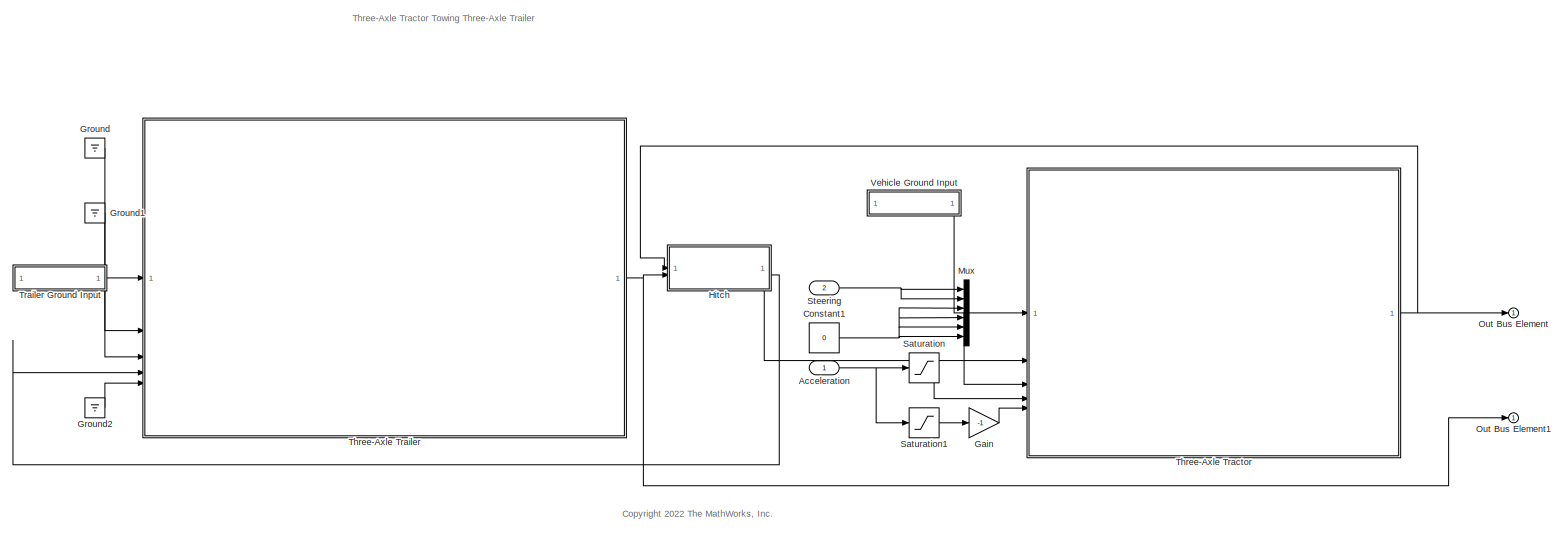
[diagram: root canvas - part 1/1, most of the canvas]
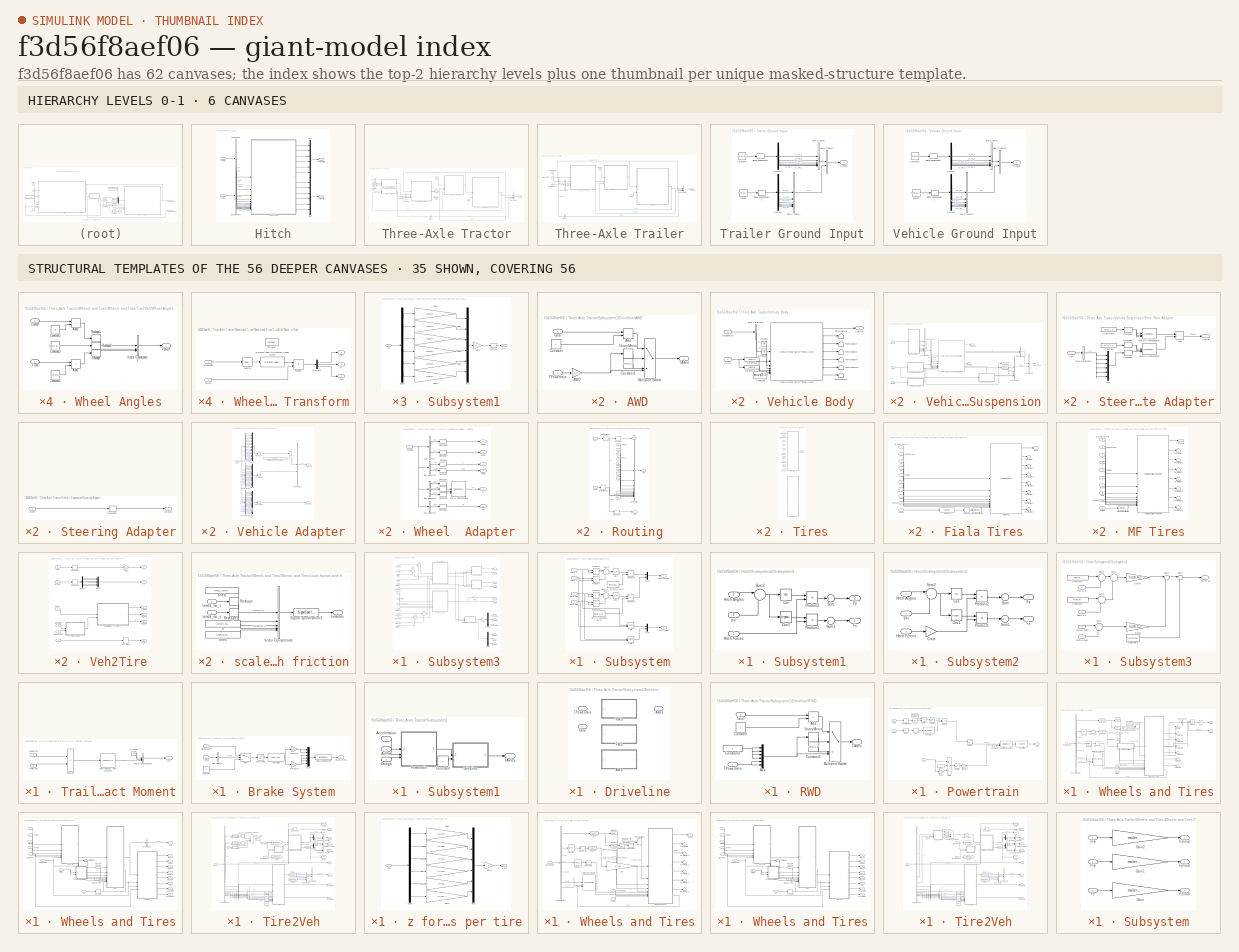
[diagram: thumbnail index - top-2 hierarchy levels (6 canvases) + 35 structural-template representatives of the remaining 56 canvases]
MODEL slx_f3d56f8aef06
KIND model
CONFIG AbsTol = 1e-5
CONFIG EnableMultiTasking = off
CONFIG FixedStep = auto
CONFIG MaxStep = auto
CONFIG MinStep = auto
CONFIG RelTol = 1e-1
CONFIG SampleTimeConstraint = Unconstrained
CONFIG SolverName = ode23tb
CONFIG StartTime = 0.0
CONFIG StopTime = inf
WORKSPACE source: mxarray member
WORKSPACE initialTractorOrientation: Simulink.Parameter (value not decoded)
WORKSPACE initialTractorPosition: Simulink.Parameter (value not decoded)
WORKSPACE initialTractorRotationRates: Simulink.Parameter (value not decoded)
WORKSPACE initialTractorVelocity: Simulink.Parameter (value not decoded)
WORKSPACE initialTrailerOrientation: Simulink.Parameter (value not decoded)
WORKSPACE initialTrailerPosition: Simulink.Parameter (value not decoded)
WORKSPACE initialTrailerRotationRates: Simulink.Parameter (value not decoded)
WORKSPACE initialTrailerVelocity: Simulink.Parameter (value not decoded)
BLOCK [Inport] Acceleration
BLOCK [Constant] Constant1
  Value = 0
BLOCK [Gain] Gain
  Gain = -1
BLOCK [Ground] Ground
BLOCK [Ground] Ground1
BLOCK [Ground] Ground2
BLOCK [SubSystem] Hitch
BLOCK [BusSelector] Hitch/Bus Selector
  OutputSignals = Vehicle.InertFrm.Hitch.Disp.X,Vehicle.InertFrm.Hitch.Disp.Y,Vehicle.InertFrm.Hitch.Disp.Z,Vehicle.InertFrm.Hitch.Vel.Xdot,Vehicle.InertFrm.Hitch.Vel.Ydot,Vehicle.InertFrm.Hitch.Vel.Zdot,Vehicle.InertFrm.Cg.Ang.psi
BLOCK [BusSelector] Hitch/Bus Selector1
  OutputSignals = Vehicle.InertFrm.HitchF.Disp.X,Vehicle.InertFrm.HitchF.Disp.Y,Vehicle.InertFrm.HitchF.Disp.Z,Vehicle.InertFrm.HitchF.Vel.Xdot,Vehicle.InertFrm.HitchF.Vel.Ydot,Vehicle.InertFrm.HitchF.Vel.Zdot,Vehicle.InertFrm.Cg.Ang.psi
BLOCK [Mux] Hitch/Mux
  DisplayOption = bar
  Inputs = 6
BLOCK [Mux] Hitch/Mux1
  DisplayOption = bar
  Inputs = 6
BLOCK [SubSystem] Hitch/Subsystem3
BLOCK [Demux] Hitch/Subsystem3/Demux
  Outputs = 3
BLOCK [Demux] Hitch/Subsystem3/Demux1
  Outputs = 3
BLOCK [Gain] Hitch/Subsystem3/Gain
  Gain = -1
BLOCK [Gain] Hitch/Subsystem3/Gain1
  Gain = -1
BLOCK [SubSystem] Hitch/Subsystem3/Subsystem
BLOCK [Outport] Hitch/Subsystem3/Subsystem/Hitch Angles
  Port = 2
BLOCK [Outport] Hitch/Subsystem3/Subsystem/Hitch Forces
BLOCK [Constant] Hitch/Subsystem3/Subsystem/Hitch xy Damping (Ns//m)
  Value = hitch.Cxy
BLOCK [Constant] Hitch/Subsystem3/Subsystem/Hitch xy Stiffness (N//m)
  Value = hitch.Kxy
BLOCK [Mux] Hitch/Subsystem3/Subsystem/Mux
  DisplayOption = bar
  Inputs = 2
BLOCK [Mux] Hitch/Subsystem3/Subsystem/Mux1
  DisplayOption = bar
  Inputs = 2
BLOCK [Product] Hitch/Subsystem3/Subsystem/Product1
BLOCK [Product] Hitch/Subsystem3/Subsystem/Product2
BLOCK [Product] Hitch/Subsystem3/Subsystem/Product3
BLOCK [Product] Hitch/Subsystem3/Subsystem/Product4
BLOCK [Product] Hitch/Subsystem3/Subsystem/Product5
BLOCK [Product] Hitch/Subsystem3/Subsystem/Product6
BLOCK [Trigonometry] Hitch/Subsystem3/Subsystem/Sin
  Operator = atan2
BLOCK [Trigonometry] Hitch/Subsystem3/Subsystem/Sin1
  Operator = atan2
BLOCK [Sqrt] Hitch/Subsystem3/Subsystem/Sqrt
BLOCK [Sqrt] Hitch/Subsystem3/Subsystem/Sqrt1
BLOCK [Sum] Hitch/Subsystem3/Subsystem/Sum1
  Inputs = |++
BLOCK [Sum] Hitch/Subsystem3/Subsystem/Sum3
  Inputs = |++
BLOCK [Inport] Hitch/Subsystem3/Subsystem/delta X
BLOCK [Inport] Hitch/Subsystem3/Subsystem/delta Xdot
  Port = 3
BLOCK [Inport] Hitch/Subsystem3/Subsystem/delta Y
  Port = 2
BLOCK [Inport] Hitch/Subsystem3/Subsystem/delta Ydot
  Port = 4
BLOCK [SubSystem] Hitch/Subsystem3/Subsystem1
BLOCK [Trigonometry] Hitch/Subsystem3/Subsystem1/Cos
  Operator = cos
BLOCK [Trigonometry] Hitch/Subsystem3/Subsystem1/Cos1
BLOCK [Outport] Hitch/Subsystem3/Subsystem1/Fx
BLOCK [Outport] Hitch/Subsystem3/Subsystem1/Fy
  Port = 2
BLOCK [Inport] Hitch/Subsystem3/Subsystem1/Hitch Angles
  Port = 3
BLOCK [Inport] Hitch/Subsystem3/Subsystem1/Hitch Forces
BLOCK [Product] Hitch/Subsystem3/Subsystem1/Product1
BLOCK [Product] Hitch/Subsystem3/Subsystem1/Product2
BLOCK [Sum] Hitch/Subsystem3/Subsystem1/Sum
  Inputs = +
BLOCK [Sum] Hitch/Subsystem3/Subsystem1/Sum1
  Inputs = +
BLOCK [Sum] Hitch/Subsystem3/Subsystem1/Sum2
  Inputs = |++
BLOCK [Inport] Hitch/Subsystem3/Subsystem1/psi
  Port = 2
BLOCK [SubSystem] Hitch/Subsystem3/Subsystem2
BLOCK [Trigonometry] Hitch/Subsystem3/Subsystem2/Cos
  Operator = cos
BLOCK [Trigonometry] Hitch/Subsystem3/Subsystem2/Cos1
BLOCK [Outport] Hitch/Subsystem3/Subsystem2/Fx
BLOCK [Outport] Hitch/Subsystem3/Subsystem2/Fy
  Port = 2
BLOCK [Gain] Hitch/Subsystem3/Subsystem2/Gain
  Gain = -1
BLOCK [Inport] Hitch/Subsystem3/Subsystem2/Hitch Angles
  Port = 3
BLOCK [Inport] Hitch/Subsystem3/Subsystem2/Hitch Forces
BLOCK [Product] Hitch/Subsystem3/Subsystem2/Product1
BLOCK [Product] Hitch/Subsystem3/Subsystem2/Product2
BLOCK [Sum] Hitch/Subsystem3/Subsystem2/Sum
  Inputs = +
BLOCK [Sum] Hitch/Subsystem3/Subsystem2/Sum1
  Inputs = +
BLOCK [Sum] Hitch/Subsystem3/Subsystem2/Sum2
  Inputs = |++
BLOCK [Inport] Hitch/Subsystem3/Subsystem2/psi
  Port = 2
BLOCK [SubSystem] Hitch/Subsystem3/Subsystem3
BLOCK [Constant] Hitch/Subsystem3/Subsystem3/Constant2
  Value = trailer.HeightCG
BLOCK [Constant] Hitch/Subsystem3/Subsystem3/Constant3
  Value = tractor.HeightCG
BLOCK [Constant] Hitch/Subsystem3/Subsystem3/Constant8
  Value = hitch.F0z
BLOCK [Gain] Hitch/Subsystem3/Subsystem3/Gain5
  Gain = hitch.Kz
BLOCK [Gain] Hitch/Subsystem3/Subsystem3/Gain6
  Gain = hitch.Cz
BLOCK [Sum] Hitch/Subsystem3/Subsystem3/Sum1
  Inputs = |--
BLOCK [Sum] Hitch/Subsystem3/Subsystem3/Sum2
  Inputs = |+-
BLOCK [Sum] Hitch/Subsystem3/Subsystem3/Sum3
  Inputs = |+-
BLOCK [Sum] Hitch/Subsystem3/Subsystem3/Sum4
  Inputs = |+-
BLOCK [Sum] Hitch/Subsystem3/Subsystem3/Sum5
  Inputs = |-+
BLOCK [Sum] Hitch/Subsystem3/Subsystem3/Sum6
  Inputs = |-+
BLOCK [Outport] Hitch/Subsystem3/Subsystem3/Trailer Fz
BLOCK [Inport] Hitch/Subsystem3/Subsystem3/Trailer Z
  Port = 2
BLOCK [Inport] Hitch/Subsystem3/Subsystem3/Trailer Zdot
  Port = 4
BLOCK [Inport] Hitch/Subsystem3/Subsystem3/Vehicle Z
BLOCK [Inport] Hitch/Subsystem3/Subsystem3/Vehicle Zdot
  Port = 3
BLOCK [Sum] Hitch/Subsystem3/Sum
  Inputs = |+-
BLOCK [Sum] Hitch/Subsystem3/Sum1
  Inputs = |+-
BLOCK [Sum] Hitch/Subsystem3/Sum2
  Inputs = |+-
BLOCK [Sum] Hitch/Subsystem3/Sum3
  Inputs = |+-
BLOCK [Outport] Hitch/Subsystem3/Trailer Fx
  Port = 7
BLOCK [Outport] Hitch/Subsystem3/Trailer Fy
  Port = 8
BLOCK [Outport] Hitch/Subsystem3/Trailer Fz
  Port = 9
BLOCK [SubSystem] Hitch/Subsystem3/Trailer Hitch Contact Moment
BLOCK [Ground] Hitch/Subsystem3/Trailer Hitch Contact Moment/Ground1
BLOCK [Lookup_n-D] Hitch/Subsystem3/Trailer Hitch Contact Moment/Hitch Contact Yaw Moment
  BreakpointsForDimension1 = [-1 -.9 -45*pi/180 0 45*pi/180 .9 1]
  BreakpointsForDimension1FirstPoint = 10
  BreakpointsForDimension1Spacing = 12
  BreakpointsForDimension2FirstPoint = 10
  BreakpointsForDimension2Spacing = 12
  DiagnosticForOutOfRangeInput = Error
  ExtrapMethod = Clip
  IndexSearchMethod = Linear search
  InputPortMap = u0
  InternalRulePriority = Speed
  LookupTableObject = ''
  NumberOfTableDimensions = 1
  RndMeth = Simplest
  Table = [-1e6 -1e6 0 0 0 1e6 1e6]
  UseLastTableValue = on
BLOCK [Outport] Hitch/Subsystem3/Trailer Hitch Contact Moment/Mh
BLOCK [Sum] Hitch/Subsystem3/Trailer Hitch Contact Moment/Subtract
  IconShape = rectangular
  Inputs = +-
BLOCK [Inport] Hitch/Subsystem3/Trailer Hitch Contact Moment/Trailer Psi
  Port = 2
BLOCK [Concatenate] Hitch/Subsystem3/Trailer Hitch Contact Moment/Vector Concatenate1
  NumInputs = 3
BLOCK [Inport] Hitch/Subsystem3/Trailer Hitch Contact Moment/Vehicle Psi
BLOCK [Outport] Hitch/Subsystem3/Trailer Mhx
  Port = 10
BLOCK [Outport] Hitch/Subsystem3/Trailer Mhy
  Port = 11
BLOCK [Outport] Hitch/Subsystem3/Trailer Mhz
  Port = 12
BLOCK [Inport] Hitch/Subsystem3/Trailer X
  Port = 8
BLOCK [Inport] Hitch/Subsystem3/Trailer Xdot
  Port = 11
BLOCK [Inport] Hitch/Subsystem3/Trailer Y
  Port = 9
BLOCK [Inport] Hitch/Subsystem3/Trailer Ydot
  Port = 12
BLOCK [Inport] Hitch/Subsystem3/Trailer Z
  Port = 10
BLOCK [Inport] Hitch/Subsystem3/Trailer Zdot
  Port = 13
BLOCK [Inport] Hitch/Subsystem3/Trailer psi
  Port = 14
BLOCK [Outport] Hitch/Subsystem3/Vehicle Fx
BLOCK [Outport] Hitch/Subsystem3/Vehicle Fy
  Port = 2
BLOCK [Outport] Hitch/Subsystem3/Vehicle Fz
  Port = 3
BLOCK [Outport] Hitch/Subsystem3/Vehicle Mhx
  Port = 4
BLOCK [Outport] Hitch/Subsystem3/Vehicle Mhy
  Port = 5
BLOCK [Outport] Hitch/Subsystem3/Vehicle Mhz
  Port = 6
BLOCK [Inport] Hitch/Subsystem3/Vehicle X
BLOCK [Inport] Hitch/Subsystem3/Vehicle Xdot
  Port = 4
BLOCK [Inport] Hitch/Subsystem3/Vehicle Y
  Port = 2
BLOCK [Inport] Hitch/Subsystem3/Vehicle Ydot
  Port = 5
BLOCK [Inport] Hitch/Subsystem3/Vehicle Z
  Port = 3
BLOCK [Inport] Hitch/Subsystem3/Vehicle Zdot
  Port = 6
BLOCK [Inport] Hitch/Subsystem3/Vehicle psi
  Port = 7
BLOCK [Inport] Hitch/Trailer
  Port = 2
BLOCK [Outport] Hitch/Trailer Hitch
  Port = 2
BLOCK [Inport] Hitch/Vehicle
BLOCK [Outport] Hitch/Vehicle Hitch
BLOCK [Mux] Mux
  DisplayOption = bar
  Inputs = 6
BLOCK [Outport] Out Bus Element
BLOCK [Outport] Out Bus Element1
BLOCK [Saturate] Saturation
  LowerLimit = 0
  UpperLimit = 3
  ZeroCross = off
BLOCK [Saturate] Saturation1
  LowerLimit = -9.8
  UpperLimit = 0
  ZeroCross = off
BLOCK [Inport] Steering
  Port = 2
BLOCK [SubSystem] Three-Axle Tractor
BLOCK [Inport] Three-Axle Tractor/Acceleration
  Port = 4
BLOCK [SubSystem] Three-Axle Tractor/Brake System
BLOCK [Outport] Three-Axle Tractor/Brake System/Brake Press
  PortDimensions = 6
  VectorParamsAs1DForOutWhenUnconnected = off
BLOCK [BusSelector] Three-Axle Tractor/Brake System/Bus Selector
  OutputSignals = BdyFrm.Cg.Vel.xdot
BLOCK [Constant] Three-Axle Tractor/Brake System/Constant
  Value = 0
BLOCK [Inport] Three-Axle Tractor/Brake System/Deceleration
BLOCK [Reference] Three-Axle Tractor/Brake System/Hydraulics  REF=autolibutils/Cont LPF
  SourceBlock = autolibutils/Cont LPF
BLOCK [Mux] Three-Axle Tractor/Brake System/Mux
  DisplayOption = bar
  Inputs = 6
BLOCK [Gain] Three-Axle Tractor/Brake System/Pressure
  Gain = 2e5
BLOCK [Gain] Three-Axle Tractor/Brake System/Pressure1
  Gain = 1e6
BLOCK [Saturate] Three-Axle Tractor/Brake System/Saturation1
  LowerLimit = 0
  UpperLimit = inf
  ZeroCross = off
BLOCK [SignalSpecification] Three-Axle Tractor/Brake System/Signal Specification
  Unit = Pa
BLOCK [Switch] Three-Axle Tractor/Brake System/Switch
  Criteria = u2 > Threshold
  InputSameDT = off
  SaturateOnIntegerOverflow = off
  Threshold = 0.1
  ZeroCross = off
BLOCK [Inport] Three-Axle Tractor/Brake System/Vehicle
  Port = 2
BLOCK [BusCreator] Three-Axle Tractor/Brakes
  DisplayOption = bar
  InheritFromInputs = on
  Inputs = 1
BLOCK [BusCreator] Three-Axle Tractor/Bus Creator
  DisplayOption = bar
  InheritFromInputs = on
  Inputs = 4
BLOCK [BusSelector] Three-Axle Tractor/Bus Selector
  OutputSignals = z,mu
BLOCK [Inport] Three-Axle Tractor/Deceleration
  Port = 5
BLOCK [From] Three-Axle Tractor/From
  GotoTag = AxlPwr
BLOCK [From] Three-Axle Tractor/From1
  GotoTag = Omega
BLOCK [Goto] Three-Axle Tractor/Goto
  GotoTag = AxlPwr
BLOCK [Goto] Three-Axle Tractor/Goto1
  GotoTag = Omega
BLOCK [Inport] Three-Axle Tractor/Ground Input
BLOCK [Inport] Three-Axle Tractor/Hitch
  Port = 2
BLOCK [Inport] Three-Axle Tractor/Steering
  Port = 3
BLOCK [SubSystem] Three-Axle Tractor/Subsystem1
BLOCK [Inport] Three-Axle Tractor/Subsystem1/Acceleration
BLOCK [Inport] Three-Axle Tractor/Subsystem1/AxlPwr
  Port = 2
BLOCK [Constant] Three-Axle Tractor/Subsystem1/Constant
BLOCK [SubSystem] Three-Axle Tractor/Subsystem1/Driveline
  LabelModeActiveChoice = 0
  Variant = on
  VariantControl = Variant1
  VariantControlMode = label
BLOCK [SubSystem] Three-Axle Tractor/Subsystem1/Driveline/AWD
  VariantControl = 2
BLOCK [Gain] Three-Axle Tractor/Subsystem1/Driveline/AWD/AWD
  Gain = [1;1;1;1;1;1]./2
BLOCK [Sum] Three-Axle Tractor/Subsystem1/Driveline/AWD/Add
  IconShape = rectangular
BLOCK [Constant] Three-Axle Tractor/Subsystem1/Driveline/AWD/Constant
BLOCK [Constant] Three-Axle Tractor/Subsystem1/Driveline/AWD/Constant1
  Value = zeros(6,1)
BLOCK [Inport] Three-Axle Tractor/Subsystem1/Driveline/AWD/Gear
  Port = 2
BLOCK [MultiPortSwitch] Three-Axle Tractor/Subsystem1/Driveline/AWD/Multiport Switch
  DataPortOrder = Zero-based contiguous
  InputSameDT = off
  SaturateOnIntegerOverflow = off
  zeroidx = on
BLOCK [Outport] Three-Axle Tractor/Subsystem1/Driveline/AWD/TAxles
  VectorParamsAs1DForOutWhenUnconnected = off
BLOCK [Inport] Three-Axle Tractor/Subsystem1/Driveline/AWD/TPowertrain
BLOCK [UnaryMinus] Three-Axle Tractor/Subsystem1/Driveline/AWD/Unary Minus
BLOCK [SubSystem] Three-Axle Tractor/Subsystem1/Driveline/FWD
  VariantControl = 1
BLOCK [Sum] Three-Axle Tractor/Subsystem1/Driveline/FWD/Add
  IconShape = rectangular
BLOCK [Constant] Three-Axle Tractor/Subsystem1/Driveline/FWD/Constant
BLOCK [Constant] Three-Axle Tractor/Subsystem1/Driveline/FWD/Constant1
  Value = zeros(6,1)
BLOCK [Gain] Three-Axle Tractor/Subsystem1/Driveline/FWD/FWD
  Gain = [1;1;0;0;0;0]
BLOCK [Inport] Three-Axle Tractor/Subsystem1/Driveline/FWD/Gear
  Port = 2
BLOCK [MultiPortSwitch] Three-Axle Tractor/Subsystem1/Driveline/FWD/Multiport Switch
  DataPortOrder = Zero-based contiguous
  InputSameDT = off
  SaturateOnIntegerOverflow = off
  zeroidx = on
BLOCK [Outport] Three-Axle Tractor/Subsystem1/Driveline/FWD/TAxles
  VectorParamsAs1DForOutWhenUnconnected = off
BLOCK [Inport] Three-Axle Tractor/Subsystem1/Driveline/FWD/TPowertrain
BLOCK [UnaryMinus] Three-Axle Tractor/Subsystem1/Driveline/FWD/Unary Minus
BLOCK [Inport] Three-Axle Tractor/Subsystem1/Driveline/Gear
  Port = 2
BLOCK [SubSystem] Three-Axle Tractor/Subsystem1/Driveline/RWD
  VariantControl = 0
BLOCK [Sum] Three-Axle Tractor/Subsystem1/Driveline/RWD/Add
  IconShape = rectangular
BLOCK [Constant] Three-Axle Tractor/Subsystem1/Driveline/RWD/Constant
BLOCK [Constant] Three-Axle Tractor/Subsystem1/Driveline/RWD/Constant1
  Value = zeros(6,1)
BLOCK [Constant] Three-Axle Tractor/Subsystem1/Driveline/RWD/Constant2
  Value = 0
BLOCK [Inport] Three-Axle Tractor/Subsystem1/Driveline/RWD/Gear
  Port = 2
BLOCK [MultiPortSwitch] Three-Axle Tractor/Subsystem1/Driveline/RWD/Multiport Switch
  DataPortOrder = Zero-based contiguous
  InputSameDT = off
  SaturateOnIntegerOverflow = off
  zeroidx = on
BLOCK [Mux] Three-Axle Tractor/Subsystem1/Driveline/RWD/Mux
  DisplayOption = bar
  Inputs = 6
BLOCK [Outport] Three-Axle Tractor/Subsystem1/Driveline/RWD/TAxles
  VectorParamsAs1DForOutWhenUnconnected = off
BLOCK [Inport] Three-Axle Tractor/Subsystem1/Driveline/RWD/TPowertrain
BLOCK [UnaryMinus] Three-Axle Tractor/Subsystem1/Driveline/RWD/Unary Minus
BLOCK [Outport] Three-Axle Tractor/Subsystem1/Driveline/TAxles
  PortDimensions = 6
  VectorParamsAs1DForOutWhenUnconnected = off
BLOCK [Inport] Three-Axle Tractor/Subsystem1/Driveline/TPowertrain
  PortDimensions = 1
BLOCK [Inport] Three-Axle Tractor/Subsystem1/Omega
  Port = 3
BLOCK [SubSystem] Three-Axle Tractor/Subsystem1/Powertrain
BLOCK [Abs] Three-Axle Tractor/Subsystem1/Powertrain/Abs
  SaturateOnIntegerOverflow = off
  ZeroCross = off
BLOCK [Abs] Three-Axle Tractor/Subsystem1/Powertrain/Abs1
  SaturateOnIntegerOverflow = off
  ZeroCross = off
BLOCK [Inport] Three-Axle Tractor/Subsystem1/Powertrain/Acc
BLOCK [Inport] Three-Axle Tractor/Subsystem1/Powertrain/AxlPwr
  Port = 2
  PortDimensions = 6
BLOCK [Outport] Three-Axle Tractor/Subsystem1/Powertrain/AxlTrq
  VectorParamsAs1DForOutWhenUnconnected = off
BLOCK [Constant] Three-Axle Tractor/Subsystem1/Powertrain/Constant3
  NameLocation = top
  Value = 0
BLOCK [Gain] Three-Axle Tractor/Subsystem1/Powertrain/Diff Torque
  Gain = 2000
BLOCK [Product] Three-Axle Tractor/Subsystem1/Powertrain/Divide
  Inputs = */
BLOCK [Constant] Three-Axle Tractor/Subsystem1/Powertrain/EngPwr
  NameLocation = top
  Value = 100e3
BLOCK [Constant] Three-Axle Tractor/Subsystem1/Powertrain/Gear
  SampleTime = -1
BLOCK [MinMax] Three-Axle Tractor/Subsystem1/Powertrain/Max
  Function = max
  ZeroCross = off
BLOCK [Inport] Three-Axle Tractor/Subsystem1/Powertrain/Omega
  Port = 3
  PortDimensions = 6
BLOCK [Reference] Three-Axle Tractor/Subsystem1/Powertrain/Powertrain  REF=autolibutils/Cont LPF
  SourceBlock = autolibutils/Cont LPF
BLOCK [Saturate] Three-Axle Tractor/Subsystem1/Powertrain/Saturation
  LowerLimit = 0
  UpperLimit = inf
  ZeroCross = off
BLOCK [Reference] Three-Axle Tractor/Subsystem1/Powertrain/Saturation Dynamic1  REF=simulink/Discontinuities/Saturation
Dynamic
  SourceBlock = simulink/Discontinuities/Saturation\nDynamic
  SourceType = Saturation Dynamic
BLOCK [Saturate] Three-Axle Tractor/Subsystem1/Powertrain/Saturation2
  LowerLimit = 100
  UpperLimit = inf
  ZeroCross = off
BLOCK [Saturate] Three-Axle Tractor/Subsystem1/Powertrain/Saturation3
  LowerLimit = 0
  UpperLimit = 6000
  ZeroCross = off
BLOCK [Sum] Three-Axle Tractor/Subsystem1/Powertrain/Subtract
  IconShape = rectangular
  Inputs = +-
BLOCK [Sum] Three-Axle Tractor/Subsystem1/Powertrain/Sum of Elements
  IconShape = rectangular
  Inputs = +
BLOCK [Switch] Three-Axle Tractor/Subsystem1/Powertrain/Switch
  InputSameDT = off
  SaturateOnIntegerOverflow = off
  ZeroCross = off
BLOCK [Gain] Three-Axle Tractor/Subsystem1/Powertrain/Tip Out
  Gain = -10
BLOCK [Reference] Three-Axle Tractor/Subsystem1/Powertrain/div0protect  REF=autolibutils/div0protect - poly
  SourceBlock = autolibutils/div0protect - poly
BLOCK [Outport] Three-Axle Tractor/Subsystem1/TAxles
BLOCK [Outport] Three-Axle Tractor/Vehicle
BLOCK [SubSystem] Three-Axle Tractor/Vehicle Body
BLOCK [BusSelector] Three-Axle Tractor/Vehicle Body/Bus Selector3
  OutputSignals = Veh.F,Veh.M
BLOCK [Constant] Three-Axle Tractor/Vehicle Body/Constant
  Value = zeros(3,1)
BLOCK [Ground] Three-Axle Tractor/Vehicle Body/Ground
BLOCK [Ground] Three-Axle Tractor/Vehicle Body/Ground1
BLOCK [Inport] Three-Axle Tractor/Vehicle Body/Hitch
  Port = 2
BLOCK [Selector] Three-Axle Tractor/Vehicle Body/Selector6
  IndexOptions = Index vector (dialog)
  Indices = [1 2 3]
  InputPortWidth = 6
  OutputSizes = 1
BLOCK [Selector] Three-Axle Tractor/Vehicle Body/Selector7
  IndexOptions = Index vector (dialog)
  Indices = [4 5 6]
  InputPortWidth = 6
  OutputSizes = 1
BLOCK [Inport] Three-Axle Tractor/Vehicle Body/Suspension
BLOCK [Terminator] Three-Axle Tractor/Vehicle Body/Terminator10
BLOCK [Terminator] Three-Axle Tractor/Vehicle Body/Terminator11
BLOCK [Terminator] Three-Axle Tractor/Vehicle Body/Terminator6
BLOCK [Terminator] Three-Axle Tractor/Vehicle Body/Terminator7
BLOCK [Terminator] Three-Axle Tractor/Vehicle Body/Terminator8
BLOCK [Terminator] Three-Axle Tractor/Vehicle Body/Terminator9
BLOCK [Outport] Three-Axle Tractor/Vehicle Body/Vehicle
BLOCK [Reference] Three-Axle Tractor/Vehicle Body/Vehicle Body 6DOF Three Axles  REF=vehdynlibeom/Vehicle Body 6DOF Three Axles
  SourceBlock = vehdynlibeom/Vehicle Body 6DOF Three Axles
  SourceType = Vehicle Body 6DOF Three Axles
BLOCK [SubSystem] Three-Axle Tractor/Vehicle Suspension
BLOCK [BusCreator] Three-Axle Tractor/Vehicle Suspension/Bus Creator1
  DisplayOption = bar
  InheritFromInputs = on
  Inputs = 5
BLOCK [BusCreator] Three-Axle Tractor/Vehicle Suspension/Bus Creator2
  DisplayOption = bar
  InheritFromInputs = on
  Inputs = 2
BLOCK [BusCreator] Three-Axle Tractor/Vehicle Suspension/Bus Creator3
  DisplayOption = bar
  InheritFromInputs = on
  Inputs = 2
BLOCK [BusCreator] Three-Axle Tractor/Vehicle Suspension/Bus Creator4
  DisplayOption = bar
  InheritFromInputs = on
  Inputs = 6
BLOCK [BusSelector] Three-Axle Tractor/Vehicle Suspension/Bus Selector
  OutputSignals = z,Re,zdot,Fx,Fy,M
BLOCK [BusSelector] Three-Axle Tractor/Vehicle Suspension/Bus Selector1
  OutputSignals = P,V
BLOCK [Selector] Three-Axle Tractor/Vehicle Suspension/Selector1
  IndexOptions = Index vector (dialog),Select all
  Indices = 1,1
  InputPortWidth = 3
  NumberOfDimensions = 2
  OutputSizes = 1,1
BLOCK [Selector] Three-Axle Tractor/Vehicle Suspension/Selector2
  IndexOptions = Index vector (dialog),Select all
  Indices = 2,1
  InputPortWidth = 3
  NumberOfDimensions = 2
  OutputSizes = 1,1
BLOCK [Reference] Three-Axle Tractor/Vehicle Suspension/Solid Axle Suspension - Coil Spring  REF=vehdynlibsuspension/Solid Axle Suspension - Coil Spring
  SourceBlock = vehdynlibsuspension/Solid Axle Suspension - Coil Spring
  SourceType = Vehicle suspension
BLOCK [SubSystem] Three-Axle Tractor/Vehicle Suspension/Steer Rate Adapter
BLOCK [Sum] Three-Axle Tractor/Vehicle Suspension/Steer Rate Adapter/Add
  IconShape = rectangular
BLOCK [Outport] Three-Axle Tractor/Vehicle Suspension/Steer Rate Adapter/AngVel
  VectorParamsAs1DForOutWhenUnconnected = off
BLOCK [BusSelector] Three-Axle Tractor/Vehicle Suspension/Steer Rate Adapter/Bus Selector3
  OutputSignals = BdyFrm.Cg.AngVel.r
BLOCK [Constant] Three-Axle Tractor/Vehicle Suspension/Steer Rate Adapter/Constant
  Value = zeros(1,6)
BLOCK [Concatenate] Three-Axle Tractor/Vehicle Suspension/Steer Rate Adapter/Matrix Concatenate
  Mode = Multidimensional array
  NumInputs = 3
BLOCK [Concatenate] Three-Axle Tractor/Vehicle Suspension/Steer Rate Adapter/Matrix Concatenate1
  Mode = Multidimensional array
  NumInputs = 3
BLOCK [Mux] Three-Axle Tractor/Vehicle Suspension/Steer Rate Adapter/Mux
  DisplayOption = bar
  Inputs = 6
BLOCK [Reshape] Three-Axle Tractor/Vehicle Suspension/Steer Rate Adapter/Reshape2
  OutputDimensionality = Row vector (2-D)
BLOCK [Reshape] Three-Axle Tractor/Vehicle Suspension/Steer Rate Adapter/Reshape3
  OutputDimensionality = Row vector (2-D)
BLOCK [Reshape] Three-Axle Tractor/Vehicle Suspension/Steer Rate Adapter/Reshape4
  OutputDimensionality = Row vector (2-D)
BLOCK [Constant] Three-Axle Tractor/Vehicle Suspension/Steer Rate Adapter/SteerRates
  Value = zeros(1,6)
BLOCK [Inport] Three-Axle Tractor/Vehicle Suspension/Steer Rate Adapter/Veh
BLOCK [Inport] Three-Axle Tractor/Vehicle Suspension/Steering
BLOCK [SubSystem] Three-Axle Tractor/Vehicle Suspension/Steering Adapter
BLOCK [Reshape] Three-Axle Tractor/Vehicle Suspension/Steering Adapter/Reshape1
  OutputDimensionality = Row vector (2-D)
BLOCK [Inport] Three-Axle Tractor/Vehicle Suspension/Steering Adapter/Steer
BLOCK [Outport] Three-Axle Tractor/Vehicle Suspension/Steering Adapter/StrgAng
  VectorParamsAs1DForOutWhenUnconnected = off
BLOCK [Outport] Three-Axle Tractor/Vehicle Suspension/Suspension
BLOCK [Terminator] Three-Axle Tractor/Vehicle Suspension/Terminator1
BLOCK [Terminator] Three-Axle Tractor/Vehicle Suspension/Terminator6
BLOCK [Inport] Three-Axle Tractor/Vehicle Suspension/Vehicle
  Port = 3
BLOCK [SubSystem] Three-Axle Tractor/Vehicle Suspension/Vehicle Adapter
BLOCK [BusCreator] Three-Axle Tractor/Vehicle Suspension/Vehicle Adapter/Bus Creator3
  DisplayOption = bar
  InheritFromInputs = on
  Inputs = 2
BLOCK [BusSelector] Three-Axle Tractor/Vehicle Suspension/Vehicle Adapter/Bus Selector1
  OutputSignals = InertFrm.FrntAxl.Lft.Disp.X,InertFrm.FrntAxl.Lft.Disp.Y,InertFrm.FrntAxl.Lft.Disp.Z,InertFrm.FrntAxl.Rght.Disp.X,InertFrm.FrntAxl.Rght.Disp.Y,InertFrm.FrntAxl.Rght.Disp.Z,InertFrm.MidlAxl.Lft.Disp.X,InertFrm.MidlAxl.Lft.Disp.Y,InertFrm.MidlAxl.Lft.Disp.Z,InertFrm.MidlAxl.Rght.Disp.X,InertFrm.MidlAxl.Rght.Disp.Y,InertFrm.MidlAxl.Rght.Disp.Z,InertFrm.RearAxl.Lft.Disp.X,InertFrm.RearAxl.Lft.Disp.Y,In...<+112ch>
BLOCK [BusSelector] Three-Axle Tractor/Vehicle Suspension/Vehicle Adapter/Bus Selector2
  OutputSignals = BdyFrm.FrntAxl.Lft.Vel.xdot,BdyFrm.FrntAxl.Lft.Vel.ydot,BdyFrm.FrntAxl.Lft.Vel.zdot,BdyFrm.FrntAxl.Rght.Vel.xdot,BdyFrm.FrntAxl.Rght.Vel.ydot,BdyFrm.FrntAxl.Rght.Vel.zdot,BdyFrm.MidlAxl.Lft.Vel.xdot,BdyFrm.MidlAxl.Lft.Vel.ydot,BdyFrm.MidlAxl.Lft.Vel.zdot,BdyFrm.MidlAxl.Rght.Vel.xdot,BdyFrm.MidlAxl.Rght.Vel.ydot,BdyFrm.MidlAxl.Rght.Vel.zdot,BdyFrm.RearAxl.Lft.Vel.xdot,BdyFrm.RearAxl.Lft.Vel.ydot,Bd...<+112ch>
BLOCK [BusSelector] Three-Axle Tractor/Vehicle Suspension/Vehicle Adapter/Bus Selector3
  OutputSignals = InertFrm.FrntAxl.Lft.Vel.Xdot,InertFrm.FrntAxl.Lft.Vel.Ydot,InertFrm.FrntAxl.Lft.Vel.Zdot,InertFrm.FrntAxl.Rght.Vel.Xdot,InertFrm.FrntAxl.Rght.Vel.Ydot,InertFrm.FrntAxl.Rght.Vel.Zdot,InertFrm.MidlAxl.Lft.Vel.Xdot,InertFrm.MidlAxl.Lft.Vel.Ydot,InertFrm.MidlAxl.Lft.Vel.Zdot,InertFrm.MidlAxl.Rght.Vel.Xdot,InertFrm.MidlAxl.Rght.Vel.Ydot,InertFrm.MidlAxl.Rght.Vel.Zdot,InertFrm.RearAxl.Lft.Vel.Xdot,Iner...<+148ch>
BLOCK [Constant] Three-Axle Tractor/Vehicle Suspension/Vehicle Adapter/Inertial Frame CG to Axle Offset
  Value = [zeros(2,6);tractor.HeightCG*ones(1,6)]
BLOCK [Mux] Three-Axle Tractor/Vehicle Suspension/Vehicle Adapter/Mux1
  DisplayOption = bar
  Inputs = 18
BLOCK [Mux] Three-Axle Tractor/Vehicle Suspension/Vehicle Adapter/Mux2
  DisplayOption = bar
  Inputs = 18
BLOCK [Mux] Three-Axle Tractor/Vehicle Suspension/Vehicle Adapter/Mux3
  DisplayOption = bar
  Inputs = 18
BLOCK [Reshape] Three-Axle Tractor/Vehicle Suspension/Vehicle Adapter/Reshape
  OutputDimensionality = Customize
  OutputDimensions = [3,6]
BLOCK [Reshape] Three-Axle Tractor/Vehicle Suspension/Vehicle Adapter/Reshape1
  OutputDimensionality = Customize
  OutputDimensions = [3,6]
BLOCK [Reshape] Three-Axle Tractor/Vehicle Suspension/Vehicle Adapter/Reshape2
  OutputDimensionality = Customize
  OutputDimensions = [3,6]
BLOCK [Sum] Three-Axle Tractor/Vehicle Suspension/Vehicle Adapter/Sum
  Inputs = |+-
BLOCK [Inport] Three-Axle Tractor/Vehicle Suspension/Vehicle Adapter/Veh
BLOCK [Outport] Three-Axle Tractor/Vehicle Suspension/Vehicle Adapter/VehSusp
  VectorParamsAs1DForOutWhenUnconnected = off
BLOCK [Outport] Three-Axle Tractor/Vehicle Suspension/Vehicle Adapter/VehVBody
  Port = 2
  VectorParamsAs1DForOutWhenUnconnected = off
BLOCK [SubSystem] Three-Axle Tractor/Vehicle Suspension/Wheel  Adapter
BLOCK [BusSelector] Three-Axle Tractor/Vehicle Suspension/Wheel  Adapter/Bus Selector
  OutputSignals = TireFrame.Fx,TireFrame.Fy
BLOCK [BusSelector] Three-Axle Tractor/Vehicle Suspension/Wheel  Adapter/Bus Selector1
  OutputSignals = TireFrame.Re
BLOCK [BusSelector] Three-Axle Tractor/Vehicle Suspension/Wheel  Adapter/Bus Selector2
  OutputSignals = TireFrame.Mx,TireFrame.My,TireFrame.Mz
BLOCK [BusSelector] Three-Axle Tractor/Vehicle Suspension/Wheel  Adapter/Bus Selector3
  OutputSignals = TireFrame.z,TireFrame.zdot
BLOCK [Outport] Three-Axle Tractor/Vehicle Suspension/Wheel  Adapter/M
  Port = 5
  VectorParamsAs1DForOutWhenUnconnected = off
BLOCK [Concatenate] Three-Axle Tractor/Vehicle Suspension/Wheel  Adapter/Matrix Concatenate
  Mode = Multidimensional array
  NumInputs = 3
BLOCK [Outport] Three-Axle Tractor/Vehicle Suspension/Wheel  Adapter/Re
  Port = 6
  VectorParamsAs1DForOutWhenUnconnected = off
BLOCK [Reshape] Three-Axle Tractor/Vehicle Suspension/Wheel  Adapter/Reshape
  OutputDimensionality = Row vector (2-D)
BLOCK [Reshape] Three-Axle Tractor/Vehicle Suspension/Wheel  Adapter/Reshape1
  OutputDimensionality = Row vector (2-D)
BLOCK [Reshape] Three-Axle Tractor/Vehicle Suspension/Wheel  Adapter/Reshape2
  OutputDimensionality = Row vector (2-D)
BLOCK [Reshape] Three-Axle Tractor/Vehicle Suspension/Wheel  Adapter/Reshape3
  OutputDimensionality = Row vector (2-D)
BLOCK [Reshape] Three-Axle Tractor/Vehicle Suspension/Wheel  Adapter/Reshape4
  OutputDimensionality = Row vector (2-D)
BLOCK [Reshape] Three-Axle Tractor/Vehicle Suspension/Wheel  Adapter/Reshape5
  OutputDimensionality = Row vector (2-D)
BLOCK [Reshape] Three-Axle Tractor/Vehicle Suspension/Wheel  Adapter/Reshape6
  OutputDimensionality = Row vector (2-D)
BLOCK [Reshape] Three-Axle Tractor/Vehicle Suspension/Wheel  Adapter/Reshape7
  OutputDimensionality = Row vector (2-D)
BLOCK [Inport] Three-Axle Tractor/Vehicle Suspension/Wheel  Adapter/Wheels
BLOCK [Outport] Three-Axle Tractor/Vehicle Suspension/Wheel  Adapter/WhlFx
  VectorParamsAs1DForOutWhenUnconnected = off
BLOCK [Outport] Three-Axle Tractor/Vehicle Suspension/Wheel  Adapter/WhlFy
  Port = 2
  VectorParamsAs1DForOutWhenUnconnected = off
BLOCK [Outport] Three-Axle Tractor/Vehicle Suspension/Wheel  Adapter/z
  Port = 3
  VectorParamsAs1DForOutWhenUnconnected = off
BLOCK [Outport] Three-Axle Tractor/Vehicle Suspension/Wheel  Adapter/zdot
  Port = 4
  VectorParamsAs1DForOutWhenUnconnected = off
BLOCK [Inport] Three-Axle Tractor/Vehicle Suspension/Wheels
  Port = 2
BLOCK [SubSystem] Three-Axle Tractor/Wheels and Tires
BLOCK [Abs] Three-Axle Tractor/Wheels and Tires/Abs
  SaturateOnIntegerOverflow = off
BLOCK [Outport] Three-Axle Tractor/Wheels and Tires/AxlPwr
  Port = 2
BLOCK [Inport] Three-Axle Tractor/Wheels and Tires/Axle Torque
  Port = 2
BLOCK [Inport] Three-Axle Tractor/Wheels and Tires/Brake Press
  Port = 3
  Unit = Pa
BLOCK [BusSelector] Three-Axle Tractor/Wheels and Tires/Bus Selector
  OutputSignals = TireFrame.Omega
BLOCK [BusSelector] Three-Axle Tractor/Wheels and Tires/Bus Selector1
  OutputSignals = Whl.Ang,Whl.F,Whl.AngVel,Whl.xdot,Whl.ydot
BLOCK [Constant] Three-Axle Tractor/Wheels and Tires/Constant3
  Value = zeros(6,1)
BLOCK [Reference] Three-Axle Tractor/Wheels and Tires/Cont LPF  REF=autolibutils/Cont LPF
  SourceBlock = autolibutils/Cont LPF
BLOCK [Reference] Three-Axle Tractor/Wheels and Tires/Cont LPF1  REF=autolibutils/Cont LPF
  SourceBlock = autolibutils/Cont LPF
BLOCK [Inport] Three-Axle Tractor/Wheels and Tires/Friction
  Port = 5
BLOCK [Inport] Three-Axle Tractor/Wheels and Tires/Ground Input
  Port = 4
BLOCK [ManualSwitch] Three-Axle Tractor/Wheels and Tires/Manual Switch6
BLOCK [Concatenate] Three-Axle Tractor/Wheels and Tires/Matrix Concatenate
  Mode = Multidimensional array
  NumInputs = 3
BLOCK [Outport] Three-Axle Tractor/Wheels and Tires/Omega
  Port = 3
BLOCK [Product] Three-Axle Tractor/Wheels and Tires/Product
BLOCK [Reshape] Three-Axle Tractor/Wheels and Tires/Reshape1
BLOCK [Reshape] Three-Axle Tractor/Wheels and Tires/Reshape2
BLOCK [Reshape] Three-Axle Tractor/Wheels and Tires/Reshape3
  OutputDimensionality = Column vector (2-D)
BLOCK [Reshape] Three-Axle Tractor/Wheels and Tires/Reshape4
BLOCK [Selector] Three-Axle Tractor/Wheels and Tires/Selector
  IndexOptions = Index vector (dialog),Select all
  Indices = [3],1
  InputPortWidth = 3
  NumberOfDimensions = 2
  OutputSizes = 1,1
BLOCK [Selector] Three-Axle Tractor/Wheels and Tires/Selector1
  IndexOptions = Index vector (dialog),Select all
  Indices = [3],1
  InputPortWidth = 1
  NumberOfDimensions = 2
  OutputSizes = 1,1
BLOCK [Selector] Three-Axle Tractor/Wheels and Tires/Selector2
  IndexOptions = Index vector (dialog),Select all
  Indices = 3,1
  InputPortWidth = 3
  NumberOfDimensions = 2
  OutputSizes = 1,1
BLOCK [Selector] Three-Axle Tractor/Wheels and Tires/Selector3
  IndexOptions = Index vector (dialog),Select all
  Indices = 1,1
  InputPortWidth = 3
  NumberOfDimensions = 2
  OutputSizes = 1,1
BLOCK [Inport] Three-Axle Tractor/Wheels and Tires/Suspension
BLOCK [Terminator] Three-Axle Tractor/Wheels and Tires/Terminator
BLOCK [Terminator] Three-Axle Tractor/Wheels and Tires/Terminator1
BLOCK [Terminator] Three-Axle Tractor/Wheels and Tires/Terminator2
BLOCK [Terminator] Three-Axle Tractor/Wheels and Tires/Terminator3
BLOCK [Terminator] Three-Axle Tractor/Wheels and Tires/Terminator4
BLOCK [Terminator] Three-Axle Tractor/Wheels and Tires/Terminator5
BLOCK [Outport] Three-Axle Tractor/Wheels and Tires/Wheels
  VectorParamsAs1DForOutWhenUnconnected = off
BLOCK [SubSystem] Three-Axle Tractor/Wheels and Tires/Wheels and Tires
  VariantControl = 0
BLOCK [Outport] Three-Axle Tractor/Wheels and Tires/Wheels and Tires/AxlTrq
BLOCK [Inport] Three-Axle Tractor/Wheels and Tires/Wheels and Tires/AxleTrq
  Port = 3
BLOCK [Inport] Three-Axle Tractor/Wheels and Tires/Wheels and Tires/BrkPrs
  Port = 4
BLOCK [BusSelector] Three-Axle Tractor/Wheels and Tires/Wheels and Tires/Bus Selector
  OutputSignals = AxlTrq
BLOCK [Inport] Three-Axle Tractor/Wheels and Tires/Wheels and Tires/CamberAng
  Port = 2
  Unit = rad
BLOCK [Inport] Three-Axle Tractor/Wheels and Tires/Wheels and Tires/Friction
  Port = 9
  Unit = 1
BLOCK [Outport] Three-Axle Tractor/Wheels and Tires/Wheels and Tires/FrntAxlF
  Port = 3
  Unit = N
  VectorParamsAs1DForOutWhenUnconnected = off
BLOCK [Inport] Three-Axle Tractor/Wheels and Tires/Wheels and Tires/Fz
  Port = 5
  Unit = N
BLOCK [Inport] Three-Axle Tractor/Wheels and Tires/Wheels and Tires/Ground Level
  Port = 8
BLOCK [Outport] Three-Axle Tractor/Wheels and Tires/Wheels and Tires/MiddleAxlF
  Port = 4
  Unit = N
  VectorParamsAs1DForOutWhenUnconnected = off
BLOCK [Outport] Three-Axle Tractor/Wheels and Tires/Wheels and Tires/Mz
  Port = 7
  Unit = N*m
  VectorParamsAs1DForOutWhenUnconnected = off
BLOCK [Outport] Three-Axle Tractor/Wheels and Tires/Wheels and Tires/Omega
  Port = 6
  VectorParamsAs1DForOutWhenUnconnected = off
BLOCK [Reference] Three-Axle Tractor/Wheels and Tires/Wheels and Tires/Pressure  REF=vehdynlibtirecommon/Constant
  SourceBlock = vehdynlibtirecommon/Constant
BLOCK [Outport] Three-Axle Tractor/Wheels and Tires/Wheels and Tires/RearAxlF
  Port = 5
  Unit = N
  VectorParamsAs1DForOutWhenUnconnected = off
BLOCK [Reshape] Three-Axle Tractor/Wheels and Tires/Wheels and Tires/Reshape
BLOCK [Outport] Three-Axle Tractor/Wheels and Tires/Wheels and Tires/SuspWhlPz
  Port = 8
  VectorParamsAs1DForOutWhenUnconnected = off
BLOCK [Outport] Three-Axle Tractor/Wheels and Tires/Wheels and Tires/SuspWhlVz
  Port = 9
  VectorParamsAs1DForOutWhenUnconnected = off
BLOCK [Terminator] Three-Axle Tractor/Wheels and Tires/Wheels and Tires/Terminator
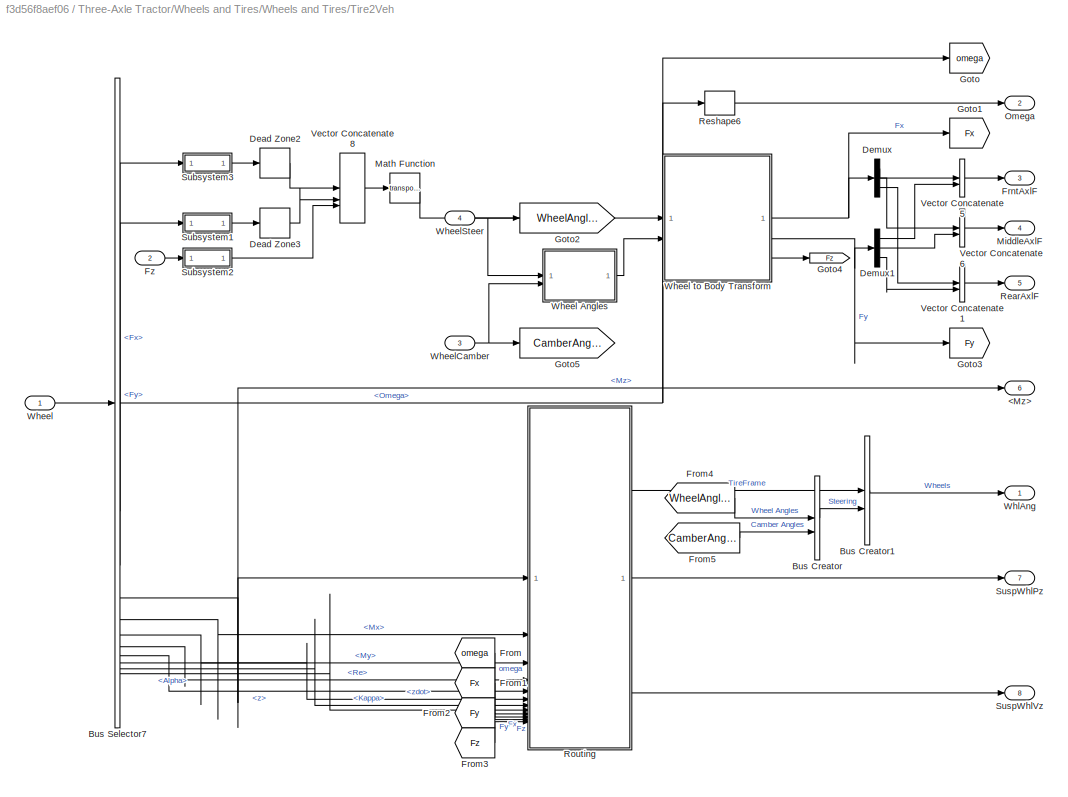
BLOCK [SubSystem] Three-Axle Tractor/Wheels and Tires/Wheels and Tires/Tire2Veh
BLOCK [Outport] Three-Axle Tractor/Wheels and Tires/Wheels and Tires/Tire2Veh/<Mz>
  Port = 6
  VectorParamsAs1DForOutWhenUnconnected = off
BLOCK [BusCreator] Three-Axle Tractor/Wheels and Tires/Wheels and Tires/Tire2Veh/Bus Creator
  DisplayOption = bar
  InheritFromInputs = on
  Inputs = 2
BLOCK [BusCreator] Three-Axle Tractor/Wheels and Tires/Wheels and Tires/Tire2Veh/Bus Creator1
  DisplayOption = bar
  InheritFromInputs = on
  Inputs = 2
BLOCK [BusSelector] Three-Axle Tractor/Wheels and Tires/Wheels and Tires/Tire2Veh/Bus Selector7
  OutputSignals = Omega,Fx,Fy,Mz,Mx,My,Re,z,zdot,Kappa,Alpha
BLOCK [DeadZone] Three-Axle Tractor/Wheels and Tires/Wheels and Tires/Tire2Veh/Dead Zone2
  LowerValue = -5
  UpperValue = 5
  ZeroCross = off
BLOCK [DeadZone] Three-Axle Tractor/Wheels and Tires/Wheels and Tires/Tire2Veh/Dead Zone3
  LowerValue = -10
  UpperValue = 10
  ZeroCross = off
BLOCK [Demux] Three-Axle Tractor/Wheels and Tires/Wheels and Tires/Tire2Veh/Demux
  Outputs = [2,2,2]
BLOCK [Demux] Three-Axle Tractor/Wheels and Tires/Wheels and Tires/Tire2Veh/Demux1
  Outputs = [2,2,2]
BLOCK [Outport] Three-Axle Tractor/Wheels and Tires/Wheels and Tires/Tire2Veh/FrntAxlF
  Port = 3
  VectorParamsAs1DForOutWhenUnconnected = off
BLOCK [From] Three-Axle Tractor/Wheels and Tires/Wheels and Tires/Tire2Veh/From
  GotoTag = omega
BLOCK [From] Three-Axle Tractor/Wheels and Tires/Wheels and Tires/Tire2Veh/From1
  GotoTag = Fx
BLOCK [From] Three-Axle Tractor/Wheels and Tires/Wheels and Tires/Tire2Veh/From2
  GotoTag = Fy
BLOCK [From] Three-Axle Tractor/Wheels and Tires/Wheels and Tires/Tire2Veh/From3
  GotoTag = Fz
BLOCK [From] Three-Axle Tractor/Wheels and Tires/Wheels and Tires/Tire2Veh/From4
  GotoTag = WheelAngles
BLOCK [From] Three-Axle Tractor/Wheels and Tires/Wheels and Tires/Tire2Veh/From5
  GotoTag = CamberAngles
BLOCK [Inport] Three-Axle Tractor/Wheels and Tires/Wheels and Tires/Tire2Veh/Fz
  Port = 2
BLOCK [Goto] Three-Axle Tractor/Wheels and Tires/Wheels and Tires/Tire2Veh/Goto
  GotoTag = omega
BLOCK [Goto] Three-Axle Tractor/Wheels and Tires/Wheels and Tires/Tire2Veh/Goto1
  GotoTag = Fx
BLOCK [Goto] Three-Axle Tractor/Wheels and Tires/Wheels and Tires/Tire2Veh/Goto2
  GotoTag = WheelAngles
BLOCK [Goto] Three-Axle Tractor/Wheels and Tires/Wheels and Tires/Tire2Veh/Goto3
  GotoTag = Fy
BLOCK [Goto] Three-Axle Tractor/Wheels and Tires/Wheels and Tires/Tire2Veh/Goto4
  GotoTag = Fz
BLOCK [Goto] Three-Axle Tractor/Wheels and Tires/Wheels and Tires/Tire2Veh/Goto5
  GotoTag = CamberAngles
BLOCK [Math] Three-Axle Tractor/Wheels and Tires/Wheels and Tires/Tire2Veh/Math Function
  Operator = transpose
  SignedPower = on
BLOCK [Outport] Three-Axle Tractor/Wheels and Tires/Wheels and Tires/Tire2Veh/MiddleAxlF
  Port = 4
  VectorParamsAs1DForOutWhenUnconnected = off
BLOCK [Outport] Three-Axle Tractor/Wheels and Tires/Wheels and Tires/Tire2Veh/Omega
  NameLocation = top
  Port = 2
  VectorParamsAs1DForOutWhenUnconnected = off
BLOCK [Outport] Three-Axle Tractor/Wheels and Tires/Wheels and Tires/Tire2Veh/RearAxlF
  Port = 5
  VectorParamsAs1DForOutWhenUnconnected = off
BLOCK [Reshape] Three-Axle Tractor/Wheels and Tires/Wheels and Tires/Tire2Veh/Reshape6
  OutputDimensionality = Customize
  OutputDimensions = [3,2]
BLOCK [SubSystem] Three-Axle Tractor/Wheels and Tires/Wheels and Tires/Tire2Veh/Routing
BLOCK [Inport] Three-Axle Tractor/Wheels and Tires/Wheels and Tires/Tire2Veh/Routing/<Alpha>
  Port = 8
BLOCK [Inport] Three-Axle Tractor/Wheels and Tires/Wheels and Tires/Tire2Veh/Routing/<Kappa>
  Port = 7
BLOCK [Inport] Three-Axle Tractor/Wheels and Tires/Wheels and Tires/Tire2Veh/Routing/<Mx>
  Port = 2
BLOCK [Inport] Three-Axle Tractor/Wheels and Tires/Wheels and Tires/Tire2Veh/Routing/<My>
  Port = 3
BLOCK [Inport] Three-Axle Tractor/Wheels and Tires/Wheels and Tires/Tire2Veh/Routing/<Mz>
BLOCK [Inport] Three-Axle Tractor/Wheels and Tires/Wheels and Tires/Tire2Veh/Routing/<Re>
  Port = 4
BLOCK [Inport] Three-Axle Tractor/Wheels and Tires/Wheels and Tires/Tire2Veh/Routing/<z>
  Port = 5
BLOCK [Inport] Three-Axle Tractor/Wheels and Tires/Wheels and Tires/Tire2Veh/Routing/<zdot>
  Port = 6
BLOCK [BusCreator] Three-Axle Tractor/Wheels and Tires/Wheels and Tires/Tire2Veh/Routing/Bus Creator
  DisplayOption = bar
  InheritFromInputs = on
  Inputs = 12
BLOCK [Inport] Three-Axle Tractor/Wheels and Tires/Wheels and Tires/Tire2Veh/Routing/Fx
  Port = 10
BLOCK [Inport] Three-Axle Tractor/Wheels and Tires/Wheels and Tires/Tire2Veh/Routing/Fy
  Port = 11
BLOCK [Inport] Three-Axle Tractor/Wheels and Tires/Wheels and Tires/Tire2Veh/Routing/Fz
  Port = 12
BLOCK [Inport] Three-Axle Tractor/Wheels and Tires/Wheels and Tires/Tire2Veh/Routing/Omega
  Port = 9
BLOCK [Outport] Three-Axle Tractor/Wheels and Tires/Wheels and Tires/Tire2Veh/Routing/Out1
  VectorParamsAs1DForOutWhenUnconnected = off
BLOCK [Outport] Three-Axle Tractor/Wheels and Tires/Wheels and Tires/Tire2Veh/Routing/Out2
  Port = 2
  VectorParamsAs1DForOutWhenUnconnected = off
BLOCK [Outport] Three-Axle Tractor/Wheels and Tires/Wheels and Tires/Tire2Veh/Routing/Out3
  Port = 3
  VectorParamsAs1DForOutWhenUnconnected = off
BLOCK [Reshape] Three-Axle Tractor/Wheels and Tires/Wheels and Tires/Tire2Veh/Routing/Reshape
  OutputDimensionality = Row vector (2-D)
BLOCK [Reshape] Three-Axle Tractor/Wheels and Tires/Wheels and Tires/Tire2Veh/Routing/Reshape1
  OutputDimensionality = Row vector (2-D)
BLOCK [UnaryMinus] Three-Axle Tractor/Wheels and Tires/Wheels and Tires/Tire2Veh/Routing/Unary Minus1
BLOCK [UnaryMinus] Three-Axle Tractor/Wheels and Tires/Wheels and Tires/Tire2Veh/Routing/Unary Minus2
BLOCK [SubSystem] Three-Axle Tractor/Wheels and Tires/Wheels and Tires/Tire2Veh/Subsystem1
BLOCK [Demux] Three-Axle Tractor/Wheels and Tires/Wheels and Tires/Tire2Veh/Subsystem1/Demux
  Outputs = 6
BLOCK [Inport] Three-Axle Tractor/Wheels and Tires/Wheels and Tires/Tire2Veh/Subsystem1/Fin
BLOCK [Outport] Three-Axle Tractor/Wheels and Tires/Wheels and Tires/Tire2Veh/Subsystem1/Fout
BLOCK [Gain] Three-Axle Tractor/Wheels and Tires/Wheels and Tires/Tire2Veh/Subsystem1/Gain10
  Gain = tractor.NumberOfWheelsPerMiddleAxle
BLOCK [Gain] Three-Axle Tractor/Wheels and Tires/Wheels and Tires/Tire2Veh/Subsystem1/Gain11
  Gain = tractor.NumberOfWheelsPerMiddleAxle
BLOCK [Gain] Three-Axle Tractor/Wheels and Tires/Wheels and Tires/Tire2Veh/Subsystem1/Gain12
  Gain = tractor.NumberOfWheelsPerRearAxle
BLOCK [Gain] Three-Axle Tractor/Wheels and Tires/Wheels and Tires/Tire2Veh/Subsystem1/Gain13
  Gain = tractor.NumberOfWheelsPerRearAxle
BLOCK [Gain] Three-Axle Tractor/Wheels and Tires/Wheels and Tires/Tire2Veh/Subsystem1/Gain14
  Gain = 1/2
BLOCK [Gain] Three-Axle Tractor/Wheels and Tires/Wheels and Tires/Tire2Veh/Subsystem1/Gain8
  Gain = tractor.NumberOfWheelsPerFrontAxle
BLOCK [Gain] Three-Axle Tractor/Wheels and Tires/Wheels and Tires/Tire2Veh/Subsystem1/Gain9
  Gain = tractor.NumberOfWheelsPerFrontAxle
BLOCK [Mux] Three-Axle Tractor/Wheels and Tires/Wheels and Tires/Tire2Veh/Subsystem1/Mux1
  DisplayOption = bar
  Inputs = 6
BLOCK [Reshape] Three-Axle Tractor/Wheels and Tires/Wheels and Tires/Tire2Veh/Subsystem1/Reshape
  OutputDimensionality = Column vector (2-D)
BLOCK [SubSystem] Three-Axle Tractor/Wheels and Tires/Wheels and Tires/Tire2Veh/Subsystem2
BLOCK [Demux] Three-Axle Tractor/Wheels and Tires/Wheels and Tires/Tire2Veh/Subsystem2/Demux
  Outputs = 6
BLOCK [Inport] Three-Axle Tractor/Wheels and Tires/Wheels and Tires/Tire2Veh/Subsystem2/Fin
BLOCK [Outport] Three-Axle Tractor/Wheels and Tires/Wheels and Tires/Tire2Veh/Subsystem2/Fout
BLOCK [Gain] Three-Axle Tractor/Wheels and Tires/Wheels and Tires/Tire2Veh/Subsystem2/Gain10
  Gain = tractor.NumberOfWheelsPerMiddleAxle
BLOCK [Gain] Three-Axle Tractor/Wheels and Tires/Wheels and Tires/Tire2Veh/Subsystem2/Gain11
  Gain = tractor.NumberOfWheelsPerMiddleAxle
BLOCK [Gain] Three-Axle Tractor/Wheels and Tires/Wheels and Tires/Tire2Veh/Subsystem2/Gain12
  Gain = tractor.NumberOfWheelsPerRearAxle
BLOCK [Gain] Three-Axle Tractor/Wheels and Tires/Wheels and Tires/Tire2Veh/Subsystem2/Gain13
  Gain = tractor.NumberOfWheelsPerRearAxle
BLOCK [Gain] Three-Axle Tractor/Wheels and Tires/Wheels and Tires/Tire2Veh/Subsystem2/Gain14
  Gain = 1/2
BLOCK [Gain] Three-Axle Tractor/Wheels and Tires/Wheels and Tires/Tire2Veh/Subsystem2/Gain8
  Gain = tractor.NumberOfWheelsPerFrontAxle
BLOCK [Gain] Three-Axle Tractor/Wheels and Tires/Wheels and Tires/Tire2Veh/Subsystem2/Gain9
  Gain = tractor.NumberOfWheelsPerFrontAxle
BLOCK [Mux] Three-Axle Tractor/Wheels and Tires/Wheels and Tires/Tire2Veh/Subsystem2/Mux1
  DisplayOption = bar
  Inputs = 6
BLOCK [Reshape] Three-Axle Tractor/Wheels and Tires/Wheels and Tires/Tire2Veh/Subsystem2/Reshape
  OutputDimensionality = Column vector (2-D)
BLOCK [SubSystem] Three-Axle Tractor/Wheels and Tires/Wheels and Tires/Tire2Veh/Subsystem3
BLOCK [Demux] Three-Axle Tractor/Wheels and Tires/Wheels and Tires/Tire2Veh/Subsystem3/Demux
  Outputs = 6
BLOCK [Inport] Three-Axle Tractor/Wheels and Tires/Wheels and Tires/Tire2Veh/Subsystem3/Fin
BLOCK [Outport] Three-Axle Tractor/Wheels and Tires/Wheels and Tires/Tire2Veh/Subsystem3/Fout
BLOCK [Gain] Three-Axle Tractor/Wheels and Tires/Wheels and Tires/Tire2Veh/Subsystem3/Gain10
  Gain = tractor.NumberOfWheelsPerMiddleAxle
BLOCK [Gain] Three-Axle Tractor/Wheels and Tires/Wheels and Tires/Tire2Veh/Subsystem3/Gain11
  Gain = tractor.NumberOfWheelsPerMiddleAxle
BLOCK [Gain] Three-Axle Tractor/Wheels and Tires/Wheels and Tires/Tire2Veh/Subsystem3/Gain12
  Gain = tractor.NumberOfWheelsPerRearAxle
BLOCK [Gain] Three-Axle Tractor/Wheels and Tires/Wheels and Tires/Tire2Veh/Subsystem3/Gain13
  Gain = tractor.NumberOfWheelsPerRearAxle
BLOCK [Gain] Three-Axle Tractor/Wheels and Tires/Wheels and Tires/Tire2Veh/Subsystem3/Gain14
  Gain = 1/2
BLOCK [Gain] Three-Axle Tractor/Wheels and Tires/Wheels and Tires/Tire2Veh/Subsystem3/Gain8
  Gain = tractor.NumberOfWheelsPerFrontAxle
BLOCK [Gain] Three-Axle Tractor/Wheels and Tires/Wheels and Tires/Tire2Veh/Subsystem3/Gain9
  Gain = tractor.NumberOfWheelsPerFrontAxle
BLOCK [Mux] Three-Axle Tractor/Wheels and Tires/Wheels and Tires/Tire2Veh/Subsystem3/Mux1
  DisplayOption = bar
  Inputs = 6
BLOCK [Reshape] Three-Axle Tractor/Wheels and Tires/Wheels and Tires/Tire2Veh/Subsystem3/Reshape
  OutputDimensionality = Column vector (2-D)
BLOCK [Outport] Three-Axle Tractor/Wheels and Tires/Wheels and Tires/Tire2Veh/SuspWhlPz
  Port = 7
  VectorParamsAs1DForOutWhenUnconnected = off
BLOCK [Outport] Three-Axle Tractor/Wheels and Tires/Wheels and Tires/Tire2Veh/SuspWhlVz
  Port = 8
  VectorParamsAs1DForOutWhenUnconnected = off
BLOCK [Concatenate] Three-Axle Tractor/Wheels and Tires/Wheels and Tires/Tire2Veh/Vector Concatenate1
  ConcatenateDimension = 2
  Mode = Multidimensional array
BLOCK [Concatenate] Three-Axle Tractor/Wheels and Tires/Wheels and Tires/Tire2Veh/Vector Concatenate5
  ConcatenateDimension = 2
  Mode = Multidimensional array
BLOCK [Concatenate] Three-Axle Tractor/Wheels and Tires/Wheels and Tires/Tire2Veh/Vector Concatenate6
  ConcatenateDimension = 2
  Mode = Multidimensional array
BLOCK [Concatenate] Three-Axle Tractor/Wheels and Tires/Wheels and Tires/Tire2Veh/Vector Concatenate8
  ConcatenateDimension = 2
  Mode = Multidimensional array
  NumInputs = 3
BLOCK [Inport] Three-Axle Tractor/Wheels and Tires/Wheels and Tires/Tire2Veh/Wheel
BLOCK [SubSystem] Three-Axle Tractor/Wheels and Tires/Wheels and Tires/Tire2Veh/Wheel Angles
BLOCK [Sum] Three-Axle Tractor/Wheels and Tires/Wheels and Tires/Tire2Veh/Wheel Angles/Add1
  IconShape = rectangular
BLOCK [Sum] Three-Axle Tractor/Wheels and Tires/Wheels and Tires/Tire2Veh/Wheel Angles/Add2
  IconShape = rectangular
BLOCK [Inport] Three-Axle Tractor/Wheels and Tires/Wheels and Tires/Tire2Veh/Wheel Angles/Camber
  NameLocation = top
  Port = 2
BLOCK [Constant] Three-Axle Tractor/Wheels and Tires/Wheels and Tires/Tire2Veh/Wheel Angles/Constant1
  Value = pi
BLOCK [Constant] Three-Axle Tractor/Wheels and Tires/Wheels and Tires/Tire2Veh/Wheel Angles/Constant2
  Value = [pi;0;pi;0;pi;0].*0+[0;pi;0;pi;0;pi].*.0
BLOCK [Constant] Three-Axle Tractor/Wheels and Tires/Wheels and Tires/Tire2Veh/Wheel Angles/Constant3
  Value = ones(1,6).*0
BLOCK [Inport] Three-Axle Tractor/Wheels and Tires/Wheels and Tires/Tire2Veh/Wheel Angles/Front
  NameLocation = top
BLOCK [Reshape] Three-Axle Tractor/Wheels and Tires/Wheels and Tires/Tire2Veh/Wheel Angles/Reshape
  OutputDimensionality = Row vector (2-D)
BLOCK [Reshape] Three-Axle Tractor/Wheels and Tires/Wheels and Tires/Tire2Veh/Wheel Angles/Reshape1
  OutputDimensionality = Row vector (2-D)
BLOCK [Reshape] Three-Axle Tractor/Wheels and Tires/Wheels and Tires/Tire2Veh/Wheel Angles/Reshape2
  OutputDimensionality = Row vector (2-D)
BLOCK [Concatenate] Three-Axle Tractor/Wheels and Tires/Wheels and Tires/Tire2Veh/Wheel Angles/Vector Concatenate3
  Mode = Multidimensional array
  NumInputs = 3
BLOCK [Outport] Three-Axle Tractor/Wheels and Tires/Wheels and Tires/Tire2Veh/Wheel Angles/Vehicle
  VectorParamsAs1DForOutWhenUnconnected = off
BLOCK [SubSystem] Three-Axle Tractor/Wheels and Tires/Wheels and Tires/Tire2Veh/Wheel to Body Transform
BLOCK [Demux] Three-Axle Tractor/Wheels and Tires/Wheels and Tires/Tire2Veh/Wheel to Body Transform/Demux1
  Outputs = 3
BLOCK [Product] Three-Axle Tractor/Wheels and Tires/Wheels and Tires/Tire2Veh/Wheel to Body Transform/Divide1
  Inputs = **
  Multiplication = Matrix(*)
BLOCK [ForEach] Three-Axle Tractor/Wheels and Tires/Wheels and Tires/Tire2Veh/Wheel to Body Transform/For Each
  DisableCoverage = on
BLOCK [Inport] Three-Axle Tractor/Wheels and Tires/Wheels and Tires/Tire2Veh/Wheel to Body Transform/Forces
  Partition = on
  PartitionDimension = 2
  PartitionOffset = 0
  PartitionWidth = 1
  PortDimensions = [3,1]
BLOCK [Outport] Three-Axle Tractor/Wheels and Tires/Wheels and Tires/Tire2Veh/Wheel to Body Transform/Fx
  ConcatenationDimension = 1
  VectorParamsAs1DForOutWhenUnconnected = off
BLOCK [Outport] Three-Axle Tractor/Wheels and Tires/Wheels and Tires/Tire2Veh/Wheel to Body Transform/Fy
  ConcatenationDimension = 1
  Port = 2
  VectorParamsAs1DForOutWhenUnconnected = off
BLOCK [Outport] Three-Axle Tractor/Wheels and Tires/Wheels and Tires/Tire2Veh/Wheel to Body Transform/Fz
  ConcatenationDimension = 1
  Port = 3
  VectorParamsAs1DForOutWhenUnconnected = off
BLOCK [Reference] Three-Axle Tractor/Wheels and Tires/Wheels and Tires/Tire2Veh/Wheel to Body Transform/Rotation Angles to Direction Cosine Matrix  REF=sharedtransform/Rotation Angles to
Direction Cosine Matrix
  AttributesFormatString = Rotation Order: %<rotationOrder>
  SourceBlock = sharedtransform/Rotation Angles to\nDirection Cosine Matrix
  SourceType = Ang2DCM
BLOCK [Selector] Three-Axle Tractor/Wheels and Tires/Wheels and Tires/Tire2Veh/Wheel to Body Transform/Selector
  IndexOptions = Index vector (dialog)
  Indices = [3 2 1]
  InputPortWidth = 3
  OutputSizes = 1
BLOCK [Inport] Three-Axle Tractor/Wheels and Tires/Wheels and Tires/Tire2Veh/Wheel to Body Transform/WheelAngles
  Partition = on
  PartitionDimension = 2
  PartitionOffset = 0
  PartitionWidth = 1
  Port = 2
  PortDimensions = [3,1]
BLOCK [Inport] Three-Axle Tractor/Wheels and Tires/Wheels and Tires/Tire2Veh/WheelCamber
  Port = 3
BLOCK [Inport] Three-Axle Tractor/Wheels and Tires/Wheels and Tires/Tire2Veh/WheelSteer
  NameLocation = top
  Port = 4
BLOCK [Outport] Three-Axle Tractor/Wheels and Tires/Wheels and Tires/Tire2Veh/WhlAng
  VectorParamsAs1DForOutWhenUnconnected = off
BLOCK [SubSystem] Three-Axle Tractor/Wheels and Tires/Wheels and Tires/Tires
  LabelModeActiveChoice = 0
  Variant = on
  VariantControl = Variant1
  VariantControlMode = label
BLOCK [Outport] Three-Axle Tractor/Wheels and Tires/Wheels and Tires/Tires/ Wheels
  VectorParamsAs1DForOutWhenUnconnected = off
BLOCK [Inport] Three-Axle Tractor/Wheels and Tires/Wheels and Tires/Tires/Brake Pressure 
  Port = 2
BLOCK [Inport] Three-Axle Tractor/Wheels and Tires/Wheels and Tires/Tires/Camber 
  Port = 6
BLOCK [Inport] Three-Axle Tractor/Wheels and Tires/Wheels and Tires/Tires/DriveTorque 
BLOCK [SubSystem] Three-Axle Tractor/Wheels and Tires/Wheels and Tires/Tires/Fiala Tires
  VariantControl = 1
BLOCK [Inport] Three-Axle Tractor/Wheels and Tires/Wheels and Tires/Tires/Fiala Tires/Brake Pressure
  Port = 2
BLOCK [Inport] Three-Axle Tractor/Wheels and Tires/Wheels and Tires/Tires/Fiala Tires/Camber
  Port = 6
BLOCK [Inport] Three-Axle Tractor/Wheels and Tires/Wheels and Tires/Tires/Fiala Tires/DriveTorque
BLOCK [Reference] Three-Axle Tractor/Wheels and Tires/Wheels and Tires/Tires/Fiala Tires/Fiala Tire1  REF=vehdynlibtire/Fiala Wheel 2DOF
  SourceBlock = vehdynlibtire/Fiala Wheel 2DOF
  SourceType = Fiala Wheel 2DOF
BLOCK [Inport] Three-Axle Tractor/Wheels and Tires/Wheels and Tires/Tires/Fiala Tires/FzSusp
  Port = 10
BLOCK [Inport] Three-Axle Tractor/Wheels and Tires/Wheels and Tires/Tires/Fiala Tires/Gnd
  Port = 9
BLOCK [Inport] Three-Axle Tractor/Wheels and Tires/Wheels and Tires/Tires/Fiala Tires/Press
  Port = 7
  Unit = Pa
BLOCK [Reshape] Three-Axle Tractor/Wheels and Tires/Wheels and Tires/Tires/Fiala Tires/Reshape
BLOCK [Selector] Three-Axle Tractor/Wheels and Tires/Wheels and Tires/Tires/Fiala Tires/Selector9
  IndexOptions = Index vector (dialog),Select all
  Indices = 5,1
  InputPortWidth = 4
  NumberOfDimensions = 2
  OutputSizes = 1,1
BLOCK [SignalSpecification] Three-Axle Tractor/Wheels and Tires/Wheels and Tires/Tires/Fiala Tires/Signal Specification
  Unit = 1
BLOCK [Terminator] Three-Axle Tractor/Wheels and Tires/Wheels and Tires/Tires/Fiala Tires/Terminator
BLOCK [Terminator] Three-Axle Tractor/Wheels and Tires/Wheels and Tires/Tires/Fiala Tires/Terminator1
BLOCK [Terminator] Three-Axle Tractor/Wheels and Tires/Wheels and Tires/Tires/Fiala Tires/Terminator2
BLOCK [Terminator] Three-Axle Tractor/Wheels and Tires/Wheels and Tires/Tires/Fiala Tires/Terminator3
BLOCK [Terminator] Three-Axle Tractor/Wheels and Tires/Wheels and Tires/Tires/Fiala Tires/Terminator4
BLOCK [Terminator] Three-Axle Tractor/Wheels and Tires/Wheels and Tires/Tires/Fiala Tires/Terminator5
BLOCK [Terminator] Three-Axle Tractor/Wheels and Tires/Wheels and Tires/Tires/Fiala Tires/Terminator6
BLOCK [Inport] Three-Axle Tractor/Wheels and Tires/Wheels and Tires/Tires/Fiala Tires/Vx
  Port = 4
BLOCK [Inport] Three-Axle Tractor/Wheels and Tires/Wheels and Tires/Tires/Fiala Tires/Vy
  Port = 5
BLOCK [Outport] Three-Axle Tractor/Wheels and Tires/Wheels and Tires/Tires/Fiala Tires/Wheels
  VectorParamsAs1DForOutWhenUnconnected = off
BLOCK [Inport] Three-Axle Tractor/Wheels and Tires/Wheels and Tires/Tires/Fiala Tires/lambda
  Port = 8
  Unit = 1
BLOCK [Inport] Three-Axle Tractor/Wheels and Tires/Wheels and Tires/Tires/Fiala Tires/r
  Port = 3
BLOCK [Inport] Three-Axle Tractor/Wheels and Tires/Wheels and Tires/Tires/FzSusp 
  Port = 10
BLOCK [Inport] Three-Axle Tractor/Wheels and Tires/Wheels and Tires/Tires/Gnd 
  Port = 9
BLOCK [SubSystem] Three-Axle Tractor/Wheels and Tires/Wheels and Tires/Tires/MF Tires
  VariantControl = 0
BLOCK [Inport] Three-Axle Tractor/Wheels and Tires/Wheels and Tires/Tires/MF Tires/Brake Pressure
  Port = 2
BLOCK [Inport] Three-Axle Tractor/Wheels and Tires/Wheels and Tires/Tires/MF Tires/Camber
  Port = 6
BLOCK [Reference] Three-Axle Tractor/Wheels and Tires/Wheels and Tires/Tires/MF Tires/Combined Slip Wheel 2DOF  REF=vehdynlibtire/Combined Slip Wheel 2DOF
  SourceBlock = vehdynlibtire/Combined Slip Wheel 2DOF
  SourceType = Combined Slip Wheel 2DOF
BLOCK [Inport] Three-Axle Tractor/Wheels and Tires/Wheels and Tires/Tires/MF Tires/DriveTorque
BLOCK [Inport] Three-Axle Tractor/Wheels and Tires/Wheels and Tires/Tires/MF Tires/FzSusp
  Port = 10
BLOCK [Inport] Three-Axle Tractor/Wheels and Tires/Wheels and Tires/Tires/MF Tires/Gnd
  Port = 9
BLOCK [Inport] Three-Axle Tractor/Wheels and Tires/Wheels and Tires/Tires/MF Tires/Press
  Port = 7
  Unit = Pa
BLOCK [SignalSpecification] Three-Axle Tractor/Wheels and Tires/Wheels and Tires/Tires/MF Tires/Signal Specification
  Unit = 1
BLOCK [Terminator] Three-Axle Tractor/Wheels and Tires/Wheels and Tires/Tires/MF Tires/Terminator
BLOCK [Terminator] Three-Axle Tractor/Wheels and Tires/Wheels and Tires/Tires/MF Tires/Terminator1
BLOCK [Terminator] Three-Axle Tractor/Wheels and Tires/Wheels and Tires/Tires/MF Tires/Terminator2
BLOCK [Terminator] Three-Axle Tractor/Wheels and Tires/Wheels and Tires/Tires/MF Tires/Terminator3
BLOCK [Terminator] Three-Axle Tractor/Wheels and Tires/Wheels and Tires/Tires/MF Tires/Terminator4
BLOCK [Terminator] Three-Axle Tractor/Wheels and Tires/Wheels and Tires/Tires/MF Tires/Terminator5
BLOCK [Terminator] Three-Axle Tractor/Wheels and Tires/Wheels and Tires/Tires/MF Tires/Terminator6
BLOCK [Inport] Three-Axle Tractor/Wheels and Tires/Wheels and Tires/Tires/MF Tires/Vx
  Port = 4
BLOCK [Inport] Three-Axle Tractor/Wheels and Tires/Wheels and Tires/Tires/MF Tires/Vy
  Port = 5
BLOCK [Outport] Three-Axle Tractor/Wheels and Tires/Wheels and Tires/Tires/MF Tires/Wheels
  VectorParamsAs1DForOutWhenUnconnected = off
BLOCK [Inport] Three-Axle Tractor/Wheels and Tires/Wheels and Tires/Tires/MF Tires/lambda
  Port = 8
  Unit = 1
BLOCK [Inport] Three-Axle Tractor/Wheels and Tires/Wheels and Tires/Tires/MF Tires/r
  Port = 3
BLOCK [Inport] Three-Axle Tractor/Wheels and Tires/Wheels and Tires/Tires/Press 
  Port = 7
BLOCK [Inport] Three-Axle Tractor/Wheels and Tires/Wheels and Tires/Tires/Vx 
  Port = 4
BLOCK [Inport] Three-Axle Tractor/Wheels and Tires/Wheels and Tires/Tires/Vy 
  Port = 5
BLOCK [Inport] Three-Axle Tractor/Wheels and Tires/Wheels and Tires/Tires/lambda 
  Port = 8
BLOCK [Inport] Three-Axle Tractor/Wheels and Tires/Wheels and Tires/Tires/r 
  Port = 3
BLOCK [SubSystem] Three-Axle Tractor/Wheels and Tires/Wheels and Tires/Veh2Tire
BLOCK [Inport] Three-Axle Tractor/Wheels and Tires/Wheels and Tires/Veh2Tire/Axle
  Port = 2
BLOCK [Inport] Three-Axle Tractor/Wheels and Tires/Wheels and Tires/Veh2Tire/Brake
  Port = 3
BLOCK [Demux] Three-Axle Tractor/Wheels and Tires/Wheels and Tires/Veh2Tire/Demux4
  Outputs = 6
BLOCK [Gain] Three-Axle Tractor/Wheels and Tires/Wheels and Tires/Veh2Tire/Gain4
  Gain = [1;-1;1;-1;1;-1]*0+1
BLOCK [Mux] Three-Axle Tractor/Wheels and Tires/Wheels and Tires/Veh2Tire/Mux1
  DisplayOption = bar
  Inputs = 6
BLOCK [Outport] Three-Axle Tractor/Wheels and Tires/Wheels and Tires/Veh2Tire/P
  Port = 2
  Unit = Pa
  VectorParamsAs1DForOutWhenUnconnected = off
BLOCK [Reshape] Three-Axle Tractor/Wheels and Tires/Wheels and Tires/Veh2Tire/Reshape3
BLOCK [Reshape] Three-Axle Tractor/Wheels and Tires/Wheels and Tires/Veh2Tire/Reshape4
BLOCK [Outport] Three-Axle Tractor/Wheels and Tires/Wheels and Tires/Veh2Tire/T
  Unit = N*m
  VectorParamsAs1DForOutWhenUnconnected = off
BLOCK [UnaryMinus] Three-Axle Tractor/Wheels and Tires/Wheels and Tires/Veh2Tire/Unary Minus
BLOCK [Inport] Three-Axle Tractor/Wheels and Tires/Wheels and Tires/Veh2Tire/VehVel
  Port = 4
BLOCK [SubSystem] Three-Axle Tractor/Wheels and Tires/Wheels and Tires/Veh2Tire/Wheel Angles
BLOCK [Sum] Three-Axle Tractor/Wheels and Tires/Wheels and Tires/Veh2Tire/Wheel Angles/Add1
  IconShape = rectangular
BLOCK [Sum] Three-Axle Tractor/Wheels and Tires/Wheels and Tires/Veh2Tire/Wheel Angles/Add2
  IconShape = rectangular
BLOCK [Constant] Three-Axle Tractor/Wheels and Tires/Wheels and Tires/Veh2Tire/Wheel Angles/Constant1
  Value = pi
BLOCK [Constant] Three-Axle Tractor/Wheels and Tires/Wheels and Tires/Veh2Tire/Wheel Angles/Constant2
  Value = [pi;0;pi;0;pi;0].*0+[0;pi;0;pi;0;pi].*0
BLOCK [Constant] Three-Axle Tractor/Wheels and Tires/Wheels and Tires/Veh2Tire/Wheel Angles/Constant3
  Value = ones(1,6).*0
BLOCK [Reshape] Three-Axle Tractor/Wheels and Tires/Wheels and Tires/Veh2Tire/Wheel Angles/Reshape
  OutputDimensionality = Row vector (2-D)
BLOCK [Reshape] Three-Axle Tractor/Wheels and Tires/Wheels and Tires/Veh2Tire/Wheel Angles/Reshape1
  OutputDimensionality = Row vector (2-D)
BLOCK [Reshape] Three-Axle Tractor/Wheels and Tires/Wheels and Tires/Veh2Tire/Wheel Angles/Reshape2
  OutputDimensionality = Row vector (2-D)
BLOCK [Concatenate] Three-Axle Tractor/Wheels and Tires/Wheels and Tires/Veh2Tire/Wheel Angles/Vector Concatenate3
  Mode = Multidimensional array
  NumInputs = 3
BLOCK [Outport] Three-Axle Tractor/Wheels and Tires/Wheels and Tires/Veh2Tire/Wheel Angles/Vehicle
  VectorParamsAs1DForOutWhenUnconnected = off
BLOCK [Inport] Three-Axle Tractor/Wheels and Tires/Wheels and Tires/Veh2Tire/Wheel Angles/camber
  NameLocation = top
  Port = 2
BLOCK [Inport] Three-Axle Tractor/Wheels and Tires/Wheels and Tires/Veh2Tire/Wheel Angles/steer
  NameLocation = top
BLOCK [SubSystem] Three-Axle Tractor/Wheels and Tires/Wheels and Tires/Veh2Tire/Wheel to Body Transform
BLOCK [Demux] Three-Axle Tractor/Wheels and Tires/Wheels and Tires/Veh2Tire/Wheel to Body Transform/Demux1
  Outputs = 3
BLOCK [Product] Three-Axle Tractor/Wheels and Tires/Wheels and Tires/Veh2Tire/Wheel to Body Transform/Divide1
  Inputs = **
  Multiplication = Matrix(*)
BLOCK [ForEach] Three-Axle Tractor/Wheels and Tires/Wheels and Tires/Veh2Tire/Wheel to Body Transform/For Each
  DisableCoverage = on
BLOCK [Reference] Three-Axle Tractor/Wheels and Tires/Wheels and Tires/Veh2Tire/Wheel to Body Transform/Rotation Angles to Direction Cosine Matrix  REF=sharedtransform/Rotation Angles to
Direction Cosine Matrix
  AttributesFormatString = Rotation Order: %<rotationOrder>
  SourceBlock = sharedtransform/Rotation Angles to\nDirection Cosine Matrix
  SourceType = Ang2DCM
BLOCK [Selector] Three-Axle Tractor/Wheels and Tires/Wheels and Tires/Veh2Tire/Wheel to Body Transform/Selector
  IndexOptions = Index vector (dialog)
  Indices = [3 2 1]
  InputPortWidth = 3
  OutputSizes = 1
BLOCK [Inport] Three-Axle Tractor/Wheels and Tires/Wheels and Tires/Veh2Tire/Wheel to Body Transform/VelVeh
  Partition = on
  PartitionDimension = 2
  PartitionOffset = 0
  PartitionWidth = 1
BLOCK [Inport] Three-Axle Tractor/Wheels and Tires/Wheels and Tires/Veh2Tire/Wheel to Body Transform/WheelAngles
  Partition = on
  PartitionDimension = 2
  PartitionOffset = 0
  PartitionWidth = 1
  Port = 2
BLOCK [Outport] Three-Axle Tractor/Wheels and Tires/Wheels and Tires/Veh2Tire/Wheel to Body Transform/xdotWheel
  ConcatenationDimension = 1
  VectorParamsAs1DForOutWhenUnconnected = off
BLOCK [Outport] Three-Axle Tractor/Wheels and Tires/Wheels and Tires/Veh2Tire/Wheel to Body Transform/ydotWheel
  ConcatenationDimension = 1
  Port = 2
  VectorParamsAs1DForOutWhenUnconnected = off
BLOCK [Outport] Three-Axle Tractor/Wheels and Tires/Wheels and Tires/Veh2Tire/Wheel to Body Transform/zdotWheel
  ConcatenationDimension = 1
  Port = 3
  VectorParamsAs1DForOutWhenUnconnected = off
BLOCK [Inport] Three-Axle Tractor/Wheels and Tires/Wheels and Tires/Veh2Tire/WheelCamber
  Port = 6
BLOCK [Inport] Three-Axle Tractor/Wheels and Tires/Wheels and Tires/Veh2Tire/WheelSteer
  Port = 5
BLOCK [Outport] Three-Axle Tractor/Wheels and Tires/Wheels and Tires/Veh2Tire/psidot
  Port = 3
  Unit = rad/s
  VectorParamsAs1DForOutWhenUnconnected = off
BLOCK [Inport] Three-Axle Tractor/Wheels and Tires/Wheels and Tires/Veh2Tire/r
BLOCK [Outport] Three-Axle Tractor/Wheels and Tires/Wheels and Tires/Veh2Tire/xdotAxle
  Port = 4
  Unit = m/s
  VectorParamsAs1DForOutWhenUnconnected = off
BLOCK [Outport] Three-Axle Tractor/Wheels and Tires/Wheels and Tires/Veh2Tire/ydotAxle
  Port = 5
  Unit = m/s
  VectorParamsAs1DForOutWhenUnconnected = off
BLOCK [Outport] Three-Axle Tractor/Wheels and Tires/Wheels and Tires/Veh2Tire/zdotAxle
  Port = 6
  Unit = m/s
  VectorParamsAs1DForOutWhenUnconnected = off
BLOCK [Inport] Three-Axle Tractor/Wheels and Tires/Wheels and Tires/VehVel
  Port = 7
BLOCK [Inport] Three-Axle Tractor/Wheels and Tires/Wheels and Tires/WheelAng
BLOCK [Outport] Three-Axle Tractor/Wheels and Tires/Wheels and Tires/WhlAng
  Port = 2
  VectorParamsAs1DForOutWhenUnconnected = off
BLOCK [Inport] Three-Axle Tractor/Wheels and Tires/Wheels and Tires/r
  Port = 6
BLOCK [SubSystem] Three-Axle Tractor/Wheels and Tires/Wheels and Tires/scale factors with friction
BLOCK [Constant] Three-Axle Tractor/Wheels and Tires/Wheels and Tires/scale factors with friction/0
  Value = [zeros(1,numWheels)]
  VectorParams1D = off
BLOCK [Reshape] Three-Axle Tractor/Wheels and Tires/Wheels and Tires/scale factors with friction/Reshape
  OutputDimensionality = Row vector (2-D)
  OutputDimensions = [1,numWheels]
BLOCK [Reshape] Three-Axle Tractor/Wheels and Tires/Wheels and Tires/scale factors with friction/Reshape1
  OutputDimensionality = Row vector (2-D)
  OutputDimensions = [1,numWheels]
BLOCK [SignalSpecification] Three-Axle Tractor/Wheels and Tires/Wheels and Tires/scale factors with friction/Signal Specification3
  Unit = 1
BLOCK [Concatenate] Three-Axle Tractor/Wheels and Tires/Wheels and Tires/scale factors with friction/Vector Concatenate
  Mode = Multidimensional array
  NumInputs = 5
BLOCK [Outport] Three-Axle Tractor/Wheels and Tires/Wheels and Tires/scale factors with friction/lambdas
  Unit = 1
  VectorParamsAs1DForOutWhenUnconnected = off
BLOCK [Inport] Three-Axle Tractor/Wheels and Tires/Wheels and Tires/scale factors with friction/lamda_mu_x
BLOCK [Inport] Three-Axle Tractor/Wheels and Tires/Wheels and Tires/scale factors with friction/lamda_mu_y
  Port = 2
BLOCK [Constant] Three-Axle Tractor/Wheels and Tires/Wheels and Tires/scale factors with friction/ones
  Value = [ones(23,numWheels)]
  VectorParams1D = off
BLOCK [Constant] Three-Axle Tractor/Wheels and Tires/Wheels and Tires/scale factors with friction/ones2
  Value = ones(1,numWheels)
  VectorParams1D = off
BLOCK [SubSystem] Three-Axle Tractor/Wheels and Tires/z forces per tire
BLOCK [Demux] Three-Axle Tractor/Wheels and Tires/z forces per tire/Demux
  Outputs = 6
BLOCK [Inport] Three-Axle Tractor/Wheels and Tires/z forces per tire/FzIn
BLOCK [Outport] Three-Axle Tractor/Wheels and Tires/z forces per tire/FzTire
BLOCK [Gain] Three-Axle Tractor/Wheels and Tires/z forces per tire/Gain10
  Gain = 1/tractor.NumberOfWheelsPerMiddleAxle
BLOCK [Gain] Three-Axle Tractor/Wheels and Tires/z forces per tire/Gain11
  Gain = 1/tractor.NumberOfWheelsPerMiddleAxle
BLOCK [Gain] Three-Axle Tractor/Wheels and Tires/z forces per tire/Gain12
  Gain = 1/tractor.NumberOfWheelsPerRearAxle
BLOCK [Gain] Three-Axle Tractor/Wheels and Tires/z forces per tire/Gain13
  Gain = 1/tractor.NumberOfWheelsPerRearAxle
BLOCK [Gain] Three-Axle Tractor/Wheels and Tires/z forces per tire/Gain14
  Gain = 2
BLOCK [Gain] Three-Axle Tractor/Wheels and Tires/z forces per tire/Gain8
  Gain = 1/tractor.NumberOfWheelsPerFrontAxle
BLOCK [Gain] Three-Axle Tractor/Wheels and Tires/z forces per tire/Gain9
  Gain = 1/tractor.NumberOfWheelsPerFrontAxle
BLOCK [Mux] Three-Axle Tractor/Wheels and Tires/z forces per tire/Mux1
  DisplayOption = bar
  Inputs = 6
BLOCK [SubSystem] Three-Axle Trailer
BLOCK [Inport] Three-Axle Trailer/Axle Torque
BLOCK [Inport] Three-Axle Trailer/Brake Press
  Port = 5
BLOCK [BusCreator] Three-Axle Trailer/Brakes
  DisplayOption = bar
  InheritFromInputs = on
  Inputs = 1
BLOCK [BusCreator] Three-Axle Trailer/Bus Creator
  DisplayOption = bar
  InheritFromInputs = on
  Inputs = 4
BLOCK [BusSelector] Three-Axle Trailer/Bus Selector
  OutputSignals = z,mu
BLOCK [Inport] Three-Axle Trailer/Ground Input
  Port = 3
BLOCK [Inport] Three-Axle Trailer/Hitch
  Port = 4
BLOCK [Inport] Three-Axle Trailer/Steering
  Port = 2
BLOCK [SubSystem] Three-Axle Trailer/Trailer Suspension
BLOCK [BusCreator] Three-Axle Trailer/Trailer Suspension/Bus Creator1
  DisplayOption = bar
  InheritFromInputs = on
  Inputs = 5
BLOCK [BusCreator] Three-Axle Trailer/Trailer Suspension/Bus Creator2
  DisplayOption = bar
  InheritFromInputs = on
  Inputs = 2
BLOCK [BusCreator] Three-Axle Trailer/Trailer Suspension/Bus Creator3
  DisplayOption = bar
  InheritFromInputs = on
  Inputs = 2
BLOCK [BusCreator] Three-Axle Trailer/Trailer Suspension/Bus Creator4
  DisplayOption = bar
  InheritFromInputs = on
  Inputs = 6
BLOCK [BusSelector] Three-Axle Trailer/Trailer Suspension/Bus Selector
  OutputSignals = z,Re,zdot,Fx,Fy,M
BLOCK [BusSelector] Three-Axle Trailer/Trailer Suspension/Bus Selector1
  OutputSignals = P,V
BLOCK [Selector] Three-Axle Trailer/Trailer Suspension/Selector1
  IndexOptions = Index vector (dialog),Select all
  Indices = 1,1
  InputPortWidth = 3
  NumberOfDimensions = 2
  OutputSizes = 1,1
BLOCK [Selector] Three-Axle Trailer/Trailer Suspension/Selector2
  IndexOptions = Index vector (dialog),Select all
  Indices = 2,1
  InputPortWidth = 3
  NumberOfDimensions = 2
  OutputSizes = 1,1
BLOCK [Reference] Three-Axle Trailer/Trailer Suspension/Solid Axle Suspension - Coil Spring  REF=vehdynlibsuspension/Solid Axle Suspension - Coil Spring
  SourceBlock = vehdynlibsuspension/Solid Axle Suspension - Coil Spring
  SourceType = Vehicle suspension
BLOCK [SubSystem] Three-Axle Trailer/Trailer Suspension/Steer Rate Adapter
BLOCK [Sum] Three-Axle Trailer/Trailer Suspension/Steer Rate Adapter/Add
  IconShape = rectangular
BLOCK [Outport] Three-Axle Trailer/Trailer Suspension/Steer Rate Adapter/AngVel
  VectorParamsAs1DForOutWhenUnconnected = off
BLOCK [BusSelector] Three-Axle Trailer/Trailer Suspension/Steer Rate Adapter/Bus Selector3
  OutputSignals = BdyFrm.Cg.AngVel.r
BLOCK [Constant] Three-Axle Trailer/Trailer Suspension/Steer Rate Adapter/Constant
  Value = zeros(1,6)
BLOCK [Concatenate] Three-Axle Trailer/Trailer Suspension/Steer Rate Adapter/Matrix Concatenate
  Mode = Multidimensional array
  NumInputs = 3
BLOCK [Concatenate] Three-Axle Trailer/Trailer Suspension/Steer Rate Adapter/Matrix Concatenate1
  Mode = Multidimensional array
  NumInputs = 3
BLOCK [Mux] Three-Axle Trailer/Trailer Suspension/Steer Rate Adapter/Mux
  DisplayOption = bar
  Inputs = 6
BLOCK [Reshape] Three-Axle Trailer/Trailer Suspension/Steer Rate Adapter/Reshape2
  OutputDimensionality = Row vector (2-D)
BLOCK [Reshape] Three-Axle Trailer/Trailer Suspension/Steer Rate Adapter/Reshape3
  OutputDimensionality = Row vector (2-D)
BLOCK [Reshape] Three-Axle Trailer/Trailer Suspension/Steer Rate Adapter/Reshape4
  OutputDimensionality = Row vector (2-D)
BLOCK [Constant] Three-Axle Trailer/Trailer Suspension/Steer Rate Adapter/SteerRates
  Value = zeros(1,6)
BLOCK [Inport] Three-Axle Trailer/Trailer Suspension/Steer Rate Adapter/Veh
BLOCK [Inport] Three-Axle Trailer/Trailer Suspension/Steering
BLOCK [SubSystem] Three-Axle Trailer/Trailer Suspension/Steering Adapter
BLOCK [Reshape] Three-Axle Trailer/Trailer Suspension/Steering Adapter/Reshape1
  OutputDimensionality = Row vector (2-D)
BLOCK [Inport] Three-Axle Trailer/Trailer Suspension/Steering Adapter/Steer
BLOCK [Outport] Three-Axle Trailer/Trailer Suspension/Steering Adapter/StrgAng
  VectorParamsAs1DForOutWhenUnconnected = off
BLOCK [Outport] Three-Axle Trailer/Trailer Suspension/Suspension
BLOCK [Terminator] Three-Axle Trailer/Trailer Suspension/Terminator1
BLOCK [Terminator] Three-Axle Trailer/Trailer Suspension/Terminator6
BLOCK [Inport] Three-Axle Trailer/Trailer Suspension/Vehicle
  Port = 3
BLOCK [SubSystem] Three-Axle Trailer/Trailer Suspension/Vehicle Adapter
BLOCK [BusCreator] Three-Axle Trailer/Trailer Suspension/Vehicle Adapter/Bus Creator3
  DisplayOption = bar
  InheritFromInputs = on
  Inputs = 2
BLOCK [BusSelector] Three-Axle Trailer/Trailer Suspension/Vehicle Adapter/Bus Selector1
  OutputSignals = InertFrm.FrntAxl.Lft.Disp.X,InertFrm.FrntAxl.Lft.Disp.Y,InertFrm.FrntAxl.Lft.Disp.Z,InertFrm.FrntAxl.Rght.Disp.X,InertFrm.FrntAxl.Rght.Disp.Y,InertFrm.FrntAxl.Rght.Disp.Z,InertFrm.MidlAxl.Lft.Disp.X,InertFrm.MidlAxl.Lft.Disp.Y,InertFrm.MidlAxl.Lft.Disp.Z,InertFrm.MidlAxl.Rght.Disp.X,InertFrm.MidlAxl.Rght.Disp.Y,InertFrm.MidlAxl.Rght.Disp.Z,InertFrm.RearAxl.Lft.Disp.X,InertFrm.RearAxl.Lft.Disp.Y,In...<+112ch>
BLOCK [BusSelector] Three-Axle Trailer/Trailer Suspension/Vehicle Adapter/Bus Selector2
  OutputSignals = BdyFrm.FrntAxl.Lft.Vel.xdot,BdyFrm.FrntAxl.Lft.Vel.ydot,BdyFrm.FrntAxl.Lft.Vel.zdot,BdyFrm.FrntAxl.Rght.Vel.xdot,BdyFrm.FrntAxl.Rght.Vel.ydot,BdyFrm.FrntAxl.Rght.Vel.zdot,BdyFrm.MidlAxl.Lft.Vel.xdot,BdyFrm.MidlAxl.Lft.Vel.ydot,BdyFrm.MidlAxl.Lft.Vel.zdot,BdyFrm.MidlAxl.Rght.Vel.xdot,BdyFrm.MidlAxl.Rght.Vel.ydot,BdyFrm.MidlAxl.Rght.Vel.zdot,BdyFrm.RearAxl.Lft.Vel.xdot,BdyFrm.RearAxl.Lft.Vel.ydot,Bd...<+112ch>
BLOCK [BusSelector] Three-Axle Trailer/Trailer Suspension/Vehicle Adapter/Bus Selector3
  OutputSignals = InertFrm.FrntAxl.Lft.Vel.Xdot,InertFrm.FrntAxl.Lft.Vel.Ydot,InertFrm.FrntAxl.Lft.Vel.Zdot,InertFrm.FrntAxl.Rght.Vel.Xdot,InertFrm.FrntAxl.Rght.Vel.Ydot,InertFrm.FrntAxl.Rght.Vel.Zdot,InertFrm.MidlAxl.Lft.Vel.Xdot,InertFrm.MidlAxl.Lft.Vel.Ydot,InertFrm.MidlAxl.Lft.Vel.Zdot,InertFrm.MidlAxl.Rght.Vel.Xdot,InertFrm.MidlAxl.Rght.Vel.Ydot,InertFrm.MidlAxl.Rght.Vel.Zdot,InertFrm.RearAxl.Lft.Vel.Xdot,Iner...<+148ch>
BLOCK [Constant] Three-Axle Trailer/Trailer Suspension/Vehicle Adapter/Inertial Frame CG to Axle Offset
  Value = [zeros(2,6);trailer.HeightCG*ones(1,6)]
BLOCK [Mux] Three-Axle Trailer/Trailer Suspension/Vehicle Adapter/Mux1
  DisplayOption = bar
  Inputs = 18
BLOCK [Mux] Three-Axle Trailer/Trailer Suspension/Vehicle Adapter/Mux2
  DisplayOption = bar
  Inputs = 18
BLOCK [Mux] Three-Axle Trailer/Trailer Suspension/Vehicle Adapter/Mux3
  DisplayOption = bar
  Inputs = 18
BLOCK [Reshape] Three-Axle Trailer/Trailer Suspension/Vehicle Adapter/Reshape
  OutputDimensionality = Customize
  OutputDimensions = [3,6]
BLOCK [Reshape] Three-Axle Trailer/Trailer Suspension/Vehicle Adapter/Reshape1
  OutputDimensionality = Customize
  OutputDimensions = [3,6]
BLOCK [Reshape] Three-Axle Trailer/Trailer Suspension/Vehicle Adapter/Reshape2
  OutputDimensionality = Customize
  OutputDimensions = [3,6]
BLOCK [Sum] Three-Axle Trailer/Trailer Suspension/Vehicle Adapter/Sum
  Inputs = |+-
BLOCK [Inport] Three-Axle Trailer/Trailer Suspension/Vehicle Adapter/Veh
BLOCK [Outport] Three-Axle Trailer/Trailer Suspension/Vehicle Adapter/VehSusp
  Port = 2
  VectorParamsAs1DForOutWhenUnconnected = off
BLOCK [Outport] Three-Axle Trailer/Trailer Suspension/Vehicle Adapter/VehVBody
  VectorParamsAs1DForOutWhenUnconnected = off
BLOCK [SubSystem] Three-Axle Trailer/Trailer Suspension/Wheel  Adapter
BLOCK [BusSelector] Three-Axle Trailer/Trailer Suspension/Wheel  Adapter/Bus Selector
  OutputSignals = TireFrame.Fx,TireFrame.Fy
BLOCK [BusSelector] Three-Axle Trailer/Trailer Suspension/Wheel  Adapter/Bus Selector1
  OutputSignals = TireFrame.Re
BLOCK [BusSelector] Three-Axle Trailer/Trailer Suspension/Wheel  Adapter/Bus Selector2
  OutputSignals = TireFrame.Mx,TireFrame.My,TireFrame.Mz
BLOCK [BusSelector] Three-Axle Trailer/Trailer Suspension/Wheel  Adapter/Bus Selector3
  OutputSignals = TireFrame.z,TireFrame.zdot
BLOCK [Outport] Three-Axle Trailer/Trailer Suspension/Wheel  Adapter/M
  Port = 5
  VectorParamsAs1DForOutWhenUnconnected = off
BLOCK [Concatenate] Three-Axle Trailer/Trailer Suspension/Wheel  Adapter/Matrix Concatenate
  Mode = Multidimensional array
  NumInputs = 3
BLOCK [Outport] Three-Axle Trailer/Trailer Suspension/Wheel  Adapter/Re
  Port = 6
  VectorParamsAs1DForOutWhenUnconnected = off
BLOCK [Reshape] Three-Axle Trailer/Trailer Suspension/Wheel  Adapter/Reshape
  OutputDimensionality = Row vector (2-D)
BLOCK [Reshape] Three-Axle Trailer/Trailer Suspension/Wheel  Adapter/Reshape1
  OutputDimensionality = Row vector (2-D)
BLOCK [Reshape] Three-Axle Trailer/Trailer Suspension/Wheel  Adapter/Reshape2
  OutputDimensionality = Row vector (2-D)
BLOCK [Reshape] Three-Axle Trailer/Trailer Suspension/Wheel  Adapter/Reshape3
  OutputDimensionality = Row vector (2-D)
BLOCK [Reshape] Three-Axle Trailer/Trailer Suspension/Wheel  Adapter/Reshape4
  OutputDimensionality = Row vector (2-D)
BLOCK [Reshape] Three-Axle Trailer/Trailer Suspension/Wheel  Adapter/Reshape5
  OutputDimensionality = Row vector (2-D)
BLOCK [Reshape] Three-Axle Trailer/Trailer Suspension/Wheel  Adapter/Reshape6
  OutputDimensionality = Row vector (2-D)
BLOCK [Reshape] Three-Axle Trailer/Trailer Suspension/Wheel  Adapter/Reshape7
  OutputDimensionality = Row vector (2-D)
BLOCK [Inport] Three-Axle Trailer/Trailer Suspension/Wheel  Adapter/Wheels
BLOCK [Outport] Three-Axle Trailer/Trailer Suspension/Wheel  Adapter/WhlFx
  VectorParamsAs1DForOutWhenUnconnected = off
BLOCK [Outport] Three-Axle Trailer/Trailer Suspension/Wheel  Adapter/WhlFy
  Port = 2
  VectorParamsAs1DForOutWhenUnconnected = off
BLOCK [Outport] Three-Axle Trailer/Trailer Suspension/Wheel  Adapter/z
  Port = 3
  VectorParamsAs1DForOutWhenUnconnected = off
BLOCK [Outport] Three-Axle Trailer/Trailer Suspension/Wheel  Adapter/zdot
  Port = 4
  VectorParamsAs1DForOutWhenUnconnected = off
BLOCK [Inport] Three-Axle Trailer/Trailer Suspension/Wheels
  Port = 2
BLOCK [Outport] Three-Axle Trailer/Vehicle
BLOCK [SubSystem] Three-Axle Trailer/Vehicle Body
BLOCK [BusSelector] Three-Axle Trailer/Vehicle Body/Bus Selector3
  OutputSignals = Veh.F,Veh.M
BLOCK [Constant] Three-Axle Trailer/Vehicle Body/Constant1
  Value = zeros(3,1)
BLOCK [Ground] Three-Axle Trailer/Vehicle Body/Ground
BLOCK [Ground] Three-Axle Trailer/Vehicle Body/Ground1
BLOCK [Inport] Three-Axle Trailer/Vehicle Body/Hitch
  Port = 2
BLOCK [Selector] Three-Axle Trailer/Vehicle Body/Selector6
  IndexOptions = Index vector (dialog)
  Indices = [1 2 3]
  InputPortWidth = 6
  OutputSizes = 1
BLOCK [Selector] Three-Axle Trailer/Vehicle Body/Selector7
  IndexOptions = Index vector (dialog)
  Indices = [4 5 6]
  InputPortWidth = 6
  OutputSizes = 1
BLOCK [Inport] Three-Axle Trailer/Vehicle Body/Suspension
BLOCK [Terminator] Three-Axle Trailer/Vehicle Body/Terminator
BLOCK [Terminator] Three-Axle Trailer/Vehicle Body/Terminator1
BLOCK [Terminator] Three-Axle Trailer/Vehicle Body/Terminator2
BLOCK [Terminator] Three-Axle Trailer/Vehicle Body/Terminator3
BLOCK [Terminator] Three-Axle Trailer/Vehicle Body/Terminator4
BLOCK [Terminator] Three-Axle Trailer/Vehicle Body/Terminator5
BLOCK [Reference] Three-Axle Trailer/Vehicle Body/Trailer Body 6DOF  REF=vehdynlibeom/Trailer Body 6DOF
  SourceBlock = vehdynlibeom/Trailer Body 6DOF
  SourceType = Trailer Body 6DOF
BLOCK [Outport] Three-Axle Trailer/Vehicle Body/Vehicle
BLOCK [SubSystem] Three-Axle Trailer/Wheels and Tires
BLOCK [Inport] Three-Axle Trailer/Wheels and Tires/Axle Torque
  Port = 2
BLOCK [Inport] Three-Axle Trailer/Wheels and Tires/Brake Press
  Port = 3
  Unit = Pa
BLOCK [BusSelector] Three-Axle Trailer/Wheels and Tires/Bus Selector1
  OutputSignals = Whl.Ang,Whl.F,Whl.AngVel,Whl.xdot,Whl.ydot
BLOCK [Constant] Three-Axle Trailer/Wheels and Tires/Constant3
  Value = zeros(6,1)
BLOCK [Reference] Three-Axle Trailer/Wheels and Tires/Cont LPF  REF=autolibutils/Cont LPF
  SourceBlock = autolibutils/Cont LPF
BLOCK [Reference] Three-Axle Trailer/Wheels and Tires/Cont LPF1  REF=autolibutils/Cont LPF
  SourceBlock = autolibutils/Cont LPF
BLOCK [Inport] Three-Axle Trailer/Wheels and Tires/Friction
  Port = 5
BLOCK [Gain] Three-Axle Trailer/Wheels and Tires/Gain
  Gain = 2/trailer.NumberOfWheelsPerAxle
BLOCK [Inport] Three-Axle Trailer/Wheels and Tires/Ground Input
  Port = 4
BLOCK [ManualSwitch] Three-Axle Trailer/Wheels and Tires/Manual Switch6
BLOCK [Concatenate] Three-Axle Trailer/Wheels and Tires/Matrix Concatenate
  Mode = Multidimensional array
  NumInputs = 3
BLOCK [Reshape] Three-Axle Trailer/Wheels and Tires/Reshape1
BLOCK [Reshape] Three-Axle Trailer/Wheels and Tires/Reshape2
BLOCK [Reshape] Three-Axle Trailer/Wheels and Tires/Reshape3
  OutputDimensionality = Column vector (2-D)
BLOCK [Reshape] Three-Axle Trailer/Wheels and Tires/Reshape4
BLOCK [Selector] Three-Axle Trailer/Wheels and Tires/Selector
  IndexOptions = Index vector (dialog),Select all
  Indices = [3],1
  InputPortWidth = 3
  NumberOfDimensions = 2
  OutputSizes = 1,1
BLOCK [Selector] Three-Axle Trailer/Wheels and Tires/Selector1
  IndexOptions = Index vector (dialog),Select all
  Indices = [3],1
  InputPortWidth = 1
  NumberOfDimensions = 2
  OutputSizes = 1,1
BLOCK [Selector] Three-Axle Trailer/Wheels and Tires/Selector2
  IndexOptions = Index vector (dialog),Select all
  Indices = 3,1
  InputPortWidth = 3
  NumberOfDimensions = 2
  OutputSizes = 1,1
BLOCK [Selector] Three-Axle Trailer/Wheels and Tires/Selector3
  IndexOptions = Index vector (dialog),Select all
  Indices = 1,1
  InputPortWidth = 3
  NumberOfDimensions = 2
  OutputSizes = 1,1
BLOCK [Inport] Three-Axle Trailer/Wheels and Tires/Suspension
BLOCK [Terminator] Three-Axle Trailer/Wheels and Tires/Terminator
BLOCK [Terminator] Three-Axle Trailer/Wheels and Tires/Terminator1
BLOCK [Terminator] Three-Axle Trailer/Wheels and Tires/Terminator2
BLOCK [Terminator] Three-Axle Trailer/Wheels and Tires/Terminator3
BLOCK [Terminator] Three-Axle Trailer/Wheels and Tires/Terminator4
BLOCK [Terminator] Three-Axle Trailer/Wheels and Tires/Terminator5
BLOCK [Outport] Three-Axle Trailer/Wheels and Tires/Wheels
  VectorParamsAs1DForOutWhenUnconnected = off
BLOCK [SubSystem] Three-Axle Trailer/Wheels and Tires/Wheels and Tires
  VariantControl = 0
BLOCK [Inport] Three-Axle Trailer/Wheels and Tires/Wheels and Tires/AxleTrq
  Port = 3
BLOCK [Inport] Three-Axle Trailer/Wheels and Tires/Wheels and Tires/BrkPrs
  Port = 4
BLOCK [Inport] Three-Axle Trailer/Wheels and Tires/Wheels and Tires/CamberAng
  Port = 2
  Unit = rad
BLOCK [Inport] Three-Axle Trailer/Wheels and Tires/Wheels and Tires/Friction
  Port = 9
  Unit = 1
BLOCK [Outport] Three-Axle Trailer/Wheels and Tires/Wheels and Tires/FrntAxlF
  Port = 2
  Unit = N
  VectorParamsAs1DForOutWhenUnconnected = off
BLOCK [Inport] Three-Axle Trailer/Wheels and Tires/Wheels and Tires/Fz
  Port = 5
  Unit = N
BLOCK [Inport] Three-Axle Trailer/Wheels and Tires/Wheels and Tires/Ground Level
  Port = 8
BLOCK [Outport] Three-Axle Trailer/Wheels and Tires/Wheels and Tires/MiddleAxlF
  Port = 3
  Unit = N
  VectorParamsAs1DForOutWhenUnconnected = off
BLOCK [Outport] Three-Axle Trailer/Wheels and Tires/Wheels and Tires/Mz
  Port = 6
  Unit = N*m
  VectorParamsAs1DForOutWhenUnconnected = off
BLOCK [Outport] Three-Axle Trailer/Wheels and Tires/Wheels and Tires/Omega
  Port = 5
  VectorParamsAs1DForOutWhenUnconnected = off
BLOCK [Reference] Three-Axle Trailer/Wheels and Tires/Wheels and Tires/Pressure  REF=vehdynlibtirecommon/Constant
  SourceBlock = vehdynlibtirecommon/Constant
BLOCK [Outport] Three-Axle Trailer/Wheels and Tires/Wheels and Tires/RearAxlF
  Port = 4
  Unit = N
  VectorParamsAs1DForOutWhenUnconnected = off
BLOCK [Reshape] Three-Axle Trailer/Wheels and Tires/Wheels and Tires/Reshape
BLOCK [Outport] Three-Axle Trailer/Wheels and Tires/Wheels and Tires/SuspWhlPz
  Port = 7
  VectorParamsAs1DForOutWhenUnconnected = off
BLOCK [Outport] Three-Axle Trailer/Wheels and Tires/Wheels and Tires/SuspWhlVz
  Port = 8
  VectorParamsAs1DForOutWhenUnconnected = off
BLOCK [Terminator] Three-Axle Trailer/Wheels and Tires/Wheels and Tires/Terminator
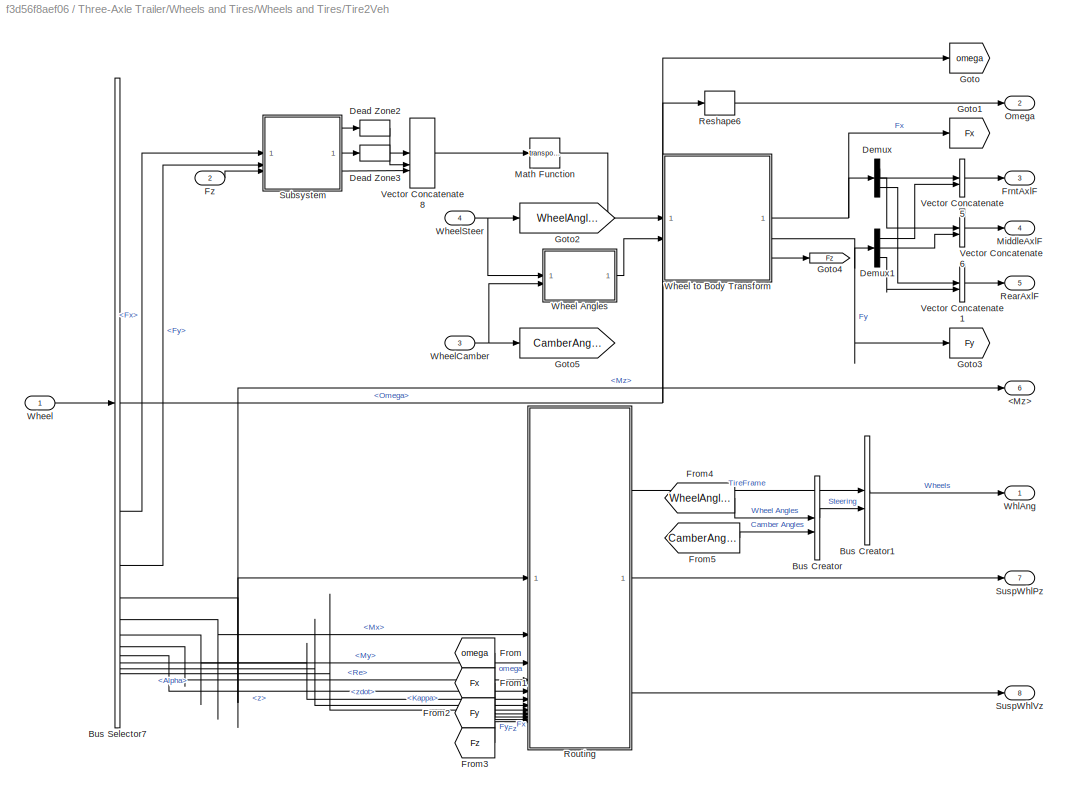
BLOCK [SubSystem] Three-Axle Trailer/Wheels and Tires/Wheels and Tires/Tire2Veh
BLOCK [Outport] Three-Axle Trailer/Wheels and Tires/Wheels and Tires/Tire2Veh/<Mz>
  Port = 6
  VectorParamsAs1DForOutWhenUnconnected = off
BLOCK [BusCreator] Three-Axle Trailer/Wheels and Tires/Wheels and Tires/Tire2Veh/Bus Creator
  DisplayOption = bar
  InheritFromInputs = on
  Inputs = 2
BLOCK [BusCreator] Three-Axle Trailer/Wheels and Tires/Wheels and Tires/Tire2Veh/Bus Creator1
  DisplayOption = bar
  InheritFromInputs = on
  Inputs = 2
BLOCK [BusSelector] Three-Axle Trailer/Wheels and Tires/Wheels and Tires/Tire2Veh/Bus Selector7
  OutputSignals = Omega,Fx,Fy,Mz,Mx,My,Re,z,zdot,Kappa,Alpha
BLOCK [DeadZone] Three-Axle Trailer/Wheels and Tires/Wheels and Tires/Tire2Veh/Dead Zone2
  LowerValue = -5
  UpperValue = 5
  ZeroCross = off
BLOCK [DeadZone] Three-Axle Trailer/Wheels and Tires/Wheels and Tires/Tire2Veh/Dead Zone3
  LowerValue = -10
  UpperValue = 10
  ZeroCross = off
BLOCK [Demux] Three-Axle Trailer/Wheels and Tires/Wheels and Tires/Tire2Veh/Demux
  Outputs = [2,2,2]
BLOCK [Demux] Three-Axle Trailer/Wheels and Tires/Wheels and Tires/Tire2Veh/Demux1
  Outputs = [2,2,2]
BLOCK [Outport] Three-Axle Trailer/Wheels and Tires/Wheels and Tires/Tire2Veh/FrntAxlF
  Port = 3
  VectorParamsAs1DForOutWhenUnconnected = off
BLOCK [From] Three-Axle Trailer/Wheels and Tires/Wheels and Tires/Tire2Veh/From
  GotoTag = omega
BLOCK [From] Three-Axle Trailer/Wheels and Tires/Wheels and Tires/Tire2Veh/From1
  GotoTag = Fx
BLOCK [From] Three-Axle Trailer/Wheels and Tires/Wheels and Tires/Tire2Veh/From2
  GotoTag = Fy
BLOCK [From] Three-Axle Trailer/Wheels and Tires/Wheels and Tires/Tire2Veh/From3
  GotoTag = Fz
BLOCK [From] Three-Axle Trailer/Wheels and Tires/Wheels and Tires/Tire2Veh/From4
  GotoTag = WheelAngles
BLOCK [From] Three-Axle Trailer/Wheels and Tires/Wheels and Tires/Tire2Veh/From5
  GotoTag = CamberAngles
BLOCK [Inport] Three-Axle Trailer/Wheels and Tires/Wheels and Tires/Tire2Veh/Fz
  Port = 2
BLOCK [Goto] Three-Axle Trailer/Wheels and Tires/Wheels and Tires/Tire2Veh/Goto
  GotoTag = omega
BLOCK [Goto] Three-Axle Trailer/Wheels and Tires/Wheels and Tires/Tire2Veh/Goto1
  GotoTag = Fx
BLOCK [Goto] Three-Axle Trailer/Wheels and Tires/Wheels and Tires/Tire2Veh/Goto2
  GotoTag = WheelAngles
BLOCK [Goto] Three-Axle Trailer/Wheels and Tires/Wheels and Tires/Tire2Veh/Goto3
  GotoTag = Fy
BLOCK [Goto] Three-Axle Trailer/Wheels and Tires/Wheels and Tires/Tire2Veh/Goto4
  GotoTag = Fz
BLOCK [Goto] Three-Axle Trailer/Wheels and Tires/Wheels and Tires/Tire2Veh/Goto5
  GotoTag = CamberAngles
BLOCK [Math] Three-Axle Trailer/Wheels and Tires/Wheels and Tires/Tire2Veh/Math Function
  Operator = transpose
  SignedPower = on
BLOCK [Outport] Three-Axle Trailer/Wheels and Tires/Wheels and Tires/Tire2Veh/MiddleAxlF
  Port = 4
  VectorParamsAs1DForOutWhenUnconnected = off
BLOCK [Outport] Three-Axle Trailer/Wheels and Tires/Wheels and Tires/Tire2Veh/Omega
  NameLocation = top
  Port = 2
  VectorParamsAs1DForOutWhenUnconnected = off
BLOCK [Outport] Three-Axle Trailer/Wheels and Tires/Wheels and Tires/Tire2Veh/RearAxlF
  Port = 5
  VectorParamsAs1DForOutWhenUnconnected = off
BLOCK [Reshape] Three-Axle Trailer/Wheels and Tires/Wheels and Tires/Tire2Veh/Reshape6
  OutputDimensionality = Customize
  OutputDimensions = [3,2]
BLOCK [SubSystem] Three-Axle Trailer/Wheels and Tires/Wheels and Tires/Tire2Veh/Routing
BLOCK [Inport] Three-Axle Trailer/Wheels and Tires/Wheels and Tires/Tire2Veh/Routing/<Alpha>
  Port = 8
BLOCK [Inport] Three-Axle Trailer/Wheels and Tires/Wheels and Tires/Tire2Veh/Routing/<Kappa>
  Port = 7
BLOCK [Inport] Three-Axle Trailer/Wheels and Tires/Wheels and Tires/Tire2Veh/Routing/<Mx>
  Port = 2
BLOCK [Inport] Three-Axle Trailer/Wheels and Tires/Wheels and Tires/Tire2Veh/Routing/<My>
  Port = 3
BLOCK [Inport] Three-Axle Trailer/Wheels and Tires/Wheels and Tires/Tire2Veh/Routing/<Mz>
BLOCK [Inport] Three-Axle Trailer/Wheels and Tires/Wheels and Tires/Tire2Veh/Routing/<Re>
  Port = 4
BLOCK [Inport] Three-Axle Trailer/Wheels and Tires/Wheels and Tires/Tire2Veh/Routing/<z>
  Port = 5
BLOCK [Inport] Three-Axle Trailer/Wheels and Tires/Wheels and Tires/Tire2Veh/Routing/<zdot>
  Port = 6
BLOCK [BusCreator] Three-Axle Trailer/Wheels and Tires/Wheels and Tires/Tire2Veh/Routing/Bus Creator
  DisplayOption = bar
  InheritFromInputs = on
  Inputs = 12
BLOCK [Inport] Three-Axle Trailer/Wheels and Tires/Wheels and Tires/Tire2Veh/Routing/Fx
  Port = 10
BLOCK [Inport] Three-Axle Trailer/Wheels and Tires/Wheels and Tires/Tire2Veh/Routing/Fy
  Port = 11
BLOCK [Inport] Three-Axle Trailer/Wheels and Tires/Wheels and Tires/Tire2Veh/Routing/Fz
  Port = 12
BLOCK [Inport] Three-Axle Trailer/Wheels and Tires/Wheels and Tires/Tire2Veh/Routing/Omega
  Port = 9
BLOCK [Outport] Three-Axle Trailer/Wheels and Tires/Wheels and Tires/Tire2Veh/Routing/Out1
  VectorParamsAs1DForOutWhenUnconnected = off
BLOCK [Outport] Three-Axle Trailer/Wheels and Tires/Wheels and Tires/Tire2Veh/Routing/Out2
  Port = 2
  VectorParamsAs1DForOutWhenUnconnected = off
BLOCK [Outport] Three-Axle Trailer/Wheels and Tires/Wheels and Tires/Tire2Veh/Routing/Out3
  Port = 3
  VectorParamsAs1DForOutWhenUnconnected = off
BLOCK [Reshape] Three-Axle Trailer/Wheels and Tires/Wheels and Tires/Tire2Veh/Routing/Reshape
  OutputDimensionality = Row vector (2-D)
BLOCK [Reshape] Three-Axle Trailer/Wheels and Tires/Wheels and Tires/Tire2Veh/Routing/Reshape1
  OutputDimensionality = Row vector (2-D)
BLOCK [UnaryMinus] Three-Axle Trailer/Wheels and Tires/Wheels and Tires/Tire2Veh/Routing/Unary Minus1
BLOCK [UnaryMinus] Three-Axle Trailer/Wheels and Tires/Wheels and Tires/Tire2Veh/Routing/Unary Minus2
BLOCK [SubSystem] Three-Axle Trailer/Wheels and Tires/Wheels and Tires/Tire2Veh/Subsystem
BLOCK [Inport] Three-Axle Trailer/Wheels and Tires/Wheels and Tires/Tire2Veh/Subsystem/<Fx>
BLOCK [Inport] Three-Axle Trailer/Wheels and Tires/Wheels and Tires/Tire2Veh/Subsystem/<Fy>
  Port = 2
BLOCK [Outport] Three-Axle Trailer/Wheels and Tires/Wheels and Tires/Tire2Veh/Subsystem/FxTotal
BLOCK [Outport] Three-Axle Trailer/Wheels and Tires/Wheels and Tires/Tire2Veh/Subsystem/FyTotal
  Port = 2
BLOCK [Inport] Three-Axle Trailer/Wheels and Tires/Wheels and Tires/Tire2Veh/Subsystem/Fz
  Port = 3
BLOCK [Outport] Three-Axle Trailer/Wheels and Tires/Wheels and Tires/Tire2Veh/Subsystem/FzTotal
  Port = 3
BLOCK [Gain] Three-Axle Trailer/Wheels and Tires/Wheels and Tires/Tire2Veh/Subsystem/Gain
  Gain = trailer.NumberOfWheelsPerAxle/2
BLOCK [Gain] Three-Axle Trailer/Wheels and Tires/Wheels and Tires/Tire2Veh/Subsystem/Gain1
  Gain = trailer.NumberOfWheelsPerAxle/2
BLOCK [Gain] Three-Axle Trailer/Wheels and Tires/Wheels and Tires/Tire2Veh/Subsystem/Gain2
  Gain = trailer.NumberOfWheelsPerAxle/2
BLOCK [Outport] Three-Axle Trailer/Wheels and Tires/Wheels and Tires/Tire2Veh/SuspWhlPz
  Port = 7
  VectorParamsAs1DForOutWhenUnconnected = off
BLOCK [Outport] Three-Axle Trailer/Wheels and Tires/Wheels and Tires/Tire2Veh/SuspWhlVz
  Port = 8
  VectorParamsAs1DForOutWhenUnconnected = off
BLOCK [Concatenate] Three-Axle Trailer/Wheels and Tires/Wheels and Tires/Tire2Veh/Vector Concatenate1
  ConcatenateDimension = 2
  Mode = Multidimensional array
BLOCK [Concatenate] Three-Axle Trailer/Wheels and Tires/Wheels and Tires/Tire2Veh/Vector Concatenate5
  ConcatenateDimension = 2
  Mode = Multidimensional array
BLOCK [Concatenate] Three-Axle Trailer/Wheels and Tires/Wheels and Tires/Tire2Veh/Vector Concatenate6
  ConcatenateDimension = 2
  Mode = Multidimensional array
BLOCK [Concatenate] Three-Axle Trailer/Wheels and Tires/Wheels and Tires/Tire2Veh/Vector Concatenate8
  ConcatenateDimension = 2
  Mode = Multidimensional array
  NumInputs = 3
BLOCK [Inport] Three-Axle Trailer/Wheels and Tires/Wheels and Tires/Tire2Veh/Wheel
BLOCK [SubSystem] Three-Axle Trailer/Wheels and Tires/Wheels and Tires/Tire2Veh/Wheel Angles
BLOCK [Sum] Three-Axle Trailer/Wheels and Tires/Wheels and Tires/Tire2Veh/Wheel Angles/Add1
  IconShape = rectangular
BLOCK [Sum] Three-Axle Trailer/Wheels and Tires/Wheels and Tires/Tire2Veh/Wheel Angles/Add2
  IconShape = rectangular
BLOCK [Inport] Three-Axle Trailer/Wheels and Tires/Wheels and Tires/Tire2Veh/Wheel Angles/Camber
  NameLocation = top
  Port = 2
BLOCK [Constant] Three-Axle Trailer/Wheels and Tires/Wheels and Tires/Tire2Veh/Wheel Angles/Constant1
  Value = pi
BLOCK [Constant] Three-Axle Trailer/Wheels and Tires/Wheels and Tires/Tire2Veh/Wheel Angles/Constant2
  Value = [pi;0;pi;0;pi;0].*0+[0;pi;0;pi;0;pi].*.0
BLOCK [Constant] Three-Axle Trailer/Wheels and Tires/Wheels and Tires/Tire2Veh/Wheel Angles/Constant3
  Value = ones(1,6).*0
BLOCK [Inport] Three-Axle Trailer/Wheels and Tires/Wheels and Tires/Tire2Veh/Wheel Angles/Front
  NameLocation = top
BLOCK [Reshape] Three-Axle Trailer/Wheels and Tires/Wheels and Tires/Tire2Veh/Wheel Angles/Reshape
  OutputDimensionality = Row vector (2-D)
BLOCK [Reshape] Three-Axle Trailer/Wheels and Tires/Wheels and Tires/Tire2Veh/Wheel Angles/Reshape1
  OutputDimensionality = Row vector (2-D)
BLOCK [Reshape] Three-Axle Trailer/Wheels and Tires/Wheels and Tires/Tire2Veh/Wheel Angles/Reshape2
  OutputDimensionality = Row vector (2-D)
BLOCK [Concatenate] Three-Axle Trailer/Wheels and Tires/Wheels and Tires/Tire2Veh/Wheel Angles/Vector Concatenate3
  Mode = Multidimensional array
  NumInputs = 3
BLOCK [Outport] Three-Axle Trailer/Wheels and Tires/Wheels and Tires/Tire2Veh/Wheel Angles/Vehicle
  VectorParamsAs1DForOutWhenUnconnected = off
BLOCK [SubSystem] Three-Axle Trailer/Wheels and Tires/Wheels and Tires/Tire2Veh/Wheel to Body Transform
BLOCK [Demux] Three-Axle Trailer/Wheels and Tires/Wheels and Tires/Tire2Veh/Wheel to Body Transform/Demux1
  Outputs = 3
BLOCK [Product] Three-Axle Trailer/Wheels and Tires/Wheels and Tires/Tire2Veh/Wheel to Body Transform/Divide1
  Inputs = **
  Multiplication = Matrix(*)
BLOCK [ForEach] Three-Axle Trailer/Wheels and Tires/Wheels and Tires/Tire2Veh/Wheel to Body Transform/For Each
  DisableCoverage = on
BLOCK [Inport] Three-Axle Trailer/Wheels and Tires/Wheels and Tires/Tire2Veh/Wheel to Body Transform/Forces
  Partition = on
  PartitionDimension = 2
  PartitionOffset = 0
  PartitionWidth = 1
  PortDimensions = [3,1]
BLOCK [Outport] Three-Axle Trailer/Wheels and Tires/Wheels and Tires/Tire2Veh/Wheel to Body Transform/Fx
  ConcatenationDimension = 1
  VectorParamsAs1DForOutWhenUnconnected = off
BLOCK [Outport] Three-Axle Trailer/Wheels and Tires/Wheels and Tires/Tire2Veh/Wheel to Body Transform/Fy
  ConcatenationDimension = 1
  Port = 2
  VectorParamsAs1DForOutWhenUnconnected = off
BLOCK [Outport] Three-Axle Trailer/Wheels and Tires/Wheels and Tires/Tire2Veh/Wheel to Body Transform/Fz
  ConcatenationDimension = 1
  Port = 3
  VectorParamsAs1DForOutWhenUnconnected = off
BLOCK [Reference] Three-Axle Trailer/Wheels and Tires/Wheels and Tires/Tire2Veh/Wheel to Body Transform/Rotation Angles to Direction Cosine Matrix  REF=sharedtransform/Rotation Angles to
Direction Cosine Matrix
  AttributesFormatString = Rotation Order: %<rotationOrder>
  SourceBlock = sharedtransform/Rotation Angles to\nDirection Cosine Matrix
  SourceType = Ang2DCM
BLOCK [Selector] Three-Axle Trailer/Wheels and Tires/Wheels and Tires/Tire2Veh/Wheel to Body Transform/Selector
  IndexOptions = Index vector (dialog)
  Indices = [3 2 1]
  InputPortWidth = 3
  OutputSizes = 1
BLOCK [Inport] Three-Axle Trailer/Wheels and Tires/Wheels and Tires/Tire2Veh/Wheel to Body Transform/WheelAngles
  Partition = on
  PartitionDimension = 2
  PartitionOffset = 0
  PartitionWidth = 1
  Port = 2
  PortDimensions = [3,1]
BLOCK [Inport] Three-Axle Trailer/Wheels and Tires/Wheels and Tires/Tire2Veh/WheelCamber
  Port = 3
BLOCK [Inport] Three-Axle Trailer/Wheels and Tires/Wheels and Tires/Tire2Veh/WheelSteer
  NameLocation = top
  Port = 4
BLOCK [Outport] Three-Axle Trailer/Wheels and Tires/Wheels and Tires/Tire2Veh/WhlAng
  VectorParamsAs1DForOutWhenUnconnected = off
BLOCK [SubSystem] Three-Axle Trailer/Wheels and Tires/Wheels and Tires/Tires
  LabelModeActiveChoice = 0
  Variant = on
  VariantControl = Variant1
  VariantControlMode = label
BLOCK [Outport] Three-Axle Trailer/Wheels and Tires/Wheels and Tires/Tires/ Wheels
  VectorParamsAs1DForOutWhenUnconnected = off
BLOCK [Inport] Three-Axle Trailer/Wheels and Tires/Wheels and Tires/Tires/Brake Pressure 
  Port = 2
BLOCK [Inport] Three-Axle Trailer/Wheels and Tires/Wheels and Tires/Tires/Camber 
  Port = 6
BLOCK [Inport] Three-Axle Trailer/Wheels and Tires/Wheels and Tires/Tires/DriveTorque 
BLOCK [SubSystem] Three-Axle Trailer/Wheels and Tires/Wheels and Tires/Tires/Fiala Tires
  VariantControl = 1
BLOCK [Inport] Three-Axle Trailer/Wheels and Tires/Wheels and Tires/Tires/Fiala Tires/Brake Pressure
  Port = 2
BLOCK [Inport] Three-Axle Trailer/Wheels and Tires/Wheels and Tires/Tires/Fiala Tires/Camber
  Port = 6
BLOCK [Inport] Three-Axle Trailer/Wheels and Tires/Wheels and Tires/Tires/Fiala Tires/DriveTorque
BLOCK [Reference] Three-Axle Trailer/Wheels and Tires/Wheels and Tires/Tires/Fiala Tires/Fiala Tire1  REF=vehdynlibtire/Fiala Wheel 2DOF
  SourceBlock = vehdynlibtire/Fiala Wheel 2DOF
  SourceType = Fiala Wheel 2DOF
BLOCK [Inport] Three-Axle Trailer/Wheels and Tires/Wheels and Tires/Tires/Fiala Tires/FzSusp
  Port = 10
BLOCK [Inport] Three-Axle Trailer/Wheels and Tires/Wheels and Tires/Tires/Fiala Tires/Gnd
  Port = 9
BLOCK [Inport] Three-Axle Trailer/Wheels and Tires/Wheels and Tires/Tires/Fiala Tires/Press
  Port = 7
  Unit = Pa
BLOCK [Reshape] Three-Axle Trailer/Wheels and Tires/Wheels and Tires/Tires/Fiala Tires/Reshape
BLOCK [Selector] Three-Axle Trailer/Wheels and Tires/Wheels and Tires/Tires/Fiala Tires/Selector9
  IndexOptions = Index vector (dialog),Select all
  Indices = 5,1
  InputPortWidth = 4
  NumberOfDimensions = 2
  OutputSizes = 1,1
BLOCK [SignalSpecification] Three-Axle Trailer/Wheels and Tires/Wheels and Tires/Tires/Fiala Tires/Signal Specification
  Unit = 1
BLOCK [Terminator] Three-Axle Trailer/Wheels and Tires/Wheels and Tires/Tires/Fiala Tires/Terminator
BLOCK [Terminator] Three-Axle Trailer/Wheels and Tires/Wheels and Tires/Tires/Fiala Tires/Terminator1
BLOCK [Terminator] Three-Axle Trailer/Wheels and Tires/Wheels and Tires/Tires/Fiala Tires/Terminator2
BLOCK [Terminator] Three-Axle Trailer/Wheels and Tires/Wheels and Tires/Tires/Fiala Tires/Terminator3
BLOCK [Terminator] Three-Axle Trailer/Wheels and Tires/Wheels and Tires/Tires/Fiala Tires/Terminator4
BLOCK [Terminator] Three-Axle Trailer/Wheels and Tires/Wheels and Tires/Tires/Fiala Tires/Terminator5
BLOCK [Terminator] Three-Axle Trailer/Wheels and Tires/Wheels and Tires/Tires/Fiala Tires/Terminator6
BLOCK [Inport] Three-Axle Trailer/Wheels and Tires/Wheels and Tires/Tires/Fiala Tires/Vx
  Port = 4
BLOCK [Inport] Three-Axle Trailer/Wheels and Tires/Wheels and Tires/Tires/Fiala Tires/Vy
  Port = 5
BLOCK [Outport] Three-Axle Trailer/Wheels and Tires/Wheels and Tires/Tires/Fiala Tires/Wheels
  VectorParamsAs1DForOutWhenUnconnected = off
BLOCK [Inport] Three-Axle Trailer/Wheels and Tires/Wheels and Tires/Tires/Fiala Tires/lambda
  Port = 8
  Unit = 1
BLOCK [Inport] Three-Axle Trailer/Wheels and Tires/Wheels and Tires/Tires/Fiala Tires/r
  Port = 3
BLOCK [Inport] Three-Axle Trailer/Wheels and Tires/Wheels and Tires/Tires/FzSusp 
  Port = 10
BLOCK [Inport] Three-Axle Trailer/Wheels and Tires/Wheels and Tires/Tires/Gnd 
  Port = 9
BLOCK [SubSystem] Three-Axle Trailer/Wheels and Tires/Wheels and Tires/Tires/MF Tires
  VariantControl = 0
BLOCK [Inport] Three-Axle Trailer/Wheels and Tires/Wheels and Tires/Tires/MF Tires/Brake Pressure
  Port = 2
BLOCK [Inport] Three-Axle Trailer/Wheels and Tires/Wheels and Tires/Tires/MF Tires/Camber
  Port = 6
BLOCK [Reference] Three-Axle Trailer/Wheels and Tires/Wheels and Tires/Tires/MF Tires/Combined Slip Wheel 2DOF  REF=vehdynlibtire/Combined Slip Wheel 2DOF
  SourceBlock = vehdynlibtire/Combined Slip Wheel 2DOF
  SourceType = Combined Slip Wheel 2DOF
BLOCK [Inport] Three-Axle Trailer/Wheels and Tires/Wheels and Tires/Tires/MF Tires/DriveTorque
BLOCK [Inport] Three-Axle Trailer/Wheels and Tires/Wheels and Tires/Tires/MF Tires/FzSusp
  Port = 10
BLOCK [Inport] Three-Axle Trailer/Wheels and Tires/Wheels and Tires/Tires/MF Tires/Gnd
  Port = 9
BLOCK [Inport] Three-Axle Trailer/Wheels and Tires/Wheels and Tires/Tires/MF Tires/Press
  Port = 7
  Unit = Pa
BLOCK [SignalSpecification] Three-Axle Trailer/Wheels and Tires/Wheels and Tires/Tires/MF Tires/Signal Specification
  Unit = 1
BLOCK [Terminator] Three-Axle Trailer/Wheels and Tires/Wheels and Tires/Tires/MF Tires/Terminator
BLOCK [Terminator] Three-Axle Trailer/Wheels and Tires/Wheels and Tires/Tires/MF Tires/Terminator1
BLOCK [Terminator] Three-Axle Trailer/Wheels and Tires/Wheels and Tires/Tires/MF Tires/Terminator2
BLOCK [Terminator] Three-Axle Trailer/Wheels and Tires/Wheels and Tires/Tires/MF Tires/Terminator3
BLOCK [Terminator] Three-Axle Trailer/Wheels and Tires/Wheels and Tires/Tires/MF Tires/Terminator4
BLOCK [Terminator] Three-Axle Trailer/Wheels and Tires/Wheels and Tires/Tires/MF Tires/Terminator5
BLOCK [Terminator] Three-Axle Trailer/Wheels and Tires/Wheels and Tires/Tires/MF Tires/Terminator6
BLOCK [Inport] Three-Axle Trailer/Wheels and Tires/Wheels and Tires/Tires/MF Tires/Vx
  Port = 4
BLOCK [Inport] Three-Axle Trailer/Wheels and Tires/Wheels and Tires/Tires/MF Tires/Vy
  Port = 5
BLOCK [Outport] Three-Axle Trailer/Wheels and Tires/Wheels and Tires/Tires/MF Tires/Wheels
  VectorParamsAs1DForOutWhenUnconnected = off
BLOCK [Inport] Three-Axle Trailer/Wheels and Tires/Wheels and Tires/Tires/MF Tires/lambda
  Port = 8
  Unit = 1
BLOCK [Inport] Three-Axle Trailer/Wheels and Tires/Wheels and Tires/Tires/MF Tires/r
  Port = 3
BLOCK [Inport] Three-Axle Trailer/Wheels and Tires/Wheels and Tires/Tires/Press 
  Port = 7
BLOCK [Inport] Three-Axle Trailer/Wheels and Tires/Wheels and Tires/Tires/Vx 
  Port = 4
BLOCK [Inport] Three-Axle Trailer/Wheels and Tires/Wheels and Tires/Tires/Vy 
  Port = 5
BLOCK [Inport] Three-Axle Trailer/Wheels and Tires/Wheels and Tires/Tires/lambda 
  Port = 8
BLOCK [Inport] Three-Axle Trailer/Wheels and Tires/Wheels and Tires/Tires/r 
  Port = 3
BLOCK [SubSystem] Three-Axle Trailer/Wheels and Tires/Wheels and Tires/Veh2Tire
BLOCK [Inport] Three-Axle Trailer/Wheels and Tires/Wheels and Tires/Veh2Tire/Axle
  Port = 2
BLOCK [Inport] Three-Axle Trailer/Wheels and Tires/Wheels and Tires/Veh2Tire/Brake
  Port = 3
BLOCK [Demux] Three-Axle Trailer/Wheels and Tires/Wheels and Tires/Veh2Tire/Demux4
  Outputs = 6
BLOCK [Gain] Three-Axle Trailer/Wheels and Tires/Wheels and Tires/Veh2Tire/Gain4
  Gain = [1;-1;1;-1;1;-1]*0+1
BLOCK [Mux] Three-Axle Trailer/Wheels and Tires/Wheels and Tires/Veh2Tire/Mux1
  DisplayOption = bar
  Inputs = 6
BLOCK [Outport] Three-Axle Trailer/Wheels and Tires/Wheels and Tires/Veh2Tire/P
  Port = 2
  PortDimensions = 6
  Unit = Pa
  VectorParamsAs1DForOutWhenUnconnected = off
BLOCK [Reshape] Three-Axle Trailer/Wheels and Tires/Wheels and Tires/Veh2Tire/Reshape3
BLOCK [Reshape] Three-Axle Trailer/Wheels and Tires/Wheels and Tires/Veh2Tire/Reshape4
BLOCK [Outport] Three-Axle Trailer/Wheels and Tires/Wheels and Tires/Veh2Tire/T
  Unit = N*m
  VectorParamsAs1DForOutWhenUnconnected = off
BLOCK [UnaryMinus] Three-Axle Trailer/Wheels and Tires/Wheels and Tires/Veh2Tire/Unary Minus
BLOCK [Inport] Three-Axle Trailer/Wheels and Tires/Wheels and Tires/Veh2Tire/VehVel
  Port = 4
BLOCK [SubSystem] Three-Axle Trailer/Wheels and Tires/Wheels and Tires/Veh2Tire/Wheel Angles
BLOCK [Sum] Three-Axle Trailer/Wheels and Tires/Wheels and Tires/Veh2Tire/Wheel Angles/Add1
  IconShape = rectangular
BLOCK [Sum] Three-Axle Trailer/Wheels and Tires/Wheels and Tires/Veh2Tire/Wheel Angles/Add2
  IconShape = rectangular
BLOCK [Constant] Three-Axle Trailer/Wheels and Tires/Wheels and Tires/Veh2Tire/Wheel Angles/Constant1
  Value = pi
BLOCK [Constant] Three-Axle Trailer/Wheels and Tires/Wheels and Tires/Veh2Tire/Wheel Angles/Constant2
  Value = [pi;0;pi;0;pi;0].*0+[0;pi;0;pi;0;pi].*0
BLOCK [Constant] Three-Axle Trailer/Wheels and Tires/Wheels and Tires/Veh2Tire/Wheel Angles/Constant3
  Value = ones(1,6).*0
BLOCK [Reshape] Three-Axle Trailer/Wheels and Tires/Wheels and Tires/Veh2Tire/Wheel Angles/Reshape
  OutputDimensionality = Row vector (2-D)
BLOCK [Reshape] Three-Axle Trailer/Wheels and Tires/Wheels and Tires/Veh2Tire/Wheel Angles/Reshape1
  OutputDimensionality = Row vector (2-D)
BLOCK [Reshape] Three-Axle Trailer/Wheels and Tires/Wheels and Tires/Veh2Tire/Wheel Angles/Reshape2
  OutputDimensionality = Row vector (2-D)
BLOCK [Concatenate] Three-Axle Trailer/Wheels and Tires/Wheels and Tires/Veh2Tire/Wheel Angles/Vector Concatenate3
  Mode = Multidimensional array
  NumInputs = 3
BLOCK [Outport] Three-Axle Trailer/Wheels and Tires/Wheels and Tires/Veh2Tire/Wheel Angles/Vehicle
  VectorParamsAs1DForOutWhenUnconnected = off
BLOCK [Inport] Three-Axle Trailer/Wheels and Tires/Wheels and Tires/Veh2Tire/Wheel Angles/camber
  NameLocation = top
  Port = 2
BLOCK [Inport] Three-Axle Trailer/Wheels and Tires/Wheels and Tires/Veh2Tire/Wheel Angles/steer
  NameLocation = top
BLOCK [SubSystem] Three-Axle Trailer/Wheels and Tires/Wheels and Tires/Veh2Tire/Wheel to Body Transform
BLOCK [Demux] Three-Axle Trailer/Wheels and Tires/Wheels and Tires/Veh2Tire/Wheel to Body Transform/Demux1
  Outputs = 3
BLOCK [Product] Three-Axle Trailer/Wheels and Tires/Wheels and Tires/Veh2Tire/Wheel to Body Transform/Divide1
  Inputs = **
  Multiplication = Matrix(*)
BLOCK [ForEach] Three-Axle Trailer/Wheels and Tires/Wheels and Tires/Veh2Tire/Wheel to Body Transform/For Each
  DisableCoverage = on
BLOCK [Reference] Three-Axle Trailer/Wheels and Tires/Wheels and Tires/Veh2Tire/Wheel to Body Transform/Rotation Angles to Direction Cosine Matrix  REF=sharedtransform/Rotation Angles to
Direction Cosine Matrix
  AttributesFormatString = Rotation Order: %<rotationOrder>
  SourceBlock = sharedtransform/Rotation Angles to\nDirection Cosine Matrix
  SourceType = Ang2DCM
BLOCK [Selector] Three-Axle Trailer/Wheels and Tires/Wheels and Tires/Veh2Tire/Wheel to Body Transform/Selector
  IndexOptions = Index vector (dialog)
  Indices = [3 2 1]
  InputPortWidth = 3
  OutputSizes = 1
BLOCK [Inport] Three-Axle Trailer/Wheels and Tires/Wheels and Tires/Veh2Tire/Wheel to Body Transform/VelVeh
  Partition = on
  PartitionDimension = 2
  PartitionOffset = 0
  PartitionWidth = 1
BLOCK [Inport] Three-Axle Trailer/Wheels and Tires/Wheels and Tires/Veh2Tire/Wheel to Body Transform/WheelAngles
  Partition = on
  PartitionDimension = 2
  PartitionOffset = 0
  PartitionWidth = 1
  Port = 2
BLOCK [Outport] Three-Axle Trailer/Wheels and Tires/Wheels and Tires/Veh2Tire/Wheel to Body Transform/xdotWheel
  ConcatenationDimension = 1
  VectorParamsAs1DForOutWhenUnconnected = off
BLOCK [Outport] Three-Axle Trailer/Wheels and Tires/Wheels and Tires/Veh2Tire/Wheel to Body Transform/ydotWheel
  ConcatenationDimension = 1
  Port = 2
  VectorParamsAs1DForOutWhenUnconnected = off
BLOCK [Outport] Three-Axle Trailer/Wheels and Tires/Wheels and Tires/Veh2Tire/Wheel to Body Transform/zdotWheel
  ConcatenationDimension = 1
  Port = 3
  VectorParamsAs1DForOutWhenUnconnected = off
BLOCK [Inport] Three-Axle Trailer/Wheels and Tires/Wheels and Tires/Veh2Tire/WheelCamber
  Port = 6
BLOCK [Inport] Three-Axle Trailer/Wheels and Tires/Wheels and Tires/Veh2Tire/WheelSteer
  Port = 5
BLOCK [Outport] Three-Axle Trailer/Wheels and Tires/Wheels and Tires/Veh2Tire/psidot
  Port = 3
  Unit = rad/s
  VectorParamsAs1DForOutWhenUnconnected = off
BLOCK [Inport] Three-Axle Trailer/Wheels and Tires/Wheels and Tires/Veh2Tire/r
BLOCK [Outport] Three-Axle Trailer/Wheels and Tires/Wheels and Tires/Veh2Tire/xdotAxle
  Port = 4
  PortDimensions = 6
  Unit = m/s
  VectorParamsAs1DForOutWhenUnconnected = off
BLOCK [Outport] Three-Axle Trailer/Wheels and Tires/Wheels and Tires/Veh2Tire/ydotAxle
  Port = 5
  PortDimensions = 6
  Unit = m/s
  VectorParamsAs1DForOutWhenUnconnected = off
BLOCK [Outport] Three-Axle Trailer/Wheels and Tires/Wheels and Tires/Veh2Tire/zdotAxle
  Port = 6
  PortDimensions = 6
  Unit = m/s
  VectorParamsAs1DForOutWhenUnconnected = off
BLOCK [Inport] Three-Axle Trailer/Wheels and Tires/Wheels and Tires/VehVel
  Port = 7
BLOCK [Inport] Three-Axle Trailer/Wheels and Tires/Wheels and Tires/WheelAng
BLOCK [Outport] Three-Axle Trailer/Wheels and Tires/Wheels and Tires/WhlAng
  VectorParamsAs1DForOutWhenUnconnected = off
BLOCK [Inport] Three-Axle Trailer/Wheels and Tires/Wheels and Tires/r
  Port = 6
BLOCK [SubSystem] Three-Axle Trailer/Wheels and Tires/Wheels and Tires/scale factors with friction
BLOCK [Constant] Three-Axle Trailer/Wheels and Tires/Wheels and Tires/scale factors with friction/0
  Value = [zeros(1,numWheels)]
  VectorParams1D = off
BLOCK [Reshape] Three-Axle Trailer/Wheels and Tires/Wheels and Tires/scale factors with friction/Reshape
  OutputDimensionality = Row vector (2-D)
  OutputDimensions = [1,numWheels]
BLOCK [Reshape] Three-Axle Trailer/Wheels and Tires/Wheels and Tires/scale factors with friction/Reshape1
  OutputDimensionality = Row vector (2-D)
  OutputDimensions = [1,numWheels]
BLOCK [SignalSpecification] Three-Axle Trailer/Wheels and Tires/Wheels and Tires/scale factors with friction/Signal Specification3
  Unit = 1
BLOCK [Concatenate] Three-Axle Trailer/Wheels and Tires/Wheels and Tires/scale factors with friction/Vector Concatenate
  Mode = Multidimensional array
  NumInputs = 5
BLOCK [Outport] Three-Axle Trailer/Wheels and Tires/Wheels and Tires/scale factors with friction/lambdas
  Unit = 1
  VectorParamsAs1DForOutWhenUnconnected = off
BLOCK [Inport] Three-Axle Trailer/Wheels and Tires/Wheels and Tires/scale factors with friction/lamda_mu_x
BLOCK [Inport] Three-Axle Trailer/Wheels and Tires/Wheels and Tires/scale factors with friction/lamda_mu_y
  Port = 2
BLOCK [Constant] Three-Axle Trailer/Wheels and Tires/Wheels and Tires/scale factors with friction/ones
  Value = [ones(23,numWheels)]
  VectorParams1D = off
BLOCK [Constant] Three-Axle Trailer/Wheels and Tires/Wheels and Tires/scale factors with friction/ones2
  Value = ones(1,numWheels)
  VectorParams1D = off
BLOCK [SubSystem] Trailer Ground Input
  VariantControl = 0
BLOCK [BusCreator] Trailer Ground Input/Bus Creator
  DisplayOption = bar
  InheritFromInputs = on
  Inputs = 6
BLOCK [BusCreator] Trailer Ground Input/Bus Creator2
  DisplayOption = bar
  InheritFromInputs = on
  Inputs = 6
BLOCK [BusCreator] Trailer Ground Input/Bus Creator3
  DisplayOption = bar
  InheritFromInputs = on
  Inputs = 2
BLOCK [Constant] Trailer Ground Input/Constant1
  Value = zeros(6,1)
BLOCK [Demux] Trailer Ground Input/Demux
  Outputs = 6
BLOCK [Demux] Trailer Ground Input/Demux1
  Outputs = 6
BLOCK [Constant] Trailer Ground Input/Friction
  Value = ones(6,1).*1.0
BLOCK [Outport] Trailer Ground Input/Ground
  VectorParamsAs1DForOutWhenUnconnected = off
BLOCK [SignalSpecification] Trailer Ground Input/Signal Specification
  Unit = m
BLOCK [SignalSpecification] Trailer Ground Input/Signal Specification1
  Unit = 1
BLOCK [SubSystem] Vehicle Ground Input
  VariantControl = 0
BLOCK [BusCreator] Vehicle Ground Input/Bus Creator
  DisplayOption = bar
  InheritFromInputs = on
  Inputs = 6
BLOCK [BusCreator] Vehicle Ground Input/Bus Creator2
  DisplayOption = bar
  InheritFromInputs = on
  Inputs = 6
BLOCK [BusCreator] Vehicle Ground Input/Bus Creator3
  DisplayOption = bar
  InheritFromInputs = on
  Inputs = 2
BLOCK [Constant] Vehicle Ground Input/Constant1
  Value = zeros(6,1)
BLOCK [Demux] Vehicle Ground Input/Demux
  Outputs = 6
BLOCK [Demux] Vehicle Ground Input/Demux1
  Outputs = 6
BLOCK [Constant] Vehicle Ground Input/Friction
  Value = ones(6,1).*1.0
BLOCK [Outport] Vehicle Ground Input/Ground
  VectorParamsAs1DForOutWhenUnconnected = off
BLOCK [SignalSpecification] Vehicle Ground Input/Signal Specification
  Unit = m
BLOCK [SignalSpecification] Vehicle Ground Input/Signal Specification1
  Unit = 1
ANNOTATION (root): <copyright redacted>
ANNOTATION (root): Three-Axle Tractor Towing Three-Axle Trailer
NET Acceleration:1 -> Saturation1:1, Saturation:1
NET Constant1:1 -> Mux:3, Mux:4, Mux:5, Mux:6
LINE Gain:1 -> Three-Axle Tractor:5
LINE Ground1:1 -> Three-Axle Trailer:2
LINE Ground2:1 -> Three-Axle Trailer:5
LINE Ground:1 -> Three-Axle Trailer:1
LINE Hitch/Bus Selector1:1 -> Hitch/Subsystem3:8
LINE Hitch/Bus Selector1:2 -> Hitch/Subsystem3:9
LINE Hitch/Bus Selector1:3 -> Hitch/Subsystem3:10
LINE Hitch/Bus Selector1:4 -> Hitch/Subsystem3:11
LINE Hitch/Bus Selector1:5 -> Hitch/Subsystem3:12
LINE Hitch/Bus Selector1:6 -> Hitch/Subsystem3:13
LINE Hitch/Bus Selector1:7 -> Hitch/Subsystem3:14
LINE Hitch/Bus Selector:1 -> Hitch/Subsystem3:1
LINE Hitch/Bus Selector:2 -> Hitch/Subsystem3:2
LINE Hitch/Bus Selector:3 -> Hitch/Subsystem3:3
LINE Hitch/Bus Selector:4 -> Hitch/Subsystem3:4
LINE Hitch/Bus Selector:5 -> Hitch/Subsystem3:5
LINE Hitch/Bus Selector:6 -> Hitch/Subsystem3:6
LINE Hitch/Bus Selector:7 -> Hitch/Subsystem3:7
LINE Hitch/Mux1:1 -> Hitch/Vehicle Hitch:1
LINE Hitch/Mux:1 -> Hitch/Trailer Hitch:1
LINE Hitch/Subsystem3/Demux1:1 -> Hitch/Subsystem3/Vehicle Mhx:1
LINE Hitch/Subsystem3/Demux1:2 -> Hitch/Subsystem3/Vehicle Mhy:1
LINE Hitch/Subsystem3/Demux1:3 -> Hitch/Subsystem3/Vehicle Mhz:1
LINE Hitch/Subsystem3/Demux:1 -> Hitch/Subsystem3/Trailer Mhx:1
LINE Hitch/Subsystem3/Demux:2 -> Hitch/Subsystem3/Trailer Mhy:1
LINE Hitch/Subsystem3/Demux:3 -> Hitch/Subsystem3/Trailer Mhz:1
LINE Hitch/Subsystem3/Gain1:1 -> Hitch/Subsystem3/Vehicle Fz:1
LINE Hitch/Subsystem3/Gain:1 -> Hitch/Subsystem3/Demux1:1
LINE Hitch/Subsystem3/Subsystem/Hitch xy Damping (Ns//m):1 -> Hitch/Subsystem3/Subsystem/Product6:2
LINE Hitch/Subsystem3/Subsystem/Hitch xy Stiffness (N//m):1 -> Hitch/Subsystem3/Subsystem/Product4:2
LINE Hitch/Subsystem3/Subsystem/Mux1:1 -> Hitch/Subsystem3/Subsystem/Hitch Forces:1
LINE Hitch/Subsystem3/Subsystem/Mux:1 -> Hitch/Subsystem3/Subsystem/Hitch Angles:1
LINE Hitch/Subsystem3/Subsystem/Product1:1 -> Hitch/Subsystem3/Subsystem/Sum3:1
LINE Hitch/Subsystem3/Subsystem/Product2:1 -> Hitch/Subsystem3/Subsystem/Sum1:1
LINE Hitch/Subsystem3/Subsystem/Product3:1 -> Hitch/Subsystem3/Subsystem/Sum3:2
LINE Hitch/Subsystem3/Subsystem/Product4:1 -> Hitch/Subsystem3/Subsystem/Mux1:1
LINE Hitch/Subsystem3/Subsystem/Product5:1 -> Hitch/Subsystem3/Subsystem/Sum1:2
LINE Hitch/Subsystem3/Subsystem/Product6:1 -> Hitch/Subsystem3/Subsystem/Mux1:2
LINE Hitch/Subsystem3/Subsystem/Sin1:1 -> Hitch/Subsystem3/Subsystem/Mux:2
LINE Hitch/Subsystem3/Subsystem/Sin:1 -> Hitch/Subsystem3/Subsystem/Mux:1
LINE Hitch/Subsystem3/Subsystem/Sqrt1:1 -> Hitch/Subsystem3/Subsystem/Product6:1
LINE Hitch/Subsystem3/Subsystem/Sqrt:1 -> Hitch/Subsystem3/Subsystem/Product4:1
LINE Hitch/Subsystem3/Subsystem/Sum1:1 -> Hitch/Subsystem3/Subsystem/Sqrt1:1
LINE Hitch/Subsystem3/Subsystem/Sum3:1 -> Hitch/Subsystem3/Subsystem/Sqrt:1
NET Hitch/Subsystem3/Subsystem/delta X:1 -> Hitch/Subsystem3/Subsystem/Product1:1, Hitch/Subsystem3/Subsystem/Product1:2, Hitch/Subsystem3/Subsystem/Sin:1
NET Hitch/Subsystem3/Subsystem/delta Xdot:1 -> Hitch/Subsystem3/Subsystem/Product2:1, Hitch/Subsystem3/Subsystem/Product2:2, Hitch/Subsystem3/Subsystem/Sin1:1
NET Hitch/Subsystem3/Subsystem/delta Y:1 -> Hitch/Subsystem3/Subsystem/Product3:1, Hitch/Subsystem3/Subsystem/Product3:2, Hitch/Subsystem3/Subsystem/Sin:2
NET Hitch/Subsystem3/Subsystem/delta Ydot:1 -> Hitch/Subsystem3/Subsystem/Product5:1, Hitch/Subsystem3/Subsystem/Product5:2, Hitch/Subsystem3/Subsystem/Sin1:2
LINE Hitch/Subsystem3/Subsystem1/Cos1:1 -> Hitch/Subsystem3/Subsystem1/Product1:1
LINE Hitch/Subsystem3/Subsystem1/Cos:1 -> Hitch/Subsystem3/Subsystem1/Product2:1
LINE Hitch/Subsystem3/Subsystem1/Hitch Angles:1 -> Hitch/Subsystem3/Subsystem1/Sum2:1
NET Hitch/Subsystem3/Subsystem1/Hitch Forces:1 -> Hitch/Subsystem3/Subsystem1/Product1:2, Hitch/Subsystem3/Subsystem1/Product2:2
LINE Hitch/Subsystem3/Subsystem1/Product1:1 -> Hitch/Subsystem3/Subsystem1/Sum1:1
LINE Hitch/Subsystem3/Subsystem1/Product2:1 -> Hitch/Subsystem3/Subsystem1/Sum:1
LINE Hitch/Subsystem3/Subsystem1/Sum1:1 -> Hitch/Subsystem3/Subsystem1/Fx:1
NET Hitch/Subsystem3/Subsystem1/Sum2:1 -> Hitch/Subsystem3/Subsystem1/Cos1:1, Hitch/Subsystem3/Subsystem1/Cos:1
LINE Hitch/Subsystem3/Subsystem1/Sum:1 -> Hitch/Subsystem3/Subsystem1/Fy:1
LINE Hitch/Subsystem3/Subsystem1/psi:1 -> Hitch/Subsystem3/Subsystem1/Sum2:2
LINE Hitch/Subsystem3/Subsystem1:1 -> Hitch/Subsystem3/Trailer Fx:1
LINE Hitch/Subsystem3/Subsystem1:2 -> Hitch/Subsystem3/Trailer Fy:1
LINE Hitch/Subsystem3/Subsystem2/Cos1:1 -> Hitch/Subsystem3/Subsystem2/Product1:1
LINE Hitch/Subsystem3/Subsystem2/Cos:1 -> Hitch/Subsystem3/Subsystem2/Product2:1
NET Hitch/Subsystem3/Subsystem2/Gain:1 -> Hitch/Subsystem3/Subsystem2/Product1:2, Hitch/Subsystem3/Subsystem2/Product2:2
LINE Hitch/Subsystem3/Subsystem2/Hitch Angles:1 -> Hitch/Subsystem3/Subsystem2/Sum2:1
LINE Hitch/Subsystem3/Subsystem2/Hitch Forces:1 -> Hitch/Subsystem3/Subsystem2/Gain:1
LINE Hitch/Subsystem3/Subsystem2/Product1:1 -> Hitch/Subsystem3/Subsystem2/Sum1:1
LINE Hitch/Subsystem3/Subsystem2/Product2:1 -> Hitch/Subsystem3/Subsystem2/Sum:1
LINE Hitch/Subsystem3/Subsystem2/Sum1:1 -> Hitch/Subsystem3/Subsystem2/Fx:1
NET Hitch/Subsystem3/Subsystem2/Sum2:1 -> Hitch/Subsystem3/Subsystem2/Cos1:1, Hitch/Subsystem3/Subsystem2/Cos:1
LINE Hitch/Subsystem3/Subsystem2/Sum:1 -> Hitch/Subsystem3/Subsystem2/Fy:1
LINE Hitch/Subsystem3/Subsystem2/psi:1 -> Hitch/Subsystem3/Subsystem2/Sum2:2
LINE Hitch/Subsystem3/Subsystem2:1 -> Hitch/Subsystem3/Vehicle Fx:1
LINE Hitch/Subsystem3/Subsystem2:2 -> Hitch/Subsystem3/Vehicle Fy:1
LINE Hitch/Subsystem3/Subsystem3/Constant2:1 -> Hitch/Subsystem3/Subsystem3/Sum5:1
LINE Hitch/Subsystem3/Subsystem3/Constant3:1 -> Hitch/Subsystem3/Subsystem3/Sum6:1
LINE Hitch/Subsystem3/Subsystem3/Constant8:1 -> Hitch/Subsystem3/Subsystem3/Sum4:2
LINE Hitch/Subsystem3/Subsystem3/Gain5:1 -> Hitch/Subsystem3/Subsystem3/Sum1:1
LINE Hitch/Subsystem3/Subsystem3/Gain6:1 -> Hitch/Subsystem3/Subsystem3/Sum1:2
LINE Hitch/Subsystem3/Subsystem3/Sum1:1 -> Hitch/Subsystem3/Subsystem3/Sum4:1
LINE Hitch/Subsystem3/Subsystem3/Sum2:1 -> Hitch/Subsystem3/Subsystem3/Gain5:1
LINE Hitch/Subsystem3/Subsystem3/Sum3:1 -> Hitch/Subsystem3/Subsystem3/Gain6:1
LINE Hitch/Subsystem3/Subsystem3/Sum4:1 -> Hitch/Subsystem3/Subsystem3/Trailer Fz:1
LINE Hitch/Subsystem3/Subsystem3/Sum5:1 -> Hitch/Subsystem3/Subsystem3/Sum2:1
LINE Hitch/Subsystem3/Subsystem3/Sum6:1 -> Hitch/Subsystem3/Subsystem3/Sum2:2
LINE Hitch/Subsystem3/Subsystem3/Trailer Z:1 -> Hitch/Subsystem3/Subsystem3/Sum5:2
LINE Hitch/Subsystem3/Subsystem3/Trailer Zdot:1 -> Hitch/Subsystem3/Subsystem3/Sum3:1
LINE Hitch/Subsystem3/Subsystem3/Vehicle Z:1 -> Hitch/Subsystem3/Subsystem3/Sum6:2
LINE Hitch/Subsystem3/Subsystem3/Vehicle Zdot:1 -> Hitch/Subsystem3/Subsystem3/Sum3:2
NET Hitch/Subsystem3/Subsystem3:1 -> Hitch/Subsystem3/Gain1:1, Hitch/Subsystem3/Trailer Fz:1
NET Hitch/Subsystem3/Subsystem:1 -> Hitch/Subsystem3/Subsystem1:1, Hitch/Subsystem3/Subsystem2:1
NET Hitch/Subsystem3/Subsystem:2 -> Hitch/Subsystem3/Subsystem1:3, Hitch/Subsystem3/Subsystem2:3
LINE Hitch/Subsystem3/Sum1:1 -> Hitch/Subsystem3/Subsystem:2
LINE Hitch/Subsystem3/Sum2:1 -> Hitch/Subsystem3/Subsystem:4
LINE Hitch/Subsystem3/Sum3:1 -> Hitch/Subsystem3/Subsystem:3
LINE Hitch/Subsystem3/Sum:1 -> Hitch/Subsystem3/Subsystem:1
NET Hitch/Subsystem3/Trailer Hitch Contact Moment/Ground1:1 -> Hitch/Subsystem3/Trailer Hitch Contact Moment/Vector Concatenate1:1, Hitch/Subsystem3/Trailer Hitch Contact Moment/Vector Concatenate1:2
LINE Hitch/Subsystem3/Trailer Hitch Contact Moment/Hitch Contact Yaw Moment:1 -> Hitch/Subsystem3/Trailer Hitch Contact Moment/Vector Concatenate1:3
LINE Hitch/Subsystem3/Trailer Hitch Contact Moment/Subtract:1 -> Hitch/Subsystem3/Trailer Hitch Contact Moment/Hitch Contact Yaw Moment:1
LINE Hitch/Subsystem3/Trailer Hitch Contact Moment/Trailer Psi:1 -> Hitch/Subsystem3/Trailer Hitch Contact Moment/Subtract:2
LINE Hitch/Subsystem3/Trailer Hitch Contact Moment/Vector Concatenate1:1 -> Hitch/Subsystem3/Trailer Hitch Contact Moment/Mh:1
LINE Hitch/Subsystem3/Trailer Hitch Contact Moment/Vehicle Psi:1 -> Hitch/Subsystem3/Trailer Hitch Contact Moment/Subtract:1
NET Hitch/Subsystem3/Trailer Hitch Contact Moment:1 -> Hitch/Subsystem3/Demux:1, Hitch/Subsystem3/Gain:1
LINE Hitch/Subsystem3/Trailer X:1 -> Hitch/Subsystem3/Sum:2
LINE Hitch/Subsystem3/Trailer Xdot:1 -> Hitch/Subsystem3/Sum3:2
LINE Hitch/Subsystem3/Trailer Y:1 -> Hitch/Subsystem3/Sum1:2
LINE Hitch/Subsystem3/Trailer Ydot:1 -> Hitch/Subsystem3/Sum2:2
LINE Hitch/Subsystem3/Trailer Z:1 -> Hitch/Subsystem3/Subsystem3:2
LINE Hitch/Subsystem3/Trailer Zdot:1 -> Hitch/Subsystem3/Subsystem3:4
NET Hitch/Subsystem3/Trailer psi:1 -> Hitch/Subsystem3/Subsystem1:2, Hitch/Subsystem3/Trailer Hitch Contact Moment:2
LINE Hitch/Subsystem3/Vehicle X:1 -> Hitch/Subsystem3/Sum:1
LINE Hitch/Subsystem3/Vehicle Xdot:1 -> Hitch/Subsystem3/Sum3:1
LINE Hitch/Subsystem3/Vehicle Y:1 -> Hitch/Subsystem3/Sum1:1
LINE Hitch/Subsystem3/Vehicle Ydot:1 -> Hitch/Subsystem3/Sum2:1
LINE Hitch/Subsystem3/Vehicle Z:1 -> Hitch/Subsystem3/Subsystem3:1
LINE Hitch/Subsystem3/Vehicle Zdot:1 -> Hitch/Subsystem3/Subsystem3:3
NET Hitch/Subsystem3/Vehicle psi:1 -> Hitch/Subsystem3/Subsystem2:2, Hitch/Subsystem3/Trailer Hitch Contact Moment:1
LINE Hitch/Subsystem3:1 -> Hitch/Mux1:1
LINE Hitch/Subsystem3:10 -> Hitch/Mux:4
LINE Hitch/Subsystem3:11 -> Hitch/Mux:5
LINE Hitch/Subsystem3:12 -> Hitch/Mux:6
LINE Hitch/Subsystem3:2 -> Hitch/Mux1:2
LINE Hitch/Subsystem3:3 -> Hitch/Mux1:3
LINE Hitch/Subsystem3:4 -> Hitch/Mux1:4
LINE Hitch/Subsystem3:5 -> Hitch/Mux1:5
LINE Hitch/Subsystem3:6 -> Hitch/Mux1:6
LINE Hitch/Subsystem3:7 -> Hitch/Mux:1
LINE Hitch/Subsystem3:8 -> Hitch/Mux:2
LINE Hitch/Subsystem3:9 -> Hitch/Mux:3
LINE Hitch/Trailer:1 -> Hitch/Bus Selector1:1
LINE Hitch/Vehicle:1 -> Hitch/Bus Selector:1
LINE Hitch:1 -> Three-Axle Tractor:2
LINE Hitch:2 -> Three-Axle Trailer:4
LINE Mux:1 -> Three-Axle Tractor:3
LINE Saturation1:1 -> Gain:1
LINE Saturation:1 -> Three-Axle Tractor:4
NET Steering:1 -> Mux:1, Mux:2
LINE Three-Axle Tractor/Acceleration:1 -> Three-Axle Tractor/Subsystem1:1
LINE Three-Axle Tractor/Brake System/Bus Selector:1 -> Three-Axle Tractor/Brake System/Switch:2
LINE Three-Axle Tractor/Brake System/Constant:1 -> Three-Axle Tractor/Brake System/Switch:3
LINE Three-Axle Tractor/Brake System/Deceleration:1 -> Three-Axle Tractor/Brake System/Switch:1
NET Three-Axle Tractor/Brake System/Hydraulics:1 -> Three-Axle Tractor/Brake System/Pressure1:1, Three-Axle Tractor/Brake System/Pressure:1
LINE Three-Axle Tractor/Brake System/Mux:1 -> Three-Axle Tractor/Brake System/Signal Specification:1
NET Three-Axle Tractor/Brake System/Pressure1:1 -> Three-Axle Tractor/Brake System/Mux:3, Three-Axle Tractor/Brake System/Mux:4, Three-Axle Tractor/Brake System/Mux:5, Three-Axle Tractor/Brake System/Mux:6
NET Three-Axle Tractor/Brake System/Pressure:1 -> Three-Axle Tractor/Brake System/Mux:1, Three-Axle Tractor/Brake System/Mux:2
LINE Three-Axle Tractor/Brake System/Saturation1:1 -> Three-Axle Tractor/Brake System/Hydraulics:1
LINE Three-Axle Tractor/Brake System/Signal Specification:1 -> Three-Axle Tractor/Brake System/Brake Press:1
LINE Three-Axle Tractor/Brake System/Switch:1 -> Three-Axle Tractor/Brake System/Saturation1:1
LINE Three-Axle Tractor/Brake System/Vehicle:1 -> Three-Axle Tractor/Brake System/Bus Selector:1
NET Three-Axle Tractor/Brake System:1 -> Three-Axle Tractor/Brakes:1, Three-Axle Tractor/Wheels and Tires:3
LINE Three-Axle Tractor/Brakes:1 -> Three-Axle Tractor/Bus Creator:4
LINE Three-Axle Tractor/Bus Creator:1 -> Three-Axle Tractor/Vehicle:1
LINE Three-Axle Tractor/Bus Selector:1 -> Three-Axle Tractor/Wheels and Tires:4
LINE Three-Axle Tractor/Bus Selector:2 -> Three-Axle Tractor/Wheels and Tires:5
LINE Three-Axle Tractor/Deceleration:1 -> Three-Axle Tractor/Brake System:1
LINE Three-Axle Tractor/From1:1 -> Three-Axle Tractor/Subsystem1:3
LINE Three-Axle Tractor/From:1 -> Three-Axle Tractor/Subsystem1:2
LINE Three-Axle Tractor/Ground Input:1 -> Three-Axle Tractor/Bus Selector:1
LINE Three-Axle Tractor/Hitch:1 -> Three-Axle Tractor/Vehicle Body:2
LINE Three-Axle Tractor/Steering:1 -> Three-Axle Tractor/Vehicle Suspension:1
LINE Three-Axle Tractor/Subsystem1/Acceleration:1 -> Three-Axle Tractor/Subsystem1/Powertrain:1
LINE Three-Axle Tractor/Subsystem1/AxlPwr:1 -> Three-Axle Tractor/Subsystem1/Powertrain:2
LINE Three-Axle Tractor/Subsystem1/Constant:1 -> Three-Axle Tractor/Subsystem1/Driveline:2
NET Three-Axle Tractor/Subsystem1/Driveline/AWD/AWD:1 -> Three-Axle Tractor/Subsystem1/Driveline/AWD/Multiport Switch:4, Three-Axle Tractor/Subsystem1/Driveline/AWD/Unary Minus:1
LINE Three-Axle Tractor/Subsystem1/Driveline/AWD/Add:1 -> Three-Axle Tractor/Subsystem1/Driveline/AWD/Multiport Switch:1
LINE Three-Axle Tractor/Subsystem1/Driveline/AWD/Constant1:1 -> Three-Axle Tractor/Subsystem1/Driveline/AWD/Multiport Switch:3
LINE Three-Axle Tractor/Subsystem1/Driveline/AWD/Constant:1 -> Three-Axle Tractor/Subsystem1/Driveline/AWD/Add:2
LINE Three-Axle Tractor/Subsystem1/Driveline/AWD/Gear:1 -> Three-Axle Tractor/Subsystem1/Driveline/AWD/Add:1
LINE Three-Axle Tractor/Subsystem1/Driveline/AWD/Multiport Switch:1 -> Three-Axle Tractor/Subsystem1/Driveline/AWD/TAxles:1
LINE Three-Axle Tractor/Subsystem1/Driveline/AWD/TPowertrain:1 -> Three-Axle Tractor/Subsystem1/Driveline/AWD/AWD:1
LINE Three-Axle Tractor/Subsystem1/Driveline/AWD/Unary Minus:1 -> Three-Axle Tractor/Subsystem1/Driveline/AWD/Multiport Switch:2
LINE Three-Axle Tractor/Subsystem1/Driveline/FWD/Add:1 -> Three-Axle Tractor/Subsystem1/Driveline/FWD/Multiport Switch:1
LINE Three-Axle Tractor/Subsystem1/Driveline/FWD/Constant1:1 -> Three-Axle Tractor/Subsystem1/Driveline/FWD/Multiport Switch:3
LINE Three-Axle Tractor/Subsystem1/Driveline/FWD/Constant:1 -> Three-Axle Tractor/Subsystem1/Driveline/FWD/Add:2
NET Three-Axle Tractor/Subsystem1/Driveline/FWD/FWD:1 -> Three-Axle Tractor/Subsystem1/Driveline/FWD/Multiport Switch:4, Three-Axle Tractor/Subsystem1/Driveline/FWD/Unary Minus:1
LINE Three-Axle Tractor/Subsystem1/Driveline/FWD/Gear:1 -> Three-Axle Tractor/Subsystem1/Driveline/FWD/Add:1
LINE Three-Axle Tractor/Subsystem1/Driveline/FWD/Multiport Switch:1 -> Three-Axle Tractor/Subsystem1/Driveline/FWD/TAxles:1
LINE Three-Axle Tractor/Subsystem1/Driveline/FWD/TPowertrain:1 -> Three-Axle Tractor/Subsystem1/Driveline/FWD/FWD:1
LINE Three-Axle Tractor/Subsystem1/Driveline/FWD/Unary Minus:1 -> Three-Axle Tractor/Subsystem1/Driveline/FWD/Multiport Switch:2
LINE Three-Axle Tractor/Subsystem1/Driveline/RWD/Add:1 -> Three-Axle Tractor/Subsystem1/Driveline/RWD/Multiport Switch:1
LINE Three-Axle Tractor/Subsystem1/Driveline/RWD/Constant1:1 -> Three-Axle Tractor/Subsystem1/Driveline/RWD/Multiport Switch:3
NET Three-Axle Tractor/Subsystem1/Driveline/RWD/Constant2:1 -> Three-Axle Tractor/Subsystem1/Driveline/RWD/Mux:1, Three-Axle Tractor/Subsystem1/Driveline/RWD/Mux:2, Three-Axle Tractor/Subsystem1/Driveline/RWD/Mux:3, Three-Axle Tractor/Subsystem1/Driveline/RWD/Mux:4
LINE Three-Axle Tractor/Subsystem1/Driveline/RWD/Constant:1 -> Three-Axle Tractor/Subsystem1/Driveline/RWD/Add:2
LINE Three-Axle Tractor/Subsystem1/Driveline/RWD/Gear:1 -> Three-Axle Tractor/Subsystem1/Driveline/RWD/Add:1
LINE Three-Axle Tractor/Subsystem1/Driveline/RWD/Multiport Switch:1 -> Three-Axle Tractor/Subsystem1/Driveline/RWD/TAxles:1
NET Three-Axle Tractor/Subsystem1/Driveline/RWD/Mux:1 -> Three-Axle Tractor/Subsystem1/Driveline/RWD/Multiport Switch:4, Three-Axle Tractor/Subsystem1/Driveline/RWD/Unary Minus:1
NET Three-Axle Tractor/Subsystem1/Driveline/RWD/TPowertrain:1 -> Three-Axle Tractor/Subsystem1/Driveline/RWD/Mux:5, Three-Axle Tractor/Subsystem1/Driveline/RWD/Mux:6
LINE Three-Axle Tractor/Subsystem1/Driveline/RWD/Unary Minus:1 -> Three-Axle Tractor/Subsystem1/Driveline/RWD/Multiport Switch:2
LINE Three-Axle Tractor/Subsystem1/Driveline:1 -> Three-Axle Tractor/Subsystem1/TAxles:1
LINE Three-Axle Tractor/Subsystem1/Omega:1 -> Three-Axle Tractor/Subsystem1/Powertrain:3
LINE Three-Axle Tractor/Subsystem1/Powertrain/Abs1:1 -> Three-Axle Tractor/Subsystem1/Powertrain/Max:1
LINE Three-Axle Tractor/Subsystem1/Powertrain/Abs:1 -> Three-Axle Tractor/Subsystem1/Powertrain/Subtract:2
NET Three-Axle Tractor/Subsystem1/Powertrain/Acc:1 -> Three-Axle Tractor/Subsystem1/Powertrain/Switch:1, Three-Axle Tractor/Subsystem1/Powertrain/Tip Out:1
LINE Three-Axle Tractor/Subsystem1/Powertrain/AxlPwr:1 -> Three-Axle Tractor/Subsystem1/Powertrain/Sum of Elements:1
LINE Three-Axle Tractor/Subsystem1/Powertrain/Constant3:1 -> Three-Axle Tractor/Subsystem1/Powertrain/Saturation Dynamic1:3
LINE Three-Axle Tractor/Subsystem1/Powertrain/Diff Torque:1 -> Three-Axle Tractor/Subsystem1/Powertrain/Saturation Dynamic1:2
LINE Three-Axle Tractor/Subsystem1/Powertrain/Divide:1 -> Three-Axle Tractor/Subsystem1/Powertrain/Saturation3:1
LINE Three-Axle Tractor/Subsystem1/Powertrain/EngPwr:1 -> Three-Axle Tractor/Subsystem1/Powertrain/Subtract:1
LINE Three-Axle Tractor/Subsystem1/Powertrain/Gear:1 -> Three-Axle Tractor/Subsystem1/Powertrain/Switch:2
LINE Three-Axle Tractor/Subsystem1/Powertrain/Max:1 -> Three-Axle Tractor/Subsystem1/Powertrain/div0protect:1
LINE Three-Axle Tractor/Subsystem1/Powertrain/Omega:1 -> Three-Axle Tractor/Subsystem1/Powertrain/Abs1:1
LINE Three-Axle Tractor/Subsystem1/Powertrain/Powertrain:1 -> Three-Axle Tractor/Subsystem1/Powertrain/AxlTrq:1
LINE Three-Axle Tractor/Subsystem1/Powertrain/Saturation Dynamic1:1 -> Three-Axle Tractor/Subsystem1/Powertrain/Powertrain:1
LINE Three-Axle Tractor/Subsystem1/Powertrain/Saturation2:1 -> Three-Axle Tractor/Subsystem1/Powertrain/Divide:1
LINE Three-Axle Tractor/Subsystem1/Powertrain/Saturation3:1 -> Three-Axle Tractor/Subsystem1/Powertrain/Saturation Dynamic1:1
LINE Three-Axle Tractor/Subsystem1/Powertrain/Saturation:1 -> Three-Axle Tractor/Subsystem1/Powertrain/Diff Torque:1
LINE Three-Axle Tractor/Subsystem1/Powertrain/Subtract:1 -> Three-Axle Tractor/Subsystem1/Powertrain/Saturation2:1
LINE Three-Axle Tractor/Subsystem1/Powertrain/Sum of Elements:1 -> Three-Axle Tractor/Subsystem1/Powertrain/Abs:1
LINE Three-Axle Tractor/Subsystem1/Powertrain/Switch:1 -> Three-Axle Tractor/Subsystem1/Powertrain/Saturation:1
LINE Three-Axle Tractor/Subsystem1/Powertrain/Tip Out:1 -> Three-Axle Tractor/Subsystem1/Powertrain/Switch:3
LINE Three-Axle Tractor/Subsystem1/Powertrain/div0protect:1 -> Three-Axle Tractor/Subsystem1/Powertrain/Divide:2
LINE Three-Axle Tractor/Subsystem1/Powertrain:1 -> Three-Axle Tractor/Subsystem1/Driveline:1
LINE Three-Axle Tractor/Subsystem1:1 -> Three-Axle Tractor/Wheels and Tires:2
LINE Three-Axle Tractor/Vehicle Body/Bus Selector3:1 -> Three-Axle Tractor/Vehicle Body/Vehicle Body 6DOF Three Axles:1
LINE Three-Axle Tractor/Vehicle Body/Bus Selector3:2 -> Three-Axle Tractor/Vehicle Body/Vehicle Body 6DOF Three Axles:2
LINE Three-Axle Tractor/Vehicle Body/Constant:1 -> Three-Axle Tractor/Vehicle Body/Vehicle Body 6DOF Three Axles:7
LINE Three-Axle Tractor/Vehicle Body/Ground1:1 -> Three-Axle Tractor/Vehicle Body/Vehicle Body 6DOF Three Axles:4
LINE Three-Axle Tractor/Vehicle Body/Ground:1 -> Three-Axle Tractor/Vehicle Body/Vehicle Body 6DOF Three Axles:3
NET Three-Axle Tractor/Vehicle Body/Hitch:1 -> Three-Axle Tractor/Vehicle Body/Selector6:1, Three-Axle Tractor/Vehicle Body/Selector7:1
LINE Three-Axle Tractor/Vehicle Body/Selector6:1 -> Three-Axle Tractor/Vehicle Body/Vehicle Body 6DOF Three Axles:5
LINE Three-Axle Tractor/Vehicle Body/Selector7:1 -> Three-Axle Tractor/Vehicle Body/Vehicle Body 6DOF Three Axles:6
LINE Three-Axle Tractor/Vehicle Body/Suspension:1 -> Three-Axle Tractor/Vehicle Body/Bus Selector3:1
LINE Three-Axle Tractor/Vehicle Body/Vehicle Body 6DOF Three Axles:1 -> Three-Axle Tractor/Vehicle Body/Vehicle:1
LINE Three-Axle Tractor/Vehicle Body/Vehicle Body 6DOF Three Axles:2 -> Three-Axle Tractor/Vehicle Body/Terminator6:1
LINE Three-Axle Tractor/Vehicle Body/Vehicle Body 6DOF Three Axles:3 -> Three-Axle Tractor/Vehicle Body/Terminator7:1
LINE Three-Axle Tractor/Vehicle Body/Vehicle Body 6DOF Three Axles:4 -> Three-Axle Tractor/Vehicle Body/Terminator8:1
LINE Three-Axle Tractor/Vehicle Body/Vehicle Body 6DOF Three Axles:5 -> Three-Axle Tractor/Vehicle Body/Terminator9:1
LINE Three-Axle Tractor/Vehicle Body/Vehicle Body 6DOF Three Axles:6 -> Three-Axle Tractor/Vehicle Body/Terminator10:1
LINE Three-Axle Tractor/Vehicle Body/Vehicle Body 6DOF Three Axles:7 -> Three-Axle Tractor/Vehicle Body/Terminator11:1
NET Three-Axle Tractor/Vehicle Body:1 -> Three-Axle Tractor/Brake System:2, Three-Axle Tractor/Bus Creator:1, Three-Axle Tractor/Vehicle Suspension:3
LINE Three-Axle Tractor/Vehicle Suspension/Bus Creator1:1 -> Three-Axle Tractor/Vehicle Suspension/Bus Creator3:2
LINE Three-Axle Tractor/Vehicle Suspension/Bus Creator2:1 -> Three-Axle Tractor/Vehicle Suspension/Bus Creator3:1
LINE Three-Axle Tractor/Vehicle Suspension/Bus Creator3:1 -> Three-Axle Tractor/Vehicle Suspension/Suspension:1
LINE Three-Axle Tractor/Vehicle Suspension/Bus Creator4:1 -> Three-Axle Tractor/Vehicle Suspension/Bus Selector:1
LINE Three-Axle Tractor/Vehicle Suspension/Bus Selector1:1 -> Three-Axle Tractor/Vehicle Suspension/Solid Axle Suspension - Coil Spring:7
LINE Three-Axle Tractor/Vehicle Suspension/Bus Selector1:2 -> Three-Axle Tractor/Vehicle Suspension/Solid Axle Suspension - Coil Spring:8
LINE Three-Axle Tractor/Vehicle Suspension/Bus Selector:1 -> Three-Axle Tractor/Vehicle Suspension/Solid Axle Suspension - Coil Spring:1
LINE Three-Axle Tractor/Vehicle Suspension/Bus Selector:2 -> Three-Axle Tractor/Vehicle Suspension/Solid Axle Suspension - Coil Spring:2
LINE Three-Axle Tractor/Vehicle Suspension/Bus Selector:3 -> Three-Axle Tractor/Vehicle Suspension/Solid Axle Suspension - Coil Spring:3
LINE Three-Axle Tractor/Vehicle Suspension/Bus Selector:4 -> Three-Axle Tractor/Vehicle Suspension/Solid Axle Suspension - Coil Spring:4
LINE Three-Axle Tractor/Vehicle Suspension/Bus Selector:5 -> Three-Axle Tractor/Vehicle Suspension/Solid Axle Suspension - Coil Spring:5
LINE Three-Axle Tractor/Vehicle Suspension/Bus Selector:6 -> Three-Axle Tractor/Vehicle Suspension/Solid Axle Suspension - Coil Spring:6
LINE Three-Axle Tractor/Vehicle Suspension/Selector1:1 -> Three-Axle Tractor/Vehicle Suspension/Bus Creator1:2
LINE Three-Axle Tractor/Vehicle Suspension/Selector2:1 -> Three-Axle Tractor/Vehicle Suspension/Bus Creator1:3
LINE Three-Axle Tractor/Vehicle Suspension/Solid Axle Suspension - Coil Spring:1 -> Three-Axle Tractor/Vehicle Suspension/Terminator6:1
LINE Three-Axle Tractor/Vehicle Suspension/Solid Axle Suspension - Coil Spring:2 -> Three-Axle Tractor/Vehicle Suspension/Bus Creator2:1
LINE Three-Axle Tractor/Vehicle Suspension/Solid Axle Suspension - Coil Spring:3 -> Three-Axle Tractor/Vehicle Suspension/Bus Creator2:2
LINE Three-Axle Tractor/Vehicle Suspension/Solid Axle Suspension - Coil Spring:4 -> Three-Axle Tractor/Vehicle Suspension/Bus Creator1:1
LINE Three-Axle Tractor/Vehicle Suspension/Solid Axle Suspension - Coil Spring:5 -> Three-Axle Tractor/Vehicle Suspension/Terminator1:1
LINE Three-Axle Tractor/Vehicle Suspension/Solid Axle Suspension - Coil Spring:6 -> Three-Axle Tractor/Vehicle Suspension/Bus Creator1:4
LINE Three-Axle Tractor/Vehicle Suspension/Steer Rate Adapter/Add:1 -> Three-Axle Tractor/Vehicle Suspension/Steer Rate Adapter/AngVel:1
NET Three-Axle Tractor/Vehicle Suspension/Steer Rate Adapter/Bus Selector3:1 -> Three-Axle Tractor/Vehicle Suspension/Steer Rate Adapter/Mux:1, Three-Axle Tractor/Vehicle Suspension/Steer Rate Adapter/Mux:2, Three-Axle Tractor/Vehicle Suspension/Steer Rate Adapter/Mux:3, Three-Axle Tractor/Vehicle Suspension/Steer Rate Adapter/Mux:4, Three-Axle Tractor/Vehicle Suspension/Steer Rate Adapter/Mux:5, Three-Axle Tractor/Vehicle Suspension/Steer Rate Adapter/Mux:6
LINE Three-Axle Tractor/Vehicle Suspension/Steer Rate Adapter/Constant:1 -> Three-Axle Tractor/Vehicle Suspension/Steer Rate Adapter/Reshape3:1
LINE Three-Axle Tractor/Vehicle Suspension/Steer Rate Adapter/Matrix Concatenate1:1 -> Three-Axle Tractor/Vehicle Suspension/Steer Rate Adapter/Add:1
LINE Three-Axle Tractor/Vehicle Suspension/Steer Rate Adapter/Matrix Concatenate:1 -> Three-Axle Tractor/Vehicle Suspension/Steer Rate Adapter/Add:2
LINE Three-Axle Tractor/Vehicle Suspension/Steer Rate Adapter/Mux:1 -> Three-Axle Tractor/Vehicle Suspension/Steer Rate Adapter/Reshape4:1
NET Three-Axle Tractor/Vehicle Suspension/Steer Rate Adapter/Reshape2:1 -> Three-Axle Tractor/Vehicle Suspension/Steer Rate Adapter/Matrix Concatenate1:1, Three-Axle Tractor/Vehicle Suspension/Steer Rate Adapter/Matrix Concatenate1:2, Three-Axle Tractor/Vehicle Suspension/Steer Rate Adapter/Matrix Concatenate1:3
NET Three-Axle Tractor/Vehicle Suspension/Steer Rate Adapter/Reshape3:1 -> Three-Axle Tractor/Vehicle Suspension/Steer Rate Adapter/Matrix Concatenate:1, Three-Axle Tractor/Vehicle Suspension/Steer Rate Adapter/Matrix Concatenate:2
LINE Three-Axle Tractor/Vehicle Suspension/Steer Rate Adapter/Reshape4:1 -> Three-Axle Tractor/Vehicle Suspension/Steer Rate Adapter/Matrix Concatenate:3
LINE Three-Axle Tractor/Vehicle Suspension/Steer Rate Adapter/SteerRates:1 -> Three-Axle Tractor/Vehicle Suspension/Steer Rate Adapter/Reshape2:1
LINE Three-Axle Tractor/Vehicle Suspension/Steer Rate Adapter/Veh:1 -> Three-Axle Tractor/Vehicle Suspension/Steer Rate Adapter/Bus Selector3:1
LINE Three-Axle Tractor/Vehicle Suspension/Steer Rate Adapter:1 -> Three-Axle Tractor/Vehicle Suspension/Bus Creator1:5
LINE Three-Axle Tractor/Vehicle Suspension/Steering Adapter/Reshape1:1 -> Three-Axle Tractor/Vehicle Suspension/Steering Adapter/StrgAng:1
LINE Three-Axle Tractor/Vehicle Suspension/Steering Adapter/Steer:1 -> Three-Axle Tractor/Vehicle Suspension/Steering Adapter/Reshape1:1
LINE Three-Axle Tractor/Vehicle Suspension/Steering Adapter:1 -> Three-Axle Tractor/Vehicle Suspension/Solid Axle Suspension - Coil Spring:9
LINE Three-Axle Tractor/Vehicle Suspension/Steering:1 -> Three-Axle Tractor/Vehicle Suspension/Steering Adapter:1
LINE Three-Axle Tractor/Vehicle Suspension/Vehicle Adapter/Bus Creator3:1 -> Three-Axle Tractor/Vehicle Suspension/Vehicle Adapter/VehSusp:1
LINE Three-Axle Tractor/Vehicle Suspension/Vehicle Adapter/Bus Selector1:1 -> Three-Axle Tractor/Vehicle Suspension/Vehicle Adapter/Mux2:1
LINE Three-Axle Tractor/Vehicle Suspension/Vehicle Adapter/Bus Selector1:10 -> Three-Axle Tractor/Vehicle Suspension/Vehicle Adapter/Mux2:10
LINE Three-Axle Tractor/Vehicle Suspension/Vehicle Adapter/Bus Selector1:11 -> Three-Axle Tractor/Vehicle Suspension/Vehicle Adapter/Mux2:11
LINE Three-Axle Tractor/Vehicle Suspension/Vehicle Adapter/Bus Selector1:12 -> Three-Axle Tractor/Vehicle Suspension/Vehicle Adapter/Mux2:12
LINE Three-Axle Tractor/Vehicle Suspension/Vehicle Adapter/Bus Selector1:13 -> Three-Axle Tractor/Vehicle Suspension/Vehicle Adapter/Mux2:13
LINE Three-Axle Tractor/Vehicle Suspension/Vehicle Adapter/Bus Selector1:14 -> Three-Axle Tractor/Vehicle Suspension/Vehicle Adapter/Mux2:14
LINE Three-Axle Tractor/Vehicle Suspension/Vehicle Adapter/Bus Selector1:15 -> Three-Axle Tractor/Vehicle Suspension/Vehicle Adapter/Mux2:15
LINE Three-Axle Tractor/Vehicle Suspension/Vehicle Adapter/Bus Selector1:16 -> Three-Axle Tractor/Vehicle Suspension/Vehicle Adapter/Mux2:16
LINE Three-Axle Tractor/Vehicle Suspension/Vehicle Adapter/Bus Selector1:17 -> Three-Axle Tractor/Vehicle Suspension/Vehicle Adapter/Mux2:17
LINE Three-Axle Tractor/Vehicle Suspension/Vehicle Adapter/Bus Selector1:18 -> Three-Axle Tractor/Vehicle Suspension/Vehicle Adapter/Mux2:18
LINE Three-Axle Tractor/Vehicle Suspension/Vehicle Adapter/Bus Selector1:2 -> Three-Axle Tractor/Vehicle Suspension/Vehicle Adapter/Mux2:2
LINE Three-Axle Tractor/Vehicle Suspension/Vehicle Adapter/Bus Selector1:3 -> Three-Axle Tractor/Vehicle Suspension/Vehicle Adapter/Mux2:3
LINE Three-Axle Tractor/Vehicle Suspension/Vehicle Adapter/Bus Selector1:4 -> Three-Axle Tractor/Vehicle Suspension/Vehicle Adapter/Mux2:4
LINE Three-Axle Tractor/Vehicle Suspension/Vehicle Adapter/Bus Selector1:5 -> Three-Axle Tractor/Vehicle Suspension/Vehicle Adapter/Mux2:5
LINE Three-Axle Tractor/Vehicle Suspension/Vehicle Adapter/Bus Selector1:6 -> Three-Axle Tractor/Vehicle Suspension/Vehicle Adapter/Mux2:6
LINE Three-Axle Tractor/Vehicle Suspension/Vehicle Adapter/Bus Selector1:7 -> Three-Axle Tractor/Vehicle Suspension/Vehicle Adapter/Mux2:7
LINE Three-Axle Tractor/Vehicle Suspension/Vehicle Adapter/Bus Selector1:8 -> Three-Axle Tractor/Vehicle Suspension/Vehicle Adapter/Mux2:8
LINE Three-Axle Tractor/Vehicle Suspension/Vehicle Adapter/Bus Selector1:9 -> Three-Axle Tractor/Vehicle Suspension/Vehicle Adapter/Mux2:9
LINE Three-Axle Tractor/Vehicle Suspension/Vehicle Adapter/Bus Selector2:1 -> Three-Axle Tractor/Vehicle Suspension/Vehicle Adapter/Mux1:1
LINE Three-Axle Tractor/Vehicle Suspension/Vehicle Adapter/Bus Selector2:10 -> Three-Axle Tractor/Vehicle Suspension/Vehicle Adapter/Mux1:10
LINE Three-Axle Tractor/Vehicle Suspension/Vehicle Adapter/Bus Selector2:11 -> Three-Axle Tractor/Vehicle Suspension/Vehicle Adapter/Mux1:11
LINE Three-Axle Tractor/Vehicle Suspension/Vehicle Adapter/Bus Selector2:12 -> Three-Axle Tractor/Vehicle Suspension/Vehicle Adapter/Mux1:12
LINE Three-Axle Tractor/Vehicle Suspension/Vehicle Adapter/Bus Selector2:13 -> Three-Axle Tractor/Vehicle Suspension/Vehicle Adapter/Mux1:13
LINE Three-Axle Tractor/Vehicle Suspension/Vehicle Adapter/Bus Selector2:14 -> Three-Axle Tractor/Vehicle Suspension/Vehicle Adapter/Mux1:14
LINE Three-Axle Tractor/Vehicle Suspension/Vehicle Adapter/Bus Selector2:15 -> Three-Axle Tractor/Vehicle Suspension/Vehicle Adapter/Mux1:15
LINE Three-Axle Tractor/Vehicle Suspension/Vehicle Adapter/Bus Selector2:16 -> Three-Axle Tractor/Vehicle Suspension/Vehicle Adapter/Mux1:16
LINE Three-Axle Tractor/Vehicle Suspension/Vehicle Adapter/Bus Selector2:17 -> Three-Axle Tractor/Vehicle Suspension/Vehicle Adapter/Mux1:17
LINE Three-Axle Tractor/Vehicle Suspension/Vehicle Adapter/Bus Selector2:18 -> Three-Axle Tractor/Vehicle Suspension/Vehicle Adapter/Mux1:18
LINE Three-Axle Tractor/Vehicle Suspension/Vehicle Adapter/Bus Selector2:2 -> Three-Axle Tractor/Vehicle Suspension/Vehicle Adapter/Mux1:2
LINE Three-Axle Tractor/Vehicle Suspension/Vehicle Adapter/Bus Selector2:3 -> Three-Axle Tractor/Vehicle Suspension/Vehicle Adapter/Mux1:3
LINE Three-Axle Tractor/Vehicle Suspension/Vehicle Adapter/Bus Selector2:4 -> Three-Axle Tractor/Vehicle Suspension/Vehicle Adapter/Mux1:4
LINE Three-Axle Tractor/Vehicle Suspension/Vehicle Adapter/Bus Selector2:5 -> Three-Axle Tractor/Vehicle Suspension/Vehicle Adapter/Mux1:5
LINE Three-Axle Tractor/Vehicle Suspension/Vehicle Adapter/Bus Selector2:6 -> Three-Axle Tractor/Vehicle Suspension/Vehicle Adapter/Mux1:6
LINE Three-Axle Tractor/Vehicle Suspension/Vehicle Adapter/Bus Selector2:7 -> Three-Axle Tractor/Vehicle Suspension/Vehicle Adapter/Mux1:7
LINE Three-Axle Tractor/Vehicle Suspension/Vehicle Adapter/Bus Selector2:8 -> Three-Axle Tractor/Vehicle Suspension/Vehicle Adapter/Mux1:8
LINE Three-Axle Tractor/Vehicle Suspension/Vehicle Adapter/Bus Selector2:9 -> Three-Axle Tractor/Vehicle Suspension/Vehicle Adapter/Mux1:9
LINE Three-Axle Tractor/Vehicle Suspension/Vehicle Adapter/Bus Selector3:1 -> Three-Axle Tractor/Vehicle Suspension/Vehicle Adapter/Mux3:1
LINE Three-Axle Tractor/Vehicle Suspension/Vehicle Adapter/Bus Selector3:10 -> Three-Axle Tractor/Vehicle Suspension/Vehicle Adapter/Mux3:10
LINE Three-Axle Tractor/Vehicle Suspension/Vehicle Adapter/Bus Selector3:11 -> Three-Axle Tractor/Vehicle Suspension/Vehicle Adapter/Mux3:11
LINE Three-Axle Tractor/Vehicle Suspension/Vehicle Adapter/Bus Selector3:12 -> Three-Axle Tractor/Vehicle Suspension/Vehicle Adapter/Mux3:12
LINE Three-Axle Tractor/Vehicle Suspension/Vehicle Adapter/Bus Selector3:13 -> Three-Axle Tractor/Vehicle Suspension/Vehicle Adapter/Mux3:13
LINE Three-Axle Tractor/Vehicle Suspension/Vehicle Adapter/Bus Selector3:14 -> Three-Axle Tractor/Vehicle Suspension/Vehicle Adapter/Mux3:14
LINE Three-Axle Tractor/Vehicle Suspension/Vehicle Adapter/Bus Selector3:15 -> Three-Axle Tractor/Vehicle Suspension/Vehicle Adapter/Mux3:15
LINE Three-Axle Tractor/Vehicle Suspension/Vehicle Adapter/Bus Selector3:16 -> Three-Axle Tractor/Vehicle Suspension/Vehicle Adapter/Mux3:16
LINE Three-Axle Tractor/Vehicle Suspension/Vehicle Adapter/Bus Selector3:17 -> Three-Axle Tractor/Vehicle Suspension/Vehicle Adapter/Mux3:17
LINE Three-Axle Tractor/Vehicle Suspension/Vehicle Adapter/Bus Selector3:18 -> Three-Axle Tractor/Vehicle Suspension/Vehicle Adapter/Mux3:18
LINE Three-Axle Tractor/Vehicle Suspension/Vehicle Adapter/Bus Selector3:2 -> Three-Axle Tractor/Vehicle Suspension/Vehicle Adapter/Mux3:2
LINE Three-Axle Tractor/Vehicle Suspension/Vehicle Adapter/Bus Selector3:3 -> Three-Axle Tractor/Vehicle Suspension/Vehicle Adapter/Mux3:3
LINE Three-Axle Tractor/Vehicle Suspension/Vehicle Adapter/Bus Selector3:4 -> Three-Axle Tractor/Vehicle Suspension/Vehicle Adapter/Mux3:4
LINE Three-Axle Tractor/Vehicle Suspension/Vehicle Adapter/Bus Selector3:5 -> Three-Axle Tractor/Vehicle Suspension/Vehicle Adapter/Mux3:5
LINE Three-Axle Tractor/Vehicle Suspension/Vehicle Adapter/Bus Selector3:6 -> Three-Axle Tractor/Vehicle Suspension/Vehicle Adapter/Mux3:6
LINE Three-Axle Tractor/Vehicle Suspension/Vehicle Adapter/Bus Selector3:7 -> Three-Axle Tractor/Vehicle Suspension/Vehicle Adapter/Mux3:7
LINE Three-Axle Tractor/Vehicle Suspension/Vehicle Adapter/Bus Selector3:8 -> Three-Axle Tractor/Vehicle Suspension/Vehicle Adapter/Mux3:8
LINE Three-Axle Tractor/Vehicle Suspension/Vehicle Adapter/Bus Selector3:9 -> Three-Axle Tractor/Vehicle Suspension/Vehicle Adapter/Mux3:9
LINE Three-Axle Tractor/Vehicle Suspension/Vehicle Adapter/Inertial Frame CG to Axle Offset:1 -> Three-Axle Tractor/Vehicle Suspension/Vehicle Adapter/Sum:2
LINE Three-Axle Tractor/Vehicle Suspension/Vehicle Adapter/Mux1:1 -> Three-Axle Tractor/Vehicle Suspension/Vehicle Adapter/Reshape2:1
LINE Three-Axle Tractor/Vehicle Suspension/Vehicle Adapter/Mux2:1 -> Three-Axle Tractor/Vehicle Suspension/Vehicle Adapter/Reshape:1
LINE Three-Axle Tractor/Vehicle Suspension/Vehicle Adapter/Mux3:1 -> Three-Axle Tractor/Vehicle Suspension/Vehicle Adapter/Reshape1:1
LINE Three-Axle Tractor/Vehicle Suspension/Vehicle Adapter/Reshape1:1 -> Three-Axle Tractor/Vehicle Suspension/Vehicle Adapter/Bus Creator3:2
LINE Three-Axle Tractor/Vehicle Suspension/Vehicle Adapter/Reshape2:1 -> Three-Axle Tractor/Vehicle Suspension/Vehicle Adapter/VehVBody:1
LINE Three-Axle Tractor/Vehicle Suspension/Vehicle Adapter/Reshape:1 -> Three-Axle Tractor/Vehicle Suspension/Vehicle Adapter/Sum:1
LINE Three-Axle Tractor/Vehicle Suspension/Vehicle Adapter/Sum:1 -> Three-Axle Tractor/Vehicle Suspension/Vehicle Adapter/Bus Creator3:1
NET Three-Axle Tractor/Vehicle Suspension/Vehicle Adapter/Veh:1 -> Three-Axle Tractor/Vehicle Suspension/Vehicle Adapter/Bus Selector1:1, Three-Axle Tractor/Vehicle Suspension/Vehicle Adapter/Bus Selector2:1, Three-Axle Tractor/Vehicle Suspension/Vehicle Adapter/Bus Selector3:1
LINE Three-Axle Tractor/Vehicle Suspension/Vehicle Adapter:1 -> Three-Axle Tractor/Vehicle Suspension/Bus Selector1:1
NET Three-Axle Tractor/Vehicle Suspension/Vehicle Adapter:2 -> Three-Axle Tractor/Vehicle Suspension/Selector1:1, Three-Axle Tractor/Vehicle Suspension/Selector2:1
NET Three-Axle Tractor/Vehicle Suspension/Vehicle:1 -> Three-Axle Tractor/Vehicle Suspension/Steer Rate Adapter:1, Three-Axle Tractor/Vehicle Suspension/Vehicle Adapter:1
LINE Three-Axle Tractor/Vehicle Suspension/Wheel  Adapter/Bus Selector1:1 -> Three-Axle Tractor/Vehicle Suspension/Wheel  Adapter/Reshape1:1
LINE Three-Axle Tractor/Vehicle Suspension/Wheel  Adapter/Bus Selector2:1 -> Three-Axle Tractor/Vehicle Suspension/Wheel  Adapter/Reshape3:1
LINE Three-Axle Tractor/Vehicle Suspension/Wheel  Adapter/Bus Selector2:2 -> Three-Axle Tractor/Vehicle Suspension/Wheel  Adapter/Reshape4:1
LINE Three-Axle Tractor/Vehicle Suspension/Wheel  Adapter/Bus Selector2:3 -> Three-Axle Tractor/Vehicle Suspension/Wheel  Adapter/Reshape5:1
LINE Three-Axle Tractor/Vehicle Suspension/Wheel  Adapter/Bus Selector3:1 -> Three-Axle Tractor/Vehicle Suspension/Wheel  Adapter/Reshape:1
LINE Three-Axle Tractor/Vehicle Suspension/Wheel  Adapter/Bus Selector3:2 -> Three-Axle Tractor/Vehicle Suspension/Wheel  Adapter/Reshape2:1
LINE Three-Axle Tractor/Vehicle Suspension/Wheel  Adapter/Bus Selector:1 -> Three-Axle Tractor/Vehicle Suspension/Wheel  Adapter/Reshape6:1
LINE Three-Axle Tractor/Vehicle Suspension/Wheel  Adapter/Bus Selector:2 -> Three-Axle Tractor/Vehicle Suspension/Wheel  Adapter/Reshape7:1
LINE Three-Axle Tractor/Vehicle Suspension/Wheel  Adapter/Matrix Concatenate:1 -> Three-Axle Tractor/Vehicle Suspension/Wheel  Adapter/M:1
LINE Three-Axle Tractor/Vehicle Suspension/Wheel  Adapter/Reshape1:1 -> Three-Axle Tractor/Vehicle Suspension/Wheel  Adapter/Re:1
LINE Three-Axle Tractor/Vehicle Suspension/Wheel  Adapter/Reshape2:1 -> Three-Axle Tractor/Vehicle Suspension/Wheel  Adapter/zdot:1
LINE Three-Axle Tractor/Vehicle Suspension/Wheel  Adapter/Reshape3:1 -> Three-Axle Tractor/Vehicle Suspension/Wheel  Adapter/Matrix Concatenate:1
LINE Three-Axle Tractor/Vehicle Suspension/Wheel  Adapter/Reshape4:1 -> Three-Axle Tractor/Vehicle Suspension/Wheel  Adapter/Matrix Concatenate:2
LINE Three-Axle Tractor/Vehicle Suspension/Wheel  Adapter/Reshape5:1 -> Three-Axle Tractor/Vehicle Suspension/Wheel  Adapter/Matrix Concatenate:3
LINE Three-Axle Tractor/Vehicle Suspension/Wheel  Adapter/Reshape6:1 -> Three-Axle Tractor/Vehicle Suspension/Wheel  Adapter/WhlFx:1
LINE Three-Axle Tractor/Vehicle Suspension/Wheel  Adapter/Reshape7:1 -> Three-Axle Tractor/Vehicle Suspension/Wheel  Adapter/WhlFy:1
LINE Three-Axle Tractor/Vehicle Suspension/Wheel  Adapter/Reshape:1 -> Three-Axle Tractor/Vehicle Suspension/Wheel  Adapter/z:1
NET Three-Axle Tractor/Vehicle Suspension/Wheel  Adapter/Wheels:1 -> Three-Axle Tractor/Vehicle Suspension/Wheel  Adapter/Bus Selector1:1, Three-Axle Tractor/Vehicle Suspension/Wheel  Adapter/Bus Selector2:1, Three-Axle Tractor/Vehicle Suspension/Wheel  Adapter/Bus Selector3:1, Three-Axle Tractor/Vehicle Suspension/Wheel  Adapter/Bus Selector:1
LINE Three-Axle Tractor/Vehicle Suspension/Wheel  Adapter:1 -> Three-Axle Tractor/Vehicle Suspension/Bus Creator4:1
LINE Three-Axle Tractor/Vehicle Suspension/Wheel  Adapter:2 -> Three-Axle Tractor/Vehicle Suspension/Bus Creator4:2
LINE Three-Axle Tractor/Vehicle Suspension/Wheel  Adapter:3 -> Three-Axle Tractor/Vehicle Suspension/Bus Creator4:3
LINE Three-Axle Tractor/Vehicle Suspension/Wheel  Adapter:4 -> Three-Axle Tractor/Vehicle Suspension/Bus Creator4:4
LINE Three-Axle Tractor/Vehicle Suspension/Wheel  Adapter:5 -> Three-Axle Tractor/Vehicle Suspension/Bus Creator4:5
LINE Three-Axle Tractor/Vehicle Suspension/Wheel  Adapter:6 -> Three-Axle Tractor/Vehicle Suspension/Bus Creator4:6
LINE Three-Axle Tractor/Vehicle Suspension/Wheels:1 -> Three-Axle Tractor/Vehicle Suspension/Wheel  Adapter:1
NET Three-Axle Tractor/Vehicle Suspension:1 -> Three-Axle Tractor/Bus Creator:2, Three-Axle Tractor/Vehicle Body:1, Three-Axle Tractor/Wheels and Tires:1
LINE Three-Axle Tractor/Wheels and Tires/Abs:1 -> Three-Axle Tractor/Wheels and Tires/AxlPwr:1
LINE Three-Axle Tractor/Wheels and Tires/Axle Torque:1 -> Three-Axle Tractor/Wheels and Tires/Wheels and Tires:3
LINE Three-Axle Tractor/Wheels and Tires/Brake Press:1 -> Three-Axle Tractor/Wheels and Tires/Wheels and Tires:4
LINE Three-Axle Tractor/Wheels and Tires/Bus Selector1:1 -> Three-Axle Tractor/Wheels and Tires/Cont LPF1:1
LINE Three-Axle Tractor/Wheels and Tires/Bus Selector1:2 -> Three-Axle Tractor/Wheels and Tires/Selector:1
LINE Three-Axle Tractor/Wheels and Tires/Bus Selector1:3 -> Three-Axle Tractor/Wheels and Tires/Selector1:1
LINE Three-Axle Tractor/Wheels and Tires/Bus Selector1:4 -> Three-Axle Tractor/Wheels and Tires/Matrix Concatenate:1
LINE Three-Axle Tractor/Wheels and Tires/Bus Selector1:5 -> Three-Axle Tractor/Wheels and Tires/Matrix Concatenate:2
NET Three-Axle Tractor/Wheels and Tires/Bus Selector:1 -> Three-Axle Tractor/Wheels and Tires/Omega:1, Three-Axle Tractor/Wheels and Tires/Product:2
LINE Three-Axle Tractor/Wheels and Tires/Constant3:1 -> Three-Axle Tractor/Wheels and Tires/Manual Switch6:1
NET Three-Axle Tractor/Wheels and Tires/Cont LPF1:1 -> Three-Axle Tractor/Wheels and Tires/Selector2:1, Three-Axle Tractor/Wheels and Tires/Selector3:1
LINE Three-Axle Tractor/Wheels and Tires/Cont LPF:1 -> Three-Axle Tractor/Wheels and Tires/z forces per tire:1
LINE Three-Axle Tractor/Wheels and Tires/Friction:1 -> Three-Axle Tractor/Wheels and Tires/Wheels and Tires:9
LINE Three-Axle Tractor/Wheels and Tires/Ground Input:1 -> Three-Axle Tractor/Wheels and Tires/Wheels and Tires:8
LINE Three-Axle Tractor/Wheels and Tires/Manual Switch6:1 -> Three-Axle Tractor/Wheels and Tires/Wheels and Tires:2
LINE Three-Axle Tractor/Wheels and Tires/Matrix Concatenate:1 -> Three-Axle Tractor/Wheels and Tires/Wheels and Tires:7
LINE Three-Axle Tractor/Wheels and Tires/Product:1 -> Three-Axle Tractor/Wheels and Tires/Abs:1
LINE Three-Axle Tractor/Wheels and Tires/Reshape1:1 -> Three-Axle Tractor/Wheels and Tires/Wheels and Tires:6
LINE Three-Axle Tractor/Wheels and Tires/Reshape2:1 -> Three-Axle Tractor/Wheels and Tires/Cont LPF:1
LINE Three-Axle Tractor/Wheels and Tires/Reshape3:1 -> Three-Axle Tractor/Wheels and Tires/Reshape4:1
LINE Three-Axle Tractor/Wheels and Tires/Reshape4:1 -> Three-Axle Tractor/Wheels and Tires/Manual Switch6:2
LINE Three-Axle Tractor/Wheels and Tires/Selector1:1 -> Three-Axle Tractor/Wheels and Tires/Reshape1:1
LINE Three-Axle Tractor/Wheels and Tires/Selector2:1 -> Three-Axle Tractor/Wheels and Tires/Wheels and Tires:1
LINE Three-Axle Tractor/Wheels and Tires/Selector3:1 -> Three-Axle Tractor/Wheels and Tires/Reshape3:1
LINE Three-Axle Tractor/Wheels and Tires/Selector:1 -> Three-Axle Tractor/Wheels and Tires/Reshape2:1
LINE Three-Axle Tractor/Wheels and Tires/Suspension:1 -> Three-Axle Tractor/Wheels and Tires/Bus Selector1:1
LINE Three-Axle Tractor/Wheels and Tires/Wheels and Tires/AxleTrq:1 -> Three-Axle Tractor/Wheels and Tires/Wheels and Tires/Veh2Tire:2
LINE Three-Axle Tractor/Wheels and Tires/Wheels and Tires/BrkPrs:1 -> Three-Axle Tractor/Wheels and Tires/Wheels and Tires/Veh2Tire:3
LINE Three-Axle Tractor/Wheels and Tires/Wheels and Tires/Bus Selector:1 -> Three-Axle Tractor/Wheels and Tires/Wheels and Tires/AxlTrq:1
NET Three-Axle Tractor/Wheels and Tires/Wheels and Tires/CamberAng:1 -> Three-Axle Tractor/Wheels and Tires/Wheels and Tires/Tire2Veh:3, Three-Axle Tractor/Wheels and Tires/Wheels and Tires/Tires:6, Three-Axle Tractor/Wheels and Tires/Wheels and Tires/Veh2Tire:6
NET Three-Axle Tractor/Wheels and Tires/Wheels and Tires/Friction:1 -> Three-Axle Tractor/Wheels and Tires/Wheels and Tires/scale factors with friction:1, Three-Axle Tractor/Wheels and Tires/Wheels and Tires/scale factors with friction:2
LINE Three-Axle Tractor/Wheels and Tires/Wheels and Tires/Fz:1 -> Three-Axle Tractor/Wheels and Tires/Wheels and Tires/Reshape:1
LINE Three-Axle Tractor/Wheels and Tires/Wheels and Tires/Ground Level:1 -> Three-Axle Tractor/Wheels and Tires/Wheels and Tires/Tires:9
LINE Three-Axle Tractor/Wheels and Tires/Wheels and Tires/Pressure:1 -> Three-Axle Tractor/Wheels and Tires/Wheels and Tires/Tires:7
NET Three-Axle Tractor/Wheels and Tires/Wheels and Tires/Reshape:1 -> Three-Axle Tractor/Wheels and Tires/Wheels and Tires/Tire2Veh:2, Three-Axle Tractor/Wheels and Tires/Wheels and Tires/Tires:10
LINE Three-Axle Tractor/Wheels and Tires/Wheels and Tires/Tire2Veh/Bus Creator1:1 -> Three-Axle Tractor/Wheels and Tires/Wheels and Tires/Tire2Veh/WhlAng:1
LINE Three-Axle Tractor/Wheels and Tires/Wheels and Tires/Tire2Veh/Bus Creator:1 -> Three-Axle Tractor/Wheels and Tires/Wheels and Tires/Tire2Veh/Bus Creator1:2
NET Three-Axle Tractor/Wheels and Tires/Wheels and Tires/Tire2Veh/Bus Selector7:1 -> Three-Axle Tractor/Wheels and Tires/Wheels and Tires/Tire2Veh/Goto:1, Three-Axle Tractor/Wheels and Tires/Wheels and Tires/Tire2Veh/Reshape6:1
LINE Three-Axle Tractor/Wheels and Tires/Wheels and Tires/Tire2Veh/Bus Selector7:10 -> Three-Axle Tractor/Wheels and Tires/Wheels and Tires/Tire2Veh/Routing:7
LINE Three-Axle Tractor/Wheels and Tires/Wheels and Tires/Tire2Veh/Bus Selector7:11 -> Three-Axle Tractor/Wheels and Tires/Wheels and Tires/Tire2Veh/Routing:8
LINE Three-Axle Tractor/Wheels and Tires/Wheels and Tires/Tire2Veh/Bus Selector7:2 -> Three-Axle Tractor/Wheels and Tires/Wheels and Tires/Tire2Veh/Subsystem3:1
LINE Three-Axle Tractor/Wheels and Tires/Wheels and Tires/Tire2Veh/Bus Selector7:3 -> Three-Axle Tractor/Wheels and Tires/Wheels and Tires/Tire2Veh/Subsystem1:1
NET Three-Axle Tractor/Wheels and Tires/Wheels and Tires/Tire2Veh/Bus Selector7:4 -> Three-Axle Tractor/Wheels and Tires/Wheels and Tires/Tire2Veh/<Mz>:1, Three-Axle Tractor/Wheels and Tires/Wheels and Tires/Tire2Veh/Routing:1
LINE Three-Axle Tractor/Wheels and Tires/Wheels and Tires/Tire2Veh/Bus Selector7:5 -> Three-Axle Tractor/Wheels and Tires/Wheels and Tires/Tire2Veh/Routing:2
LINE Three-Axle Tractor/Wheels and Tires/Wheels and Tires/Tire2Veh/Bus Selector7:6 -> Three-Axle Tractor/Wheels and Tires/Wheels and Tires/Tire2Veh/Routing:3
LINE Three-Axle Tractor/Wheels and Tires/Wheels and Tires/Tire2Veh/Bus Selector7:7 -> Three-Axle Tractor/Wheels and Tires/Wheels and Tires/Tire2Veh/Routing:4
LINE Three-Axle Tractor/Wheels and Tires/Wheels and Tires/Tire2Veh/Bus Selector7:8 -> Three-Axle Tractor/Wheels and Tires/Wheels and Tires/Tire2Veh/Routing:5
LINE Three-Axle Tractor/Wheels and Tires/Wheels and Tires/Tire2Veh/Bus Selector7:9 -> Three-Axle Tractor/Wheels and Tires/Wheels and Tires/Tire2Veh/Routing:6
LINE Three-Axle Tractor/Wheels and Tires/Wheels and Tires/Tire2Veh/Dead Zone2:1 -> Three-Axle Tractor/Wheels and Tires/Wheels and Tires/Tire2Veh/Vector Concatenate8:1
LINE Three-Axle Tractor/Wheels and Tires/Wheels and Tires/Tire2Veh/Dead Zone3:1 -> Three-Axle Tractor/Wheels and Tires/Wheels and Tires/Tire2Veh/Vector Concatenate8:2
LINE Three-Axle Tractor/Wheels and Tires/Wheels and Tires/Tire2Veh/Demux1:1 -> Three-Axle Tractor/Wheels and Tires/Wheels and Tires/Tire2Veh/Vector Concatenate5:2
LINE Three-Axle Tractor/Wheels and Tires/Wheels and Tires/Tire2Veh/Demux1:2 -> Three-Axle Tractor/Wheels and Tires/Wheels and Tires/Tire2Veh/Vector Concatenate6:2
LINE Three-Axle Tractor/Wheels and Tires/Wheels and Tires/Tire2Veh/Demux1:3 -> Three-Axle Tractor/Wheels and Tires/Wheels and Tires/Tire2Veh/Vector Concatenate1:2
LINE Three-Axle Tractor/Wheels and Tires/Wheels and Tires/Tire2Veh/Demux:1 -> Three-Axle Tractor/Wheels and Tires/Wheels and Tires/Tire2Veh/Vector Concatenate5:1
LINE Three-Axle Tractor/Wheels and Tires/Wheels and Tires/Tire2Veh/Demux:2 -> Three-Axle Tractor/Wheels and Tires/Wheels and Tires/Tire2Veh/Vector Concatenate6:1
LINE Three-Axle Tractor/Wheels and Tires/Wheels and Tires/Tire2Veh/Demux:3 -> Three-Axle Tractor/Wheels and Tires/Wheels and Tires/Tire2Veh/Vector Concatenate1:1
LINE Three-Axle Tractor/Wheels and Tires/Wheels and Tires/Tire2Veh/From1:1 -> Three-Axle Tractor/Wheels and Tires/Wheels and Tires/Tire2Veh/Routing:10
LINE Three-Axle Tractor/Wheels and Tires/Wheels and Tires/Tire2Veh/From2:1 -> Three-Axle Tractor/Wheels and Tires/Wheels and Tires/Tire2Veh/Routing:11
LINE Three-Axle Tractor/Wheels and Tires/Wheels and Tires/Tire2Veh/From3:1 -> Three-Axle Tractor/Wheels and Tires/Wheels and Tires/Tire2Veh/Routing:12
LINE Three-Axle Tractor/Wheels and Tires/Wheels and Tires/Tire2Veh/From4:1 -> Three-Axle Tractor/Wheels and Tires/Wheels and Tires/Tire2Veh/Bus Creator:1
LINE Three-Axle Tractor/Wheels and Tires/Wheels and Tires/Tire2Veh/From5:1 -> Three-Axle Tractor/Wheels and Tires/Wheels and Tires/Tire2Veh/Bus Creator:2
LINE Three-Axle Tractor/Wheels and Tires/Wheels and Tires/Tire2Veh/From:1 -> Three-Axle Tractor/Wheels and Tires/Wheels and Tires/Tire2Veh/Routing:9
LINE Three-Axle Tractor/Wheels and Tires/Wheels and Tires/Tire2Veh/Fz:1 -> Three-Axle Tractor/Wheels and Tires/Wheels and Tires/Tire2Veh/Subsystem2:1
LINE Three-Axle Tractor/Wheels and Tires/Wheels and Tires/Tire2Veh/Math Function:1 -> Three-Axle Tractor/Wheels and Tires/Wheels and Tires/Tire2Veh/Wheel to Body Transform:1
LINE Three-Axle Tractor/Wheels and Tires/Wheels and Tires/Tire2Veh/Reshape6:1 -> Three-Axle Tractor/Wheels and Tires/Wheels and Tires/Tire2Veh/Omega:1
LINE Three-Axle Tractor/Wheels and Tires/Wheels and Tires/Tire2Veh/Routing/<Alpha>:1 -> Three-Axle Tractor/Wheels and Tires/Wheels and Tires/Tire2Veh/Routing/Bus Creator:12
LINE Three-Axle Tractor/Wheels and Tires/Wheels and Tires/Tire2Veh/Routing/<Kappa>:1 -> Three-Axle Tractor/Wheels and Tires/Wheels and Tires/Tire2Veh/Routing/Bus Creator:11
LINE Three-Axle Tractor/Wheels and Tires/Wheels and Tires/Tire2Veh/Routing/<Mx>:1 -> Three-Axle Tractor/Wheels and Tires/Wheels and Tires/Tire2Veh/Routing/Bus Creator:5
LINE Three-Axle Tractor/Wheels and Tires/Wheels and Tires/Tire2Veh/Routing/<My>:1 -> Three-Axle Tractor/Wheels and Tires/Wheels and Tires/Tire2Veh/Routing/Bus Creator:6
LINE Three-Axle Tractor/Wheels and Tires/Wheels and Tires/Tire2Veh/Routing/<Mz>:1 -> Three-Axle Tractor/Wheels and Tires/Wheels and Tires/Tire2Veh/Routing/Bus Creator:7
LINE Three-Axle Tractor/Wheels and Tires/Wheels and Tires/Tire2Veh/Routing/<Re>:1 -> Three-Axle Tractor/Wheels and Tires/Wheels and Tires/Tire2Veh/Routing/Bus Creator:8
LINE Three-Axle Tractor/Wheels and Tires/Wheels and Tires/Tire2Veh/Routing/<z>:1 -> Three-Axle Tractor/Wheels and Tires/Wheels and Tires/Tire2Veh/Routing/Unary Minus1:1
LINE Three-Axle Tractor/Wheels and Tires/Wheels and Tires/Tire2Veh/Routing/<zdot>:1 -> Three-Axle Tractor/Wheels and Tires/Wheels and Tires/Tire2Veh/Routing/Unary Minus2:1
LINE Three-Axle Tractor/Wheels and Tires/Wheels and Tires/Tire2Veh/Routing/Bus Creator:1 -> Three-Axle Tractor/Wheels and Tires/Wheels and Tires/Tire2Veh/Routing/Out1:1
LINE Three-Axle Tractor/Wheels and Tires/Wheels and Tires/Tire2Veh/Routing/Fx:1 -> Three-Axle Tractor/Wheels and Tires/Wheels and Tires/Tire2Veh/Routing/Bus Creator:2
LINE Three-Axle Tractor/Wheels and Tires/Wheels and Tires/Tire2Veh/Routing/Fy:1 -> Three-Axle Tractor/Wheels and Tires/Wheels and Tires/Tire2Veh/Routing/Bus Creator:3
LINE Three-Axle Tractor/Wheels and Tires/Wheels and Tires/Tire2Veh/Routing/Fz:1 -> Three-Axle Tractor/Wheels and Tires/Wheels and Tires/Tire2Veh/Routing/Bus Creator:4
LINE Three-Axle Tractor/Wheels and Tires/Wheels and Tires/Tire2Veh/Routing/Omega:1 -> Three-Axle Tractor/Wheels and Tires/Wheels and Tires/Tire2Veh/Routing/Bus Creator:1
LINE Three-Axle Tractor/Wheels and Tires/Wheels and Tires/Tire2Veh/Routing/Reshape1:1 -> Three-Axle Tractor/Wheels and Tires/Wheels and Tires/Tire2Veh/Routing/Out3:1
LINE Three-Axle Tractor/Wheels and Tires/Wheels and Tires/Tire2Veh/Routing/Reshape:1 -> Three-Axle Tractor/Wheels and Tires/Wheels and Tires/Tire2Veh/Routing/Out2:1
NET Three-Axle Tractor/Wheels and Tires/Wheels and Tires/Tire2Veh/Routing/Unary Minus1:1 -> Three-Axle Tractor/Wheels and Tires/Wheels and Tires/Tire2Veh/Routing/Bus Creator:9, Three-Axle Tractor/Wheels and Tires/Wheels and Tires/Tire2Veh/Routing/Reshape:1
NET Three-Axle Tractor/Wheels and Tires/Wheels and Tires/Tire2Veh/Routing/Unary Minus2:1 -> Three-Axle Tractor/Wheels and Tires/Wheels and Tires/Tire2Veh/Routing/Bus Creator:10, Three-Axle Tractor/Wheels and Tires/Wheels and Tires/Tire2Veh/Routing/Reshape1:1
LINE Three-Axle Tractor/Wheels and Tires/Wheels and Tires/Tire2Veh/Routing:1 -> Three-Axle Tractor/Wheels and Tires/Wheels and Tires/Tire2Veh/Bus Creator1:1
LINE Three-Axle Tractor/Wheels and Tires/Wheels and Tires/Tire2Veh/Routing:2 -> Three-Axle Tractor/Wheels and Tires/Wheels and Tires/Tire2Veh/SuspWhlPz:1
LINE Three-Axle Tractor/Wheels and Tires/Wheels and Tires/Tire2Veh/Routing:3 -> Three-Axle Tractor/Wheels and Tires/Wheels and Tires/Tire2Veh/SuspWhlVz:1
LINE Three-Axle Tractor/Wheels and Tires/Wheels and Tires/Tire2Veh/Subsystem1/Demux:1 -> Three-Axle Tractor/Wheels and Tires/Wheels and Tires/Tire2Veh/Subsystem1/Gain8:1
LINE Three-Axle Tractor/Wheels and Tires/Wheels and Tires/Tire2Veh/Subsystem1/Demux:2 -> Three-Axle Tractor/Wheels and Tires/Wheels and Tires/Tire2Veh/Subsystem1/Gain9:1
LINE Three-Axle Tractor/Wheels and Tires/Wheels and Tires/Tire2Veh/Subsystem1/Demux:3 -> Three-Axle Tractor/Wheels and Tires/Wheels and Tires/Tire2Veh/Subsystem1/Gain10:1
LINE Three-Axle Tractor/Wheels and Tires/Wheels and Tires/Tire2Veh/Subsystem1/Demux:4 -> Three-Axle Tractor/Wheels and Tires/Wheels and Tires/Tire2Veh/Subsystem1/Gain11:1
LINE Three-Axle Tractor/Wheels and Tires/Wheels and Tires/Tire2Veh/Subsystem1/Demux:5 -> Three-Axle Tractor/Wheels and Tires/Wheels and Tires/Tire2Veh/Subsystem1/Gain12:1
LINE Three-Axle Tractor/Wheels and Tires/Wheels and Tires/Tire2Veh/Subsystem1/Demux:6 -> Three-Axle Tractor/Wheels and Tires/Wheels and Tires/Tire2Veh/Subsystem1/Gain13:1
LINE Three-Axle Tractor/Wheels and Tires/Wheels and Tires/Tire2Veh/Subsystem1/Fin:1 -> Three-Axle Tractor/Wheels and Tires/Wheels and Tires/Tire2Veh/Subsystem1/Demux:1
LINE Three-Axle Tractor/Wheels and Tires/Wheels and Tires/Tire2Veh/Subsystem1/Gain10:1 -> Three-Axle Tractor/Wheels and Tires/Wheels and Tires/Tire2Veh/Subsystem1/Mux1:3
LINE Three-Axle Tractor/Wheels and Tires/Wheels and Tires/Tire2Veh/Subsystem1/Gain11:1 -> Three-Axle Tractor/Wheels and Tires/Wheels and Tires/Tire2Veh/Subsystem1/Mux1:4
LINE Three-Axle Tractor/Wheels and Tires/Wheels and Tires/Tire2Veh/Subsystem1/Gain12:1 -> Three-Axle Tractor/Wheels and Tires/Wheels and Tires/Tire2Veh/Subsystem1/Mux1:5
LINE Three-Axle Tractor/Wheels and Tires/Wheels and Tires/Tire2Veh/Subsystem1/Gain13:1 -> Three-Axle Tractor/Wheels and Tires/Wheels and Tires/Tire2Veh/Subsystem1/Mux1:6
LINE Three-Axle Tractor/Wheels and Tires/Wheels and Tires/Tire2Veh/Subsystem1/Gain14:1 -> Three-Axle Tractor/Wheels and Tires/Wheels and Tires/Tire2Veh/Subsystem1/Reshape:1
LINE Three-Axle Tractor/Wheels and Tires/Wheels and Tires/Tire2Veh/Subsystem1/Gain8:1 -> Three-Axle Tractor/Wheels and Tires/Wheels and Tires/Tire2Veh/Subsystem1/Mux1:1
LINE Three-Axle Tractor/Wheels and Tires/Wheels and Tires/Tire2Veh/Subsystem1/Gain9:1 -> Three-Axle Tractor/Wheels and Tires/Wheels and Tires/Tire2Veh/Subsystem1/Mux1:2
LINE Three-Axle Tractor/Wheels and Tires/Wheels and Tires/Tire2Veh/Subsystem1/Mux1:1 -> Three-Axle Tractor/Wheels and Tires/Wheels and Tires/Tire2Veh/Subsystem1/Gain14:1
LINE Three-Axle Tractor/Wheels and Tires/Wheels and Tires/Tire2Veh/Subsystem1/Reshape:1 -> Three-Axle Tractor/Wheels and Tires/Wheels and Tires/Tire2Veh/Subsystem1/Fout:1
LINE Three-Axle Tractor/Wheels and Tires/Wheels and Tires/Tire2Veh/Subsystem1:1 -> Three-Axle Tractor/Wheels and Tires/Wheels and Tires/Tire2Veh/Dead Zone3:1
LINE Three-Axle Tractor/Wheels and Tires/Wheels and Tires/Tire2Veh/Subsystem2/Demux:1 -> Three-Axle Tractor/Wheels and Tires/Wheels and Tires/Tire2Veh/Subsystem2/Gain8:1
LINE Three-Axle Tractor/Wheels and Tires/Wheels and Tires/Tire2Veh/Subsystem2/Demux:2 -> Three-Axle Tractor/Wheels and Tires/Wheels and Tires/Tire2Veh/Subsystem2/Gain9:1
LINE Three-Axle Tractor/Wheels and Tires/Wheels and Tires/Tire2Veh/Subsystem2/Demux:3 -> Three-Axle Tractor/Wheels and Tires/Wheels and Tires/Tire2Veh/Subsystem2/Gain10:1
LINE Three-Axle Tractor/Wheels and Tires/Wheels and Tires/Tire2Veh/Subsystem2/Demux:4 -> Three-Axle Tractor/Wheels and Tires/Wheels and Tires/Tire2Veh/Subsystem2/Gain11:1
LINE Three-Axle Tractor/Wheels and Tires/Wheels and Tires/Tire2Veh/Subsystem2/Demux:5 -> Three-Axle Tractor/Wheels and Tires/Wheels and Tires/Tire2Veh/Subsystem2/Gain12:1
LINE Three-Axle Tractor/Wheels and Tires/Wheels and Tires/Tire2Veh/Subsystem2/Demux:6 -> Three-Axle Tractor/Wheels and Tires/Wheels and Tires/Tire2Veh/Subsystem2/Gain13:1
LINE Three-Axle Tractor/Wheels and Tires/Wheels and Tires/Tire2Veh/Subsystem2/Fin:1 -> Three-Axle Tractor/Wheels and Tires/Wheels and Tires/Tire2Veh/Subsystem2/Demux:1
LINE Three-Axle Tractor/Wheels and Tires/Wheels and Tires/Tire2Veh/Subsystem2/Gain10:1 -> Three-Axle Tractor/Wheels and Tires/Wheels and Tires/Tire2Veh/Subsystem2/Mux1:3
LINE Three-Axle Tractor/Wheels and Tires/Wheels and Tires/Tire2Veh/Subsystem2/Gain11:1 -> Three-Axle Tractor/Wheels and Tires/Wheels and Tires/Tire2Veh/Subsystem2/Mux1:4
LINE Three-Axle Tractor/Wheels and Tires/Wheels and Tires/Tire2Veh/Subsystem2/Gain12:1 -> Three-Axle Tractor/Wheels and Tires/Wheels and Tires/Tire2Veh/Subsystem2/Mux1:5
LINE Three-Axle Tractor/Wheels and Tires/Wheels and Tires/Tire2Veh/Subsystem2/Gain13:1 -> Three-Axle Tractor/Wheels and Tires/Wheels and Tires/Tire2Veh/Subsystem2/Mux1:6
LINE Three-Axle Tractor/Wheels and Tires/Wheels and Tires/Tire2Veh/Subsystem2/Gain14:1 -> Three-Axle Tractor/Wheels and Tires/Wheels and Tires/Tire2Veh/Subsystem2/Reshape:1
LINE Three-Axle Tractor/Wheels and Tires/Wheels and Tires/Tire2Veh/Subsystem2/Gain8:1 -> Three-Axle Tractor/Wheels and Tires/Wheels and Tires/Tire2Veh/Subsystem2/Mux1:1
LINE Three-Axle Tractor/Wheels and Tires/Wheels and Tires/Tire2Veh/Subsystem2/Gain9:1 -> Three-Axle Tractor/Wheels and Tires/Wheels and Tires/Tire2Veh/Subsystem2/Mux1:2
LINE Three-Axle Tractor/Wheels and Tires/Wheels and Tires/Tire2Veh/Subsystem2/Mux1:1 -> Three-Axle Tractor/Wheels and Tires/Wheels and Tires/Tire2Veh/Subsystem2/Gain14:1
LINE Three-Axle Tractor/Wheels and Tires/Wheels and Tires/Tire2Veh/Subsystem2/Reshape:1 -> Three-Axle Tractor/Wheels and Tires/Wheels and Tires/Tire2Veh/Subsystem2/Fout:1
LINE Three-Axle Tractor/Wheels and Tires/Wheels and Tires/Tire2Veh/Subsystem2:1 -> Three-Axle Tractor/Wheels and Tires/Wheels and Tires/Tire2Veh/Vector Concatenate8:3
LINE Three-Axle Tractor/Wheels and Tires/Wheels and Tires/Tire2Veh/Subsystem3/Demux:1 -> Three-Axle Tractor/Wheels and Tires/Wheels and Tires/Tire2Veh/Subsystem3/Gain8:1
LINE Three-Axle Tractor/Wheels and Tires/Wheels and Tires/Tire2Veh/Subsystem3/Demux:2 -> Three-Axle Tractor/Wheels and Tires/Wheels and Tires/Tire2Veh/Subsystem3/Gain9:1
LINE Three-Axle Tractor/Wheels and Tires/Wheels and Tires/Tire2Veh/Subsystem3/Demux:3 -> Three-Axle Tractor/Wheels and Tires/Wheels and Tires/Tire2Veh/Subsystem3/Gain10:1
LINE Three-Axle Tractor/Wheels and Tires/Wheels and Tires/Tire2Veh/Subsystem3/Demux:4 -> Three-Axle Tractor/Wheels and Tires/Wheels and Tires/Tire2Veh/Subsystem3/Gain11:1
LINE Three-Axle Tractor/Wheels and Tires/Wheels and Tires/Tire2Veh/Subsystem3/Demux:5 -> Three-Axle Tractor/Wheels and Tires/Wheels and Tires/Tire2Veh/Subsystem3/Gain12:1
LINE Three-Axle Tractor/Wheels and Tires/Wheels and Tires/Tire2Veh/Subsystem3/Demux:6 -> Three-Axle Tractor/Wheels and Tires/Wheels and Tires/Tire2Veh/Subsystem3/Gain13:1
LINE Three-Axle Tractor/Wheels and Tires/Wheels and Tires/Tire2Veh/Subsystem3/Fin:1 -> Three-Axle Tractor/Wheels and Tires/Wheels and Tires/Tire2Veh/Subsystem3/Demux:1
LINE Three-Axle Tractor/Wheels and Tires/Wheels and Tires/Tire2Veh/Subsystem3/Gain10:1 -> Three-Axle Tractor/Wheels and Tires/Wheels and Tires/Tire2Veh/Subsystem3/Mux1:3
LINE Three-Axle Tractor/Wheels and Tires/Wheels and Tires/Tire2Veh/Subsystem3/Gain11:1 -> Three-Axle Tractor/Wheels and Tires/Wheels and Tires/Tire2Veh/Subsystem3/Mux1:4
LINE Three-Axle Tractor/Wheels and Tires/Wheels and Tires/Tire2Veh/Subsystem3/Gain12:1 -> Three-Axle Tractor/Wheels and Tires/Wheels and Tires/Tire2Veh/Subsystem3/Mux1:5
LINE Three-Axle Tractor/Wheels and Tires/Wheels and Tires/Tire2Veh/Subsystem3/Gain13:1 -> Three-Axle Tractor/Wheels and Tires/Wheels and Tires/Tire2Veh/Subsystem3/Mux1:6
LINE Three-Axle Tractor/Wheels and Tires/Wheels and Tires/Tire2Veh/Subsystem3/Gain14:1 -> Three-Axle Tractor/Wheels and Tires/Wheels and Tires/Tire2Veh/Subsystem3/Reshape:1
LINE Three-Axle Tractor/Wheels and Tires/Wheels and Tires/Tire2Veh/Subsystem3/Gain8:1 -> Three-Axle Tractor/Wheels and Tires/Wheels and Tires/Tire2Veh/Subsystem3/Mux1:1
LINE Three-Axle Tractor/Wheels and Tires/Wheels and Tires/Tire2Veh/Subsystem3/Gain9:1 -> Three-Axle Tractor/Wheels and Tires/Wheels and Tires/Tire2Veh/Subsystem3/Mux1:2
LINE Three-Axle Tractor/Wheels and Tires/Wheels and Tires/Tire2Veh/Subsystem3/Mux1:1 -> Three-Axle Tractor/Wheels and Tires/Wheels and Tires/Tire2Veh/Subsystem3/Gain14:1
LINE Three-Axle Tractor/Wheels and Tires/Wheels and Tires/Tire2Veh/Subsystem3/Reshape:1 -> Three-Axle Tractor/Wheels and Tires/Wheels and Tires/Tire2Veh/Subsystem3/Fout:1
LINE Three-Axle Tractor/Wheels and Tires/Wheels and Tires/Tire2Veh/Subsystem3:1 -> Three-Axle Tractor/Wheels and Tires/Wheels and Tires/Tire2Veh/Dead Zone2:1
LINE Three-Axle Tractor/Wheels and Tires/Wheels and Tires/Tire2Veh/Vector Concatenate1:1 -> Three-Axle Tractor/Wheels and Tires/Wheels and Tires/Tire2Veh/RearAxlF:1
LINE Three-Axle Tractor/Wheels and Tires/Wheels and Tires/Tire2Veh/Vector Concatenate5:1 -> Three-Axle Tractor/Wheels and Tires/Wheels and Tires/Tire2Veh/FrntAxlF:1
LINE Three-Axle Tractor/Wheels and Tires/Wheels and Tires/Tire2Veh/Vector Concatenate6:1 -> Three-Axle Tractor/Wheels and Tires/Wheels and Tires/Tire2Veh/MiddleAxlF:1
LINE Three-Axle Tractor/Wheels and Tires/Wheels and Tires/Tire2Veh/Vector Concatenate8:1 -> Three-Axle Tractor/Wheels and Tires/Wheels and Tires/Tire2Veh/Math Function:1
LINE Three-Axle Tractor/Wheels and Tires/Wheels and Tires/Tire2Veh/Wheel Angles/Add1:1 -> Three-Axle Tractor/Wheels and Tires/Wheels and Tires/Tire2Veh/Wheel Angles/Reshape:1
LINE Three-Axle Tractor/Wheels and Tires/Wheels and Tires/Tire2Veh/Wheel Angles/Add2:1 -> Three-Axle Tractor/Wheels and Tires/Wheels and Tires/Tire2Veh/Wheel Angles/Reshape1:1
LINE Three-Axle Tractor/Wheels and Tires/Wheels and Tires/Tire2Veh/Wheel Angles/Camber:1 -> Three-Axle Tractor/Wheels and Tires/Wheels and Tires/Tire2Veh/Wheel Angles/Add2:1
LINE Three-Axle Tractor/Wheels and Tires/Wheels and Tires/Tire2Veh/Wheel Angles/Constant1:1 -> Three-Axle Tractor/Wheels and Tires/Wheels and Tires/Tire2Veh/Wheel Angles/Add2:2
LINE Three-Axle Tractor/Wheels and Tires/Wheels and Tires/Tire2Veh/Wheel Angles/Constant2:1 -> Three-Axle Tractor/Wheels and Tires/Wheels and Tires/Tire2Veh/Wheel Angles/Add1:2
LINE Three-Axle Tractor/Wheels and Tires/Wheels and Tires/Tire2Veh/Wheel Angles/Constant3:1 -> Three-Axle Tractor/Wheels and Tires/Wheels and Tires/Tire2Veh/Wheel Angles/Reshape2:1
LINE Three-Axle Tractor/Wheels and Tires/Wheels and Tires/Tire2Veh/Wheel Angles/Front:1 -> Three-Axle Tractor/Wheels and Tires/Wheels and Tires/Tire2Veh/Wheel Angles/Add1:1
LINE Three-Axle Tractor/Wheels and Tires/Wheels and Tires/Tire2Veh/Wheel Angles/Reshape1:1 -> Three-Axle Tractor/Wheels and Tires/Wheels and Tires/Tire2Veh/Wheel Angles/Vector Concatenate3:1
LINE Three-Axle Tractor/Wheels and Tires/Wheels and Tires/Tire2Veh/Wheel Angles/Reshape2:1 -> Three-Axle Tractor/Wheels and Tires/Wheels and Tires/Tire2Veh/Wheel Angles/Vector Concatenate3:2
LINE Three-Axle Tractor/Wheels and Tires/Wheels and Tires/Tire2Veh/Wheel Angles/Reshape:1 -> Three-Axle Tractor/Wheels and Tires/Wheels and Tires/Tire2Veh/Wheel Angles/Vector Concatenate3:3
LINE Three-Axle Tractor/Wheels and Tires/Wheels and Tires/Tire2Veh/Wheel Angles/Vector Concatenate3:1 -> Three-Axle Tractor/Wheels and Tires/Wheels and Tires/Tire2Veh/Wheel Angles/Vehicle:1
LINE Three-Axle Tractor/Wheels and Tires/Wheels and Tires/Tire2Veh/Wheel Angles:1 -> Three-Axle Tractor/Wheels and Tires/Wheels and Tires/Tire2Veh/Wheel to Body Transform:2
LINE Three-Axle Tractor/Wheels and Tires/Wheels and Tires/Tire2Veh/Wheel to Body Transform/Demux1:1 -> Three-Axle Tractor/Wheels and Tires/Wheels and Tires/Tire2Veh/Wheel to Body Transform/Fx:1
LINE Three-Axle Tractor/Wheels and Tires/Wheels and Tires/Tire2Veh/Wheel to Body Transform/Demux1:2 -> Three-Axle Tractor/Wheels and Tires/Wheels and Tires/Tire2Veh/Wheel to Body Transform/Fy:1
LINE Three-Axle Tractor/Wheels and Tires/Wheels and Tires/Tire2Veh/Wheel to Body Transform/Demux1:3 -> Three-Axle Tractor/Wheels and Tires/Wheels and Tires/Tire2Veh/Wheel to Body Transform/Fz:1
LINE Three-Axle Tractor/Wheels and Tires/Wheels and Tires/Tire2Veh/Wheel to Body Transform/Divide1:1 -> Three-Axle Tractor/Wheels and Tires/Wheels and Tires/Tire2Veh/Wheel to Body Transform/Demux1:1
LINE Three-Axle Tractor/Wheels and Tires/Wheels and Tires/Tire2Veh/Wheel to Body Transform/Forces:1 -> Three-Axle Tractor/Wheels and Tires/Wheels and Tires/Tire2Veh/Wheel to Body Transform/Divide1:2
LINE Three-Axle Tractor/Wheels and Tires/Wheels and Tires/Tire2Veh/Wheel to Body Transform/Rotation Angles to Direction Cosine Matrix:1 -> Three-Axle Tractor/Wheels and Tires/Wheels and Tires/Tire2Veh/Wheel to Body Transform/Divide1:1
LINE Three-Axle Tractor/Wheels and Tires/Wheels and Tires/Tire2Veh/Wheel to Body Transform/Selector:1 -> Three-Axle Tractor/Wheels and Tires/Wheels and Tires/Tire2Veh/Wheel to Body Transform/Rotation Angles to Direction Cosine Matrix:1
LINE Three-Axle Tractor/Wheels and Tires/Wheels and Tires/Tire2Veh/Wheel to Body Transform/WheelAngles:1 -> Three-Axle Tractor/Wheels and Tires/Wheels and Tires/Tire2Veh/Wheel to Body Transform/Selector:1
NET Three-Axle Tractor/Wheels and Tires/Wheels and Tires/Tire2Veh/Wheel to Body Transform:1 -> Three-Axle Tractor/Wheels and Tires/Wheels and Tires/Tire2Veh/Demux:1, Three-Axle Tractor/Wheels and Tires/Wheels and Tires/Tire2Veh/Goto1:1
NET Three-Axle Tractor/Wheels and Tires/Wheels and Tires/Tire2Veh/Wheel to Body Transform:2 -> Three-Axle Tractor/Wheels and Tires/Wheels and Tires/Tire2Veh/Demux1:1, Three-Axle Tractor/Wheels and Tires/Wheels and Tires/Tire2Veh/Goto3:1
LINE Three-Axle Tractor/Wheels and Tires/Wheels and Tires/Tire2Veh/Wheel to Body Transform:3 -> Three-Axle Tractor/Wheels and Tires/Wheels and Tires/Tire2Veh/Goto4:1
LINE Three-Axle Tractor/Wheels and Tires/Wheels and Tires/Tire2Veh/Wheel:1 -> Three-Axle Tractor/Wheels and Tires/Wheels and Tires/Tire2Veh/Bus Selector7:1
NET Three-Axle Tractor/Wheels and Tires/Wheels and Tires/Tire2Veh/WheelCamber:1 -> Three-Axle Tractor/Wheels and Tires/Wheels and Tires/Tire2Veh/Goto5:1, Three-Axle Tractor/Wheels and Tires/Wheels and Tires/Tire2Veh/Wheel Angles:2
NET Three-Axle Tractor/Wheels and Tires/Wheels and Tires/Tire2Veh/WheelSteer:1 -> Three-Axle Tractor/Wheels and Tires/Wheels and Tires/Tire2Veh/Goto2:1, Three-Axle Tractor/Wheels and Tires/Wheels and Tires/Tire2Veh/Wheel Angles:1
LINE Three-Axle Tractor/Wheels and Tires/Wheels and Tires/Tire2Veh:1 -> Three-Axle Tractor/Wheels and Tires/Wheels and Tires/WhlAng:1
LINE Three-Axle Tractor/Wheels and Tires/Wheels and Tires/Tire2Veh:2 -> Three-Axle Tractor/Wheels and Tires/Wheels and Tires/Omega:1
LINE Three-Axle Tractor/Wheels and Tires/Wheels and Tires/Tire2Veh:3 -> Three-Axle Tractor/Wheels and Tires/Wheels and Tires/FrntAxlF:1
LINE Three-Axle Tractor/Wheels and Tires/Wheels and Tires/Tire2Veh:4 -> Three-Axle Tractor/Wheels and Tires/Wheels and Tires/MiddleAxlF:1
LINE Three-Axle Tractor/Wheels and Tires/Wheels and Tires/Tire2Veh:5 -> Three-Axle Tractor/Wheels and Tires/Wheels and Tires/RearAxlF:1
LINE Three-Axle Tractor/Wheels and Tires/Wheels and Tires/Tire2Veh:6 -> Three-Axle Tractor/Wheels and Tires/Wheels and Tires/Mz:1
LINE Three-Axle Tractor/Wheels and Tires/Wheels and Tires/Tire2Veh:7 -> Three-Axle Tractor/Wheels and Tires/Wheels and Tires/SuspWhlPz:1
LINE Three-Axle Tractor/Wheels and Tires/Wheels and Tires/Tire2Veh:8 -> Three-Axle Tractor/Wheels and Tires/Wheels and Tires/SuspWhlVz:1
LINE Three-Axle Tractor/Wheels and Tires/Wheels and Tires/Tires/Fiala Tires/Brake Pressure:1 -> Three-Axle Tractor/Wheels and Tires/Wheels and Tires/Tires/Fiala Tires/Fiala Tire1:1
LINE Three-Axle Tractor/Wheels and Tires/Wheels and Tires/Tires/Fiala Tires/Camber:1 -> Three-Axle Tractor/Wheels and Tires/Wheels and Tires/Tires/Fiala Tires/Fiala Tire1:5
LINE Three-Axle Tractor/Wheels and Tires/Wheels and Tires/Tires/Fiala Tires/DriveTorque:1 -> Three-Axle Tractor/Wheels and Tires/Wheels and Tires/Tires/Fiala Tires/Fiala Tire1:2
LINE Three-Axle Tractor/Wheels and Tires/Wheels and Tires/Tires/Fiala Tires/Fiala Tire1:1 -> Three-Axle Tractor/Wheels and Tires/Wheels and Tires/Tires/Fiala Tires/Wheels:1
LINE Three-Axle Tractor/Wheels and Tires/Wheels and Tires/Tires/Fiala Tires/Fiala Tire1:2 -> Three-Axle Tractor/Wheels and Tires/Wheels and Tires/Tires/Fiala Tires/Terminator:1
LINE Three-Axle Tractor/Wheels and Tires/Wheels and Tires/Tires/Fiala Tires/Fiala Tire1:3 -> Three-Axle Tractor/Wheels and Tires/Wheels and Tires/Tires/Fiala Tires/Terminator1:1
LINE Three-Axle Tractor/Wheels and Tires/Wheels and Tires/Tires/Fiala Tires/Fiala Tire1:4 -> Three-Axle Tractor/Wheels and Tires/Wheels and Tires/Tires/Fiala Tires/Terminator2:1
LINE Three-Axle Tractor/Wheels and Tires/Wheels and Tires/Tires/Fiala Tires/Fiala Tire1:5 -> Three-Axle Tractor/Wheels and Tires/Wheels and Tires/Tires/Fiala Tires/Terminator3:1
LINE Three-Axle Tractor/Wheels and Tires/Wheels and Tires/Tires/Fiala Tires/Fiala Tire1:6 -> Three-Axle Tractor/Wheels and Tires/Wheels and Tires/Tires/Fiala Tires/Terminator4:1
LINE Three-Axle Tractor/Wheels and Tires/Wheels and Tires/Tires/Fiala Tires/Fiala Tire1:7 -> Three-Axle Tractor/Wheels and Tires/Wheels and Tires/Tires/Fiala Tires/Terminator5:1
LINE Three-Axle Tractor/Wheels and Tires/Wheels and Tires/Tires/Fiala Tires/Fiala Tire1:8 -> Three-Axle Tractor/Wheels and Tires/Wheels and Tires/Tires/Fiala Tires/Terminator6:1
LINE Three-Axle Tractor/Wheels and Tires/Wheels and Tires/Tires/Fiala Tires/FzSusp:1 -> Three-Axle Tractor/Wheels and Tires/Wheels and Tires/Tires/Fiala Tires/Fiala Tire1:9
LINE Three-Axle Tractor/Wheels and Tires/Wheels and Tires/Tires/Fiala Tires/Gnd:1 -> Three-Axle Tractor/Wheels and Tires/Wheels and Tires/Tires/Fiala Tires/Fiala Tire1:8
LINE Three-Axle Tractor/Wheels and Tires/Wheels and Tires/Tires/Fiala Tires/Press:1 -> Three-Axle Tractor/Wheels and Tires/Wheels and Tires/Tires/Fiala Tires/Fiala Tire1:7
LINE Three-Axle Tractor/Wheels and Tires/Wheels and Tires/Tires/Fiala Tires/Reshape:1 -> Three-Axle Tractor/Wheels and Tires/Wheels and Tires/Tires/Fiala Tires/Signal Specification:1
LINE Three-Axle Tractor/Wheels and Tires/Wheels and Tires/Tires/Fiala Tires/Selector9:1 -> Three-Axle Tractor/Wheels and Tires/Wheels and Tires/Tires/Fiala Tires/Reshape:1
LINE Three-Axle Tractor/Wheels and Tires/Wheels and Tires/Tires/Fiala Tires/Signal Specification:1 -> Three-Axle Tractor/Wheels and Tires/Wheels and Tires/Tires/Fiala Tires/Fiala Tire1:10
LINE Three-Axle Tractor/Wheels and Tires/Wheels and Tires/Tires/Fiala Tires/Vx:1 -> Three-Axle Tractor/Wheels and Tires/Wheels and Tires/Tires/Fiala Tires/Fiala Tire1:3
LINE Three-Axle Tractor/Wheels and Tires/Wheels and Tires/Tires/Fiala Tires/Vy:1 -> Three-Axle Tractor/Wheels and Tires/Wheels and Tires/Tires/Fiala Tires/Fiala Tire1:4
LINE Three-Axle Tractor/Wheels and Tires/Wheels and Tires/Tires/Fiala Tires/lambda:1 -> Three-Axle Tractor/Wheels and Tires/Wheels and Tires/Tires/Fiala Tires/Selector9:1
LINE Three-Axle Tractor/Wheels and Tires/Wheels and Tires/Tires/Fiala Tires/r:1 -> Three-Axle Tractor/Wheels and Tires/Wheels and Tires/Tires/Fiala Tires/Fiala Tire1:6
LINE Three-Axle Tractor/Wheels and Tires/Wheels and Tires/Tires/MF Tires/Brake Pressure:1 -> Three-Axle Tractor/Wheels and Tires/Wheels and Tires/Tires/MF Tires/Combined Slip Wheel 2DOF:1
LINE Three-Axle Tractor/Wheels and Tires/Wheels and Tires/Tires/MF Tires/Camber:1 -> Three-Axle Tractor/Wheels and Tires/Wheels and Tires/Tires/MF Tires/Combined Slip Wheel 2DOF:5
LINE Three-Axle Tractor/Wheels and Tires/Wheels and Tires/Tires/MF Tires/Combined Slip Wheel 2DOF:1 -> Three-Axle Tractor/Wheels and Tires/Wheels and Tires/Tires/MF Tires/Wheels:1
LINE Three-Axle Tractor/Wheels and Tires/Wheels and Tires/Tires/MF Tires/Combined Slip Wheel 2DOF:2 -> Three-Axle Tractor/Wheels and Tires/Wheels and Tires/Tires/MF Tires/Terminator:1
LINE Three-Axle Tractor/Wheels and Tires/Wheels and Tires/Tires/MF Tires/Combined Slip Wheel 2DOF:3 -> Three-Axle Tractor/Wheels and Tires/Wheels and Tires/Tires/MF Tires/Terminator1:1
LINE Three-Axle Tractor/Wheels and Tires/Wheels and Tires/Tires/MF Tires/Combined Slip Wheel 2DOF:4 -> Three-Axle Tractor/Wheels and Tires/Wheels and Tires/Tires/MF Tires/Terminator2:1
LINE Three-Axle Tractor/Wheels and Tires/Wheels and Tires/Tires/MF Tires/Combined Slip Wheel 2DOF:5 -> Three-Axle Tractor/Wheels and Tires/Wheels and Tires/Tires/MF Tires/Terminator3:1
LINE Three-Axle Tractor/Wheels and Tires/Wheels and Tires/Tires/MF Tires/Combined Slip Wheel 2DOF:6 -> Three-Axle Tractor/Wheels and Tires/Wheels and Tires/Tires/MF Tires/Terminator4:1
LINE Three-Axle Tractor/Wheels and Tires/Wheels and Tires/Tires/MF Tires/Combined Slip Wheel 2DOF:7 -> Three-Axle Tractor/Wheels and Tires/Wheels and Tires/Tires/MF Tires/Terminator5:1
LINE Three-Axle Tractor/Wheels and Tires/Wheels and Tires/Tires/MF Tires/Combined Slip Wheel 2DOF:8 -> Three-Axle Tractor/Wheels and Tires/Wheels and Tires/Tires/MF Tires/Terminator6:1
LINE Three-Axle Tractor/Wheels and Tires/Wheels and Tires/Tires/MF Tires/DriveTorque:1 -> Three-Axle Tractor/Wheels and Tires/Wheels and Tires/Tires/MF Tires/Combined Slip Wheel 2DOF:2
LINE Three-Axle Tractor/Wheels and Tires/Wheels and Tires/Tires/MF Tires/FzSusp:1 -> Three-Axle Tractor/Wheels and Tires/Wheels and Tires/Tires/MF Tires/Combined Slip Wheel 2DOF:9
LINE Three-Axle Tractor/Wheels and Tires/Wheels and Tires/Tires/MF Tires/Gnd:1 -> Three-Axle Tractor/Wheels and Tires/Wheels and Tires/Tires/MF Tires/Combined Slip Wheel 2DOF:8
LINE Three-Axle Tractor/Wheels and Tires/Wheels and Tires/Tires/MF Tires/Press:1 -> Three-Axle Tractor/Wheels and Tires/Wheels and Tires/Tires/MF Tires/Combined Slip Wheel 2DOF:7
LINE Three-Axle Tractor/Wheels and Tires/Wheels and Tires/Tires/MF Tires/Signal Specification:1 -> Three-Axle Tractor/Wheels and Tires/Wheels and Tires/Tires/MF Tires/Combined Slip Wheel 2DOF:10
LINE Three-Axle Tractor/Wheels and Tires/Wheels and Tires/Tires/MF Tires/Vx:1 -> Three-Axle Tractor/Wheels and Tires/Wheels and Tires/Tires/MF Tires/Combined Slip Wheel 2DOF:3
LINE Three-Axle Tractor/Wheels and Tires/Wheels and Tires/Tires/MF Tires/Vy:1 -> Three-Axle Tractor/Wheels and Tires/Wheels and Tires/Tires/MF Tires/Combined Slip Wheel 2DOF:4
LINE Three-Axle Tractor/Wheels and Tires/Wheels and Tires/Tires/MF Tires/lambda:1 -> Three-Axle Tractor/Wheels and Tires/Wheels and Tires/Tires/MF Tires/Signal Specification:1
LINE Three-Axle Tractor/Wheels and Tires/Wheels and Tires/Tires/MF Tires/r:1 -> Three-Axle Tractor/Wheels and Tires/Wheels and Tires/Tires/MF Tires/Combined Slip Wheel 2DOF:6
NET Three-Axle Tractor/Wheels and Tires/Wheels and Tires/Tires:1 -> Three-Axle Tractor/Wheels and Tires/Wheels and Tires/Bus Selector:1, Three-Axle Tractor/Wheels and Tires/Wheels and Tires/Tire2Veh:1
LINE Three-Axle Tractor/Wheels and Tires/Wheels and Tires/Veh2Tire/Axle:1 -> Three-Axle Tractor/Wheels and Tires/Wheels and Tires/Veh2Tire/Reshape4:1
LINE Three-Axle Tractor/Wheels and Tires/Wheels and Tires/Veh2Tire/Brake:1 -> Three-Axle Tractor/Wheels and Tires/Wheels and Tires/Veh2Tire/Reshape3:1
LINE Three-Axle Tractor/Wheels and Tires/Wheels and Tires/Veh2Tire/Demux4:1 -> Three-Axle Tractor/Wheels and Tires/Wheels and Tires/Veh2Tire/Mux1:1
LINE Three-Axle Tractor/Wheels and Tires/Wheels and Tires/Veh2Tire/Demux4:2 -> Three-Axle Tractor/Wheels and Tires/Wheels and Tires/Veh2Tire/Mux1:2
LINE Three-Axle Tractor/Wheels and Tires/Wheels and Tires/Veh2Tire/Demux4:3 -> Three-Axle Tractor/Wheels and Tires/Wheels and Tires/Veh2Tire/Mux1:3
LINE Three-Axle Tractor/Wheels and Tires/Wheels and Tires/Veh2Tire/Demux4:4 -> Three-Axle Tractor/Wheels and Tires/Wheels and Tires/Veh2Tire/Mux1:4
LINE Three-Axle Tractor/Wheels and Tires/Wheels and Tires/Veh2Tire/Demux4:5 -> Three-Axle Tractor/Wheels and Tires/Wheels and Tires/Veh2Tire/Mux1:5
LINE Three-Axle Tractor/Wheels and Tires/Wheels and Tires/Veh2Tire/Demux4:6 -> Three-Axle Tractor/Wheels and Tires/Wheels and Tires/Veh2Tire/Mux1:6
LINE Three-Axle Tractor/Wheels and Tires/Wheels and Tires/Veh2Tire/Gain4:1 -> Three-Axle Tractor/Wheels and Tires/Wheels and Tires/Veh2Tire/T:1
LINE Three-Axle Tractor/Wheels and Tires/Wheels and Tires/Veh2Tire/Mux1:1 -> Three-Axle Tractor/Wheels and Tires/Wheels and Tires/Veh2Tire/P:1
LINE Three-Axle Tractor/Wheels and Tires/Wheels and Tires/Veh2Tire/Reshape3:1 -> Three-Axle Tractor/Wheels and Tires/Wheels and Tires/Veh2Tire/Demux4:1
LINE Three-Axle Tractor/Wheels and Tires/Wheels and Tires/Veh2Tire/Reshape4:1 -> Three-Axle Tractor/Wheels and Tires/Wheels and Tires/Veh2Tire/Gain4:1
LINE Three-Axle Tractor/Wheels and Tires/Wheels and Tires/Veh2Tire/Unary Minus:1 -> Three-Axle Tractor/Wheels and Tires/Wheels and Tires/Veh2Tire/psidot:1
LINE Three-Axle Tractor/Wheels and Tires/Wheels and Tires/Veh2Tire/VehVel:1 -> Three-Axle Tractor/Wheels and Tires/Wheels and Tires/Veh2Tire/Wheel to Body Transform:1
LINE Three-Axle Tractor/Wheels and Tires/Wheels and Tires/Veh2Tire/Wheel Angles/Add1:1 -> Three-Axle Tractor/Wheels and Tires/Wheels and Tires/Veh2Tire/Wheel Angles/Reshape:1
LINE Three-Axle Tractor/Wheels and Tires/Wheels and Tires/Veh2Tire/Wheel Angles/Add2:1 -> Three-Axle Tractor/Wheels and Tires/Wheels and Tires/Veh2Tire/Wheel Angles/Reshape1:1
LINE Three-Axle Tractor/Wheels and Tires/Wheels and Tires/Veh2Tire/Wheel Angles/Constant1:1 -> Three-Axle Tractor/Wheels and Tires/Wheels and Tires/Veh2Tire/Wheel Angles/Add2:2
LINE Three-Axle Tractor/Wheels and Tires/Wheels and Tires/Veh2Tire/Wheel Angles/Constant2:1 -> Three-Axle Tractor/Wheels and Tires/Wheels and Tires/Veh2Tire/Wheel Angles/Add1:2
LINE Three-Axle Tractor/Wheels and Tires/Wheels and Tires/Veh2Tire/Wheel Angles/Constant3:1 -> Three-Axle Tractor/Wheels and Tires/Wheels and Tires/Veh2Tire/Wheel Angles/Reshape2:1
LINE Three-Axle Tractor/Wheels and Tires/Wheels and Tires/Veh2Tire/Wheel Angles/Reshape1:1 -> Three-Axle Tractor/Wheels and Tires/Wheels and Tires/Veh2Tire/Wheel Angles/Vector Concatenate3:1
LINE Three-Axle Tractor/Wheels and Tires/Wheels and Tires/Veh2Tire/Wheel Angles/Reshape2:1 -> Three-Axle Tractor/Wheels and Tires/Wheels and Tires/Veh2Tire/Wheel Angles/Vector Concatenate3:2
LINE Three-Axle Tractor/Wheels and Tires/Wheels and Tires/Veh2Tire/Wheel Angles/Reshape:1 -> Three-Axle Tractor/Wheels and Tires/Wheels and Tires/Veh2Tire/Wheel Angles/Vector Concatenate3:3
LINE Three-Axle Tractor/Wheels and Tires/Wheels and Tires/Veh2Tire/Wheel Angles/Vector Concatenate3:1 -> Three-Axle Tractor/Wheels and Tires/Wheels and Tires/Veh2Tire/Wheel Angles/Vehicle:1
LINE Three-Axle Tractor/Wheels and Tires/Wheels and Tires/Veh2Tire/Wheel Angles/camber:1 -> Three-Axle Tractor/Wheels and Tires/Wheels and Tires/Veh2Tire/Wheel Angles/Add2:1
LINE Three-Axle Tractor/Wheels and Tires/Wheels and Tires/Veh2Tire/Wheel Angles/steer:1 -> Three-Axle Tractor/Wheels and Tires/Wheels and Tires/Veh2Tire/Wheel Angles/Add1:1
LINE Three-Axle Tractor/Wheels and Tires/Wheels and Tires/Veh2Tire/Wheel Angles:1 -> Three-Axle Tractor/Wheels and Tires/Wheels and Tires/Veh2Tire/Wheel to Body Transform:2
LINE Three-Axle Tractor/Wheels and Tires/Wheels and Tires/Veh2Tire/Wheel to Body Transform/Demux1:1 -> Three-Axle Tractor/Wheels and Tires/Wheels and Tires/Veh2Tire/Wheel to Body Transform/xdotWheel:1
LINE Three-Axle Tractor/Wheels and Tires/Wheels and Tires/Veh2Tire/Wheel to Body Transform/Demux1:2 -> Three-Axle Tractor/Wheels and Tires/Wheels and Tires/Veh2Tire/Wheel to Body Transform/ydotWheel:1
LINE Three-Axle Tractor/Wheels and Tires/Wheels and Tires/Veh2Tire/Wheel to Body Transform/Demux1:3 -> Three-Axle Tractor/Wheels and Tires/Wheels and Tires/Veh2Tire/Wheel to Body Transform/zdotWheel:1
LINE Three-Axle Tractor/Wheels and Tires/Wheels and Tires/Veh2Tire/Wheel to Body Transform/Divide1:1 -> Three-Axle Tractor/Wheels and Tires/Wheels and Tires/Veh2Tire/Wheel to Body Transform/Demux1:1
LINE Three-Axle Tractor/Wheels and Tires/Wheels and Tires/Veh2Tire/Wheel to Body Transform/Rotation Angles to Direction Cosine Matrix:1 -> Three-Axle Tractor/Wheels and Tires/Wheels and Tires/Veh2Tire/Wheel to Body Transform/Divide1:1
LINE Three-Axle Tractor/Wheels and Tires/Wheels and Tires/Veh2Tire/Wheel to Body Transform/Selector:1 -> Three-Axle Tractor/Wheels and Tires/Wheels and Tires/Veh2Tire/Wheel to Body Transform/Rotation Angles to Direction Cosine Matrix:1
LINE Three-Axle Tractor/Wheels and Tires/Wheels and Tires/Veh2Tire/Wheel to Body Transform/VelVeh:1 -> Three-Axle Tractor/Wheels and Tires/Wheels and Tires/Veh2Tire/Wheel to Body Transform/Divide1:2
LINE Three-Axle Tractor/Wheels and Tires/Wheels and Tires/Veh2Tire/Wheel to Body Transform/WheelAngles:1 -> Three-Axle Tractor/Wheels and Tires/Wheels and Tires/Veh2Tire/Wheel to Body Transform/Selector:1
LINE Three-Axle Tractor/Wheels and Tires/Wheels and Tires/Veh2Tire/Wheel to Body Transform:1 -> Three-Axle Tractor/Wheels and Tires/Wheels and Tires/Veh2Tire/xdotAxle:1
LINE Three-Axle Tractor/Wheels and Tires/Wheels and Tires/Veh2Tire/Wheel to Body Transform:2 -> Three-Axle Tractor/Wheels and Tires/Wheels and Tires/Veh2Tire/ydotAxle:1
LINE Three-Axle Tractor/Wheels and Tires/Wheels and Tires/Veh2Tire/Wheel to Body Transform:3 -> Three-Axle Tractor/Wheels and Tires/Wheels and Tires/Veh2Tire/zdotAxle:1
LINE Three-Axle Tractor/Wheels and Tires/Wheels and Tires/Veh2Tire/WheelCamber:1 -> Three-Axle Tractor/Wheels and Tires/Wheels and Tires/Veh2Tire/Wheel Angles:2
LINE Three-Axle Tractor/Wheels and Tires/Wheels and Tires/Veh2Tire/WheelSteer:1 -> Three-Axle Tractor/Wheels and Tires/Wheels and Tires/Veh2Tire/Wheel Angles:1
LINE Three-Axle Tractor/Wheels and Tires/Wheels and Tires/Veh2Tire/r:1 -> Three-Axle Tractor/Wheels and Tires/Wheels and Tires/Veh2Tire/Unary Minus:1
LINE Three-Axle Tractor/Wheels and Tires/Wheels and Tires/Veh2Tire:1 -> Three-Axle Tractor/Wheels and Tires/Wheels and Tires/Tires:1
LINE Three-Axle Tractor/Wheels and Tires/Wheels and Tires/Veh2Tire:2 -> Three-Axle Tractor/Wheels and Tires/Wheels and Tires/Tires:2
LINE Three-Axle Tractor/Wheels and Tires/Wheels and Tires/Veh2Tire:3 -> Three-Axle Tractor/Wheels and Tires/Wheels and Tires/Tires:3
LINE Three-Axle Tractor/Wheels and Tires/Wheels and Tires/Veh2Tire:4 -> Three-Axle Tractor/Wheels and Tires/Wheels and Tires/Tires:4
LINE Three-Axle Tractor/Wheels and Tires/Wheels and Tires/Veh2Tire:5 -> Three-Axle Tractor/Wheels and Tires/Wheels and Tires/Tires:5
LINE Three-Axle Tractor/Wheels and Tires/Wheels and Tires/Veh2Tire:6 -> Three-Axle Tractor/Wheels and Tires/Wheels and Tires/Terminator:1
LINE Three-Axle Tractor/Wheels and Tires/Wheels and Tires/VehVel:1 -> Three-Axle Tractor/Wheels and Tires/Wheels and Tires/Veh2Tire:4
NET Three-Axle Tractor/Wheels and Tires/Wheels and Tires/WheelAng:1 -> Three-Axle Tractor/Wheels and Tires/Wheels and Tires/Tire2Veh:4, Three-Axle Tractor/Wheels and Tires/Wheels and Tires/Veh2Tire:5
LINE Three-Axle Tractor/Wheels and Tires/Wheels and Tires/r:1 -> Three-Axle Tractor/Wheels and Tires/Wheels and Tires/Veh2Tire:1
LINE Three-Axle Tractor/Wheels and Tires/Wheels and Tires/scale factors with friction/0:1 -> Three-Axle Tractor/Wheels and Tires/Wheels and Tires/scale factors with friction/Vector Concatenate:4
LINE Three-Axle Tractor/Wheels and Tires/Wheels and Tires/scale factors with friction/Reshape1:1 -> Three-Axle Tractor/Wheels and Tires/Wheels and Tires/scale factors with friction/Vector Concatenate:3
LINE Three-Axle Tractor/Wheels and Tires/Wheels and Tires/scale factors with friction/Reshape:1 -> Three-Axle Tractor/Wheels and Tires/Wheels and Tires/scale factors with friction/Vector Concatenate:2
LINE Three-Axle Tractor/Wheels and Tires/Wheels and Tires/scale factors with friction/Signal Specification3:1 -> Three-Axle Tractor/Wheels and Tires/Wheels and Tires/scale factors with friction/lambdas:1
LINE Three-Axle Tractor/Wheels and Tires/Wheels and Tires/scale factors with friction/Vector Concatenate:1 -> Three-Axle Tractor/Wheels and Tires/Wheels and Tires/scale factors with friction/Signal Specification3:1
LINE Three-Axle Tractor/Wheels and Tires/Wheels and Tires/scale factors with friction/lamda_mu_x:1 -> Three-Axle Tractor/Wheels and Tires/Wheels and Tires/scale factors with friction/Reshape:1
LINE Three-Axle Tractor/Wheels and Tires/Wheels and Tires/scale factors with friction/lamda_mu_y:1 -> Three-Axle Tractor/Wheels and Tires/Wheels and Tires/scale factors with friction/Reshape1:1
LINE Three-Axle Tractor/Wheels and Tires/Wheels and Tires/scale factors with friction/ones2:1 -> Three-Axle Tractor/Wheels and Tires/Wheels and Tires/scale factors with friction/Vector Concatenate:1
LINE Three-Axle Tractor/Wheels and Tires/Wheels and Tires/scale factors with friction/ones:1 -> Three-Axle Tractor/Wheels and Tires/Wheels and Tires/scale factors with friction/Vector Concatenate:5
LINE Three-Axle Tractor/Wheels and Tires/Wheels and Tires/scale factors with friction:1 -> Three-Axle Tractor/Wheels and Tires/Wheels and Tires/Tires:8
LINE Three-Axle Tractor/Wheels and Tires/Wheels and Tires:1 -> Three-Axle Tractor/Wheels and Tires/Product:1
NET Three-Axle Tractor/Wheels and Tires/Wheels and Tires:2 -> Three-Axle Tractor/Wheels and Tires/Bus Selector:1, Three-Axle Tractor/Wheels and Tires/Wheels:1
LINE Three-Axle Tractor/Wheels and Tires/Wheels and Tires:3 -> Three-Axle Tractor/Wheels and Tires/Terminator:1
LINE Three-Axle Tractor/Wheels and Tires/Wheels and Tires:4 -> Three-Axle Tractor/Wheels and Tires/Terminator2:1
LINE Three-Axle Tractor/Wheels and Tires/Wheels and Tires:5 -> Three-Axle Tractor/Wheels and Tires/Terminator1:1
LINE Three-Axle Tractor/Wheels and Tires/Wheels and Tires:6 -> Three-Axle Tractor/Wheels and Tires/Terminator3:1
LINE Three-Axle Tractor/Wheels and Tires/Wheels and Tires:7 -> Three-Axle Tractor/Wheels and Tires/Terminator4:1
LINE Three-Axle Tractor/Wheels and Tires/Wheels and Tires:8 -> Three-Axle Tractor/Wheels and Tires/Terminator5:1
LINE Three-Axle Tractor/Wheels and Tires/Wheels and Tires:9 -> Three-Axle Tractor/Wheels and Tires/Matrix Concatenate:3
LINE Three-Axle Tractor/Wheels and Tires/z forces per tire/Demux:1 -> Three-Axle Tractor/Wheels and Tires/z forces per tire/Gain8:1
LINE Three-Axle Tractor/Wheels and Tires/z forces per tire/Demux:2 -> Three-Axle Tractor/Wheels and Tires/z forces per tire/Gain9:1
LINE Three-Axle Tractor/Wheels and Tires/z forces per tire/Demux:3 -> Three-Axle Tractor/Wheels and Tires/z forces per tire/Gain10:1
LINE Three-Axle Tractor/Wheels and Tires/z forces per tire/Demux:4 -> Three-Axle Tractor/Wheels and Tires/z forces per tire/Gain11:1
LINE Three-Axle Tractor/Wheels and Tires/z forces per tire/Demux:5 -> Three-Axle Tractor/Wheels and Tires/z forces per tire/Gain12:1
LINE Three-Axle Tractor/Wheels and Tires/z forces per tire/Demux:6 -> Three-Axle Tractor/Wheels and Tires/z forces per tire/Gain13:1
LINE Three-Axle Tractor/Wheels and Tires/z forces per tire/FzIn:1 -> Three-Axle Tractor/Wheels and Tires/z forces per tire/Demux:1
LINE Three-Axle Tractor/Wheels and Tires/z forces per tire/Gain10:1 -> Three-Axle Tractor/Wheels and Tires/z forces per tire/Mux1:3
LINE Three-Axle Tractor/Wheels and Tires/z forces per tire/Gain11:1 -> Three-Axle Tractor/Wheels and Tires/z forces per tire/Mux1:4
LINE Three-Axle Tractor/Wheels and Tires/z forces per tire/Gain12:1 -> Three-Axle Tractor/Wheels and Tires/z forces per tire/Mux1:5
LINE Three-Axle Tractor/Wheels and Tires/z forces per tire/Gain13:1 -> Three-Axle Tractor/Wheels and Tires/z forces per tire/Mux1:6
LINE Three-Axle Tractor/Wheels and Tires/z forces per tire/Gain14:1 -> Three-Axle Tractor/Wheels and Tires/z forces per tire/FzTire:1
LINE Three-Axle Tractor/Wheels and Tires/z forces per tire/Gain8:1 -> Three-Axle Tractor/Wheels and Tires/z forces per tire/Mux1:1
LINE Three-Axle Tractor/Wheels and Tires/z forces per tire/Gain9:1 -> Three-Axle Tractor/Wheels and Tires/z forces per tire/Mux1:2
LINE Three-Axle Tractor/Wheels and Tires/z forces per tire/Mux1:1 -> Three-Axle Tractor/Wheels and Tires/z forces per tire/Gain14:1
LINE Three-Axle Tractor/Wheels and Tires/z forces per tire:1 -> Three-Axle Tractor/Wheels and Tires/Wheels and Tires:5
NET Three-Axle Tractor/Wheels and Tires:1 -> Three-Axle Tractor/Bus Creator:3, Three-Axle Tractor/Vehicle Suspension:2
LINE Three-Axle Tractor/Wheels and Tires:2 -> Three-Axle Tractor/Goto:1
LINE Three-Axle Tractor/Wheels and Tires:3 -> Three-Axle Tractor/Goto1:1
NET Three-Axle Tractor:1 -> Hitch:1, Out Bus Element:1
LINE Three-Axle Trailer/Axle Torque:1 -> Three-Axle Trailer/Wheels and Tires:2
NET Three-Axle Trailer/Brake Press:1 -> Three-Axle Trailer/Brakes:1, Three-Axle Trailer/Wheels and Tires:3
LINE Three-Axle Trailer/Brakes:1 -> Three-Axle Trailer/Bus Creator:4
LINE Three-Axle Trailer/Bus Creator:1 -> Three-Axle Trailer/Vehicle:1
LINE Three-Axle Trailer/Bus Selector:1 -> Three-Axle Trailer/Wheels and Tires:4
LINE Three-Axle Trailer/Bus Selector:2 -> Three-Axle Trailer/Wheels and Tires:5
LINE Three-Axle Trailer/Ground Input:1 -> Three-Axle Trailer/Bus Selector:1
LINE Three-Axle Trailer/Hitch:1 -> Three-Axle Trailer/Vehicle Body:2
LINE Three-Axle Trailer/Steering:1 -> Three-Axle Trailer/Trailer Suspension:1
LINE Three-Axle Trailer/Trailer Suspension/Bus Creator1:1 -> Three-Axle Trailer/Trailer Suspension/Bus Creator3:2
LINE Three-Axle Trailer/Trailer Suspension/Bus Creator2:1 -> Three-Axle Trailer/Trailer Suspension/Bus Creator3:1
LINE Three-Axle Trailer/Trailer Suspension/Bus Creator3:1 -> Three-Axle Trailer/Trailer Suspension/Suspension:1
LINE Three-Axle Trailer/Trailer Suspension/Bus Creator4:1 -> Three-Axle Trailer/Trailer Suspension/Bus Selector:1
LINE Three-Axle Trailer/Trailer Suspension/Bus Selector1:1 -> Three-Axle Trailer/Trailer Suspension/Solid Axle Suspension - Coil Spring:7
LINE Three-Axle Trailer/Trailer Suspension/Bus Selector1:2 -> Three-Axle Trailer/Trailer Suspension/Solid Axle Suspension - Coil Spring:8
LINE Three-Axle Trailer/Trailer Suspension/Bus Selector:1 -> Three-Axle Trailer/Trailer Suspension/Solid Axle Suspension - Coil Spring:1
LINE Three-Axle Trailer/Trailer Suspension/Bus Selector:2 -> Three-Axle Trailer/Trailer Suspension/Solid Axle Suspension - Coil Spring:2
LINE Three-Axle Trailer/Trailer Suspension/Bus Selector:3 -> Three-Axle Trailer/Trailer Suspension/Solid Axle Suspension - Coil Spring:3
LINE Three-Axle Trailer/Trailer Suspension/Bus Selector:4 -> Three-Axle Trailer/Trailer Suspension/Solid Axle Suspension - Coil Spring:4
LINE Three-Axle Trailer/Trailer Suspension/Bus Selector:5 -> Three-Axle Trailer/Trailer Suspension/Solid Axle Suspension - Coil Spring:5
LINE Three-Axle Trailer/Trailer Suspension/Bus Selector:6 -> Three-Axle Trailer/Trailer Suspension/Solid Axle Suspension - Coil Spring:6
LINE Three-Axle Trailer/Trailer Suspension/Selector1:1 -> Three-Axle Trailer/Trailer Suspension/Bus Creator1:2
LINE Three-Axle Trailer/Trailer Suspension/Selector2:1 -> Three-Axle Trailer/Trailer Suspension/Bus Creator1:3
LINE Three-Axle Trailer/Trailer Suspension/Solid Axle Suspension - Coil Spring:1 -> Three-Axle Trailer/Trailer Suspension/Terminator6:1
LINE Three-Axle Trailer/Trailer Suspension/Solid Axle Suspension - Coil Spring:2 -> Three-Axle Trailer/Trailer Suspension/Bus Creator2:1
LINE Three-Axle Trailer/Trailer Suspension/Solid Axle Suspension - Coil Spring:3 -> Three-Axle Trailer/Trailer Suspension/Bus Creator2:2
LINE Three-Axle Trailer/Trailer Suspension/Solid Axle Suspension - Coil Spring:4 -> Three-Axle Trailer/Trailer Suspension/Bus Creator1:1
LINE Three-Axle Trailer/Trailer Suspension/Solid Axle Suspension - Coil Spring:5 -> Three-Axle Trailer/Trailer Suspension/Terminator1:1
LINE Three-Axle Trailer/Trailer Suspension/Solid Axle Suspension - Coil Spring:6 -> Three-Axle Trailer/Trailer Suspension/Bus Creator1:4
LINE Three-Axle Trailer/Trailer Suspension/Steer Rate Adapter/Add:1 -> Three-Axle Trailer/Trailer Suspension/Steer Rate Adapter/AngVel:1
NET Three-Axle Trailer/Trailer Suspension/Steer Rate Adapter/Bus Selector3:1 -> Three-Axle Trailer/Trailer Suspension/Steer Rate Adapter/Mux:1, Three-Axle Trailer/Trailer Suspension/Steer Rate Adapter/Mux:2, Three-Axle Trailer/Trailer Suspension/Steer Rate Adapter/Mux:3, Three-Axle Trailer/Trailer Suspension/Steer Rate Adapter/Mux:4, Three-Axle Trailer/Trailer Suspension/Steer Rate Adapter/Mux:5, Three-Axle Trailer/Trailer Suspension/Steer Rate Adapter/Mux:6
LINE Three-Axle Trailer/Trailer Suspension/Steer Rate Adapter/Constant:1 -> Three-Axle Trailer/Trailer Suspension/Steer Rate Adapter/Reshape3:1
LINE Three-Axle Trailer/Trailer Suspension/Steer Rate Adapter/Matrix Concatenate1:1 -> Three-Axle Trailer/Trailer Suspension/Steer Rate Adapter/Add:1
LINE Three-Axle Trailer/Trailer Suspension/Steer Rate Adapter/Matrix Concatenate:1 -> Three-Axle Trailer/Trailer Suspension/Steer Rate Adapter/Add:2
LINE Three-Axle Trailer/Trailer Suspension/Steer Rate Adapter/Mux:1 -> Three-Axle Trailer/Trailer Suspension/Steer Rate Adapter/Reshape4:1
NET Three-Axle Trailer/Trailer Suspension/Steer Rate Adapter/Reshape2:1 -> Three-Axle Trailer/Trailer Suspension/Steer Rate Adapter/Matrix Concatenate1:1, Three-Axle Trailer/Trailer Suspension/Steer Rate Adapter/Matrix Concatenate1:2, Three-Axle Trailer/Trailer Suspension/Steer Rate Adapter/Matrix Concatenate1:3
NET Three-Axle Trailer/Trailer Suspension/Steer Rate Adapter/Reshape3:1 -> Three-Axle Trailer/Trailer Suspension/Steer Rate Adapter/Matrix Concatenate:1, Three-Axle Trailer/Trailer Suspension/Steer Rate Adapter/Matrix Concatenate:2
LINE Three-Axle Trailer/Trailer Suspension/Steer Rate Adapter/Reshape4:1 -> Three-Axle Trailer/Trailer Suspension/Steer Rate Adapter/Matrix Concatenate:3
LINE Three-Axle Trailer/Trailer Suspension/Steer Rate Adapter/SteerRates:1 -> Three-Axle Trailer/Trailer Suspension/Steer Rate Adapter/Reshape2:1
LINE Three-Axle Trailer/Trailer Suspension/Steer Rate Adapter/Veh:1 -> Three-Axle Trailer/Trailer Suspension/Steer Rate Adapter/Bus Selector3:1
LINE Three-Axle Trailer/Trailer Suspension/Steer Rate Adapter:1 -> Three-Axle Trailer/Trailer Suspension/Bus Creator1:5
LINE Three-Axle Trailer/Trailer Suspension/Steering Adapter/Reshape1:1 -> Three-Axle Trailer/Trailer Suspension/Steering Adapter/StrgAng:1
LINE Three-Axle Trailer/Trailer Suspension/Steering Adapter/Steer:1 -> Three-Axle Trailer/Trailer Suspension/Steering Adapter/Reshape1:1
LINE Three-Axle Trailer/Trailer Suspension/Steering Adapter:1 -> Three-Axle Trailer/Trailer Suspension/Solid Axle Suspension - Coil Spring:9
LINE Three-Axle Trailer/Trailer Suspension/Steering:1 -> Three-Axle Trailer/Trailer Suspension/Steering Adapter:1
LINE Three-Axle Trailer/Trailer Suspension/Vehicle Adapter/Bus Creator3:1 -> Three-Axle Trailer/Trailer Suspension/Vehicle Adapter/VehSusp:1
LINE Three-Axle Trailer/Trailer Suspension/Vehicle Adapter/Bus Selector1:1 -> Three-Axle Trailer/Trailer Suspension/Vehicle Adapter/Mux2:1
LINE Three-Axle Trailer/Trailer Suspension/Vehicle Adapter/Bus Selector1:10 -> Three-Axle Trailer/Trailer Suspension/Vehicle Adapter/Mux2:10
LINE Three-Axle Trailer/Trailer Suspension/Vehicle Adapter/Bus Selector1:11 -> Three-Axle Trailer/Trailer Suspension/Vehicle Adapter/Mux2:11
LINE Three-Axle Trailer/Trailer Suspension/Vehicle Adapter/Bus Selector1:12 -> Three-Axle Trailer/Trailer Suspension/Vehicle Adapter/Mux2:12
LINE Three-Axle Trailer/Trailer Suspension/Vehicle Adapter/Bus Selector1:13 -> Three-Axle Trailer/Trailer Suspension/Vehicle Adapter/Mux2:13
LINE Three-Axle Trailer/Trailer Suspension/Vehicle Adapter/Bus Selector1:14 -> Three-Axle Trailer/Trailer Suspension/Vehicle Adapter/Mux2:14
LINE Three-Axle Trailer/Trailer Suspension/Vehicle Adapter/Bus Selector1:15 -> Three-Axle Trailer/Trailer Suspension/Vehicle Adapter/Mux2:15
LINE Three-Axle Trailer/Trailer Suspension/Vehicle Adapter/Bus Selector1:16 -> Three-Axle Trailer/Trailer Suspension/Vehicle Adapter/Mux2:16
LINE Three-Axle Trailer/Trailer Suspension/Vehicle Adapter/Bus Selector1:17 -> Three-Axle Trailer/Trailer Suspension/Vehicle Adapter/Mux2:17
LINE Three-Axle Trailer/Trailer Suspension/Vehicle Adapter/Bus Selector1:18 -> Three-Axle Trailer/Trailer Suspension/Vehicle Adapter/Mux2:18
LINE Three-Axle Trailer/Trailer Suspension/Vehicle Adapter/Bus Selector1:2 -> Three-Axle Trailer/Trailer Suspension/Vehicle Adapter/Mux2:2
LINE Three-Axle Trailer/Trailer Suspension/Vehicle Adapter/Bus Selector1:3 -> Three-Axle Trailer/Trailer Suspension/Vehicle Adapter/Mux2:3
LINE Three-Axle Trailer/Trailer Suspension/Vehicle Adapter/Bus Selector1:4 -> Three-Axle Trailer/Trailer Suspension/Vehicle Adapter/Mux2:4
LINE Three-Axle Trailer/Trailer Suspension/Vehicle Adapter/Bus Selector1:5 -> Three-Axle Trailer/Trailer Suspension/Vehicle Adapter/Mux2:5
LINE Three-Axle Trailer/Trailer Suspension/Vehicle Adapter/Bus Selector1:6 -> Three-Axle Trailer/Trailer Suspension/Vehicle Adapter/Mux2:6
LINE Three-Axle Trailer/Trailer Suspension/Vehicle Adapter/Bus Selector1:7 -> Three-Axle Trailer/Trailer Suspension/Vehicle Adapter/Mux2:7
LINE Three-Axle Trailer/Trailer Suspension/Vehicle Adapter/Bus Selector1:8 -> Three-Axle Trailer/Trailer Suspension/Vehicle Adapter/Mux2:8
LINE Three-Axle Trailer/Trailer Suspension/Vehicle Adapter/Bus Selector1:9 -> Three-Axle Trailer/Trailer Suspension/Vehicle Adapter/Mux2:9
LINE Three-Axle Trailer/Trailer Suspension/Vehicle Adapter/Bus Selector2:1 -> Three-Axle Trailer/Trailer Suspension/Vehicle Adapter/Mux1:1
LINE Three-Axle Trailer/Trailer Suspension/Vehicle Adapter/Bus Selector2:10 -> Three-Axle Trailer/Trailer Suspension/Vehicle Adapter/Mux1:10
LINE Three-Axle Trailer/Trailer Suspension/Vehicle Adapter/Bus Selector2:11 -> Three-Axle Trailer/Trailer Suspension/Vehicle Adapter/Mux1:11
LINE Three-Axle Trailer/Trailer Suspension/Vehicle Adapter/Bus Selector2:12 -> Three-Axle Trailer/Trailer Suspension/Vehicle Adapter/Mux1:12
LINE Three-Axle Trailer/Trailer Suspension/Vehicle Adapter/Bus Selector2:13 -> Three-Axle Trailer/Trailer Suspension/Vehicle Adapter/Mux1:13
LINE Three-Axle Trailer/Trailer Suspension/Vehicle Adapter/Bus Selector2:14 -> Three-Axle Trailer/Trailer Suspension/Vehicle Adapter/Mux1:14
LINE Three-Axle Trailer/Trailer Suspension/Vehicle Adapter/Bus Selector2:15 -> Three-Axle Trailer/Trailer Suspension/Vehicle Adapter/Mux1:15
LINE Three-Axle Trailer/Trailer Suspension/Vehicle Adapter/Bus Selector2:16 -> Three-Axle Trailer/Trailer Suspension/Vehicle Adapter/Mux1:16
LINE Three-Axle Trailer/Trailer Suspension/Vehicle Adapter/Bus Selector2:17 -> Three-Axle Trailer/Trailer Suspension/Vehicle Adapter/Mux1:17
LINE Three-Axle Trailer/Trailer Suspension/Vehicle Adapter/Bus Selector2:18 -> Three-Axle Trailer/Trailer Suspension/Vehicle Adapter/Mux1:18
LINE Three-Axle Trailer/Trailer Suspension/Vehicle Adapter/Bus Selector2:2 -> Three-Axle Trailer/Trailer Suspension/Vehicle Adapter/Mux1:2
LINE Three-Axle Trailer/Trailer Suspension/Vehicle Adapter/Bus Selector2:3 -> Three-Axle Trailer/Trailer Suspension/Vehicle Adapter/Mux1:3
LINE Three-Axle Trailer/Trailer Suspension/Vehicle Adapter/Bus Selector2:4 -> Three-Axle Trailer/Trailer Suspension/Vehicle Adapter/Mux1:4
LINE Three-Axle Trailer/Trailer Suspension/Vehicle Adapter/Bus Selector2:5 -> Three-Axle Trailer/Trailer Suspension/Vehicle Adapter/Mux1:5
LINE Three-Axle Trailer/Trailer Suspension/Vehicle Adapter/Bus Selector2:6 -> Three-Axle Trailer/Trailer Suspension/Vehicle Adapter/Mux1:6
LINE Three-Axle Trailer/Trailer Suspension/Vehicle Adapter/Bus Selector2:7 -> Three-Axle Trailer/Trailer Suspension/Vehicle Adapter/Mux1:7
LINE Three-Axle Trailer/Trailer Suspension/Vehicle Adapter/Bus Selector2:8 -> Three-Axle Trailer/Trailer Suspension/Vehicle Adapter/Mux1:8
LINE Three-Axle Trailer/Trailer Suspension/Vehicle Adapter/Bus Selector2:9 -> Three-Axle Trailer/Trailer Suspension/Vehicle Adapter/Mux1:9
LINE Three-Axle Trailer/Trailer Suspension/Vehicle Adapter/Bus Selector3:1 -> Three-Axle Trailer/Trailer Suspension/Vehicle Adapter/Mux3:1
LINE Three-Axle Trailer/Trailer Suspension/Vehicle Adapter/Bus Selector3:10 -> Three-Axle Trailer/Trailer Suspension/Vehicle Adapter/Mux3:10
LINE Three-Axle Trailer/Trailer Suspension/Vehicle Adapter/Bus Selector3:11 -> Three-Axle Trailer/Trailer Suspension/Vehicle Adapter/Mux3:11
LINE Three-Axle Trailer/Trailer Suspension/Vehicle Adapter/Bus Selector3:12 -> Three-Axle Trailer/Trailer Suspension/Vehicle Adapter/Mux3:12
LINE Three-Axle Trailer/Trailer Suspension/Vehicle Adapter/Bus Selector3:13 -> Three-Axle Trailer/Trailer Suspension/Vehicle Adapter/Mux3:13
LINE Three-Axle Trailer/Trailer Suspension/Vehicle Adapter/Bus Selector3:14 -> Three-Axle Trailer/Trailer Suspension/Vehicle Adapter/Mux3:14
LINE Three-Axle Trailer/Trailer Suspension/Vehicle Adapter/Bus Selector3:15 -> Three-Axle Trailer/Trailer Suspension/Vehicle Adapter/Mux3:15
LINE Three-Axle Trailer/Trailer Suspension/Vehicle Adapter/Bus Selector3:16 -> Three-Axle Trailer/Trailer Suspension/Vehicle Adapter/Mux3:16
LINE Three-Axle Trailer/Trailer Suspension/Vehicle Adapter/Bus Selector3:17 -> Three-Axle Trailer/Trailer Suspension/Vehicle Adapter/Mux3:17
LINE Three-Axle Trailer/Trailer Suspension/Vehicle Adapter/Bus Selector3:18 -> Three-Axle Trailer/Trailer Suspension/Vehicle Adapter/Mux3:18
LINE Three-Axle Trailer/Trailer Suspension/Vehicle Adapter/Bus Selector3:2 -> Three-Axle Trailer/Trailer Suspension/Vehicle Adapter/Mux3:2
LINE Three-Axle Trailer/Trailer Suspension/Vehicle Adapter/Bus Selector3:3 -> Three-Axle Trailer/Trailer Suspension/Vehicle Adapter/Mux3:3
LINE Three-Axle Trailer/Trailer Suspension/Vehicle Adapter/Bus Selector3:4 -> Three-Axle Trailer/Trailer Suspension/Vehicle Adapter/Mux3:4
LINE Three-Axle Trailer/Trailer Suspension/Vehicle Adapter/Bus Selector3:5 -> Three-Axle Trailer/Trailer Suspension/Vehicle Adapter/Mux3:5
LINE Three-Axle Trailer/Trailer Suspension/Vehicle Adapter/Bus Selector3:6 -> Three-Axle Trailer/Trailer Suspension/Vehicle Adapter/Mux3:6
LINE Three-Axle Trailer/Trailer Suspension/Vehicle Adapter/Bus Selector3:7 -> Three-Axle Trailer/Trailer Suspension/Vehicle Adapter/Mux3:7
LINE Three-Axle Trailer/Trailer Suspension/Vehicle Adapter/Bus Selector3:8 -> Three-Axle Trailer/Trailer Suspension/Vehicle Adapter/Mux3:8
LINE Three-Axle Trailer/Trailer Suspension/Vehicle Adapter/Bus Selector3:9 -> Three-Axle Trailer/Trailer Suspension/Vehicle Adapter/Mux3:9
LINE Three-Axle Trailer/Trailer Suspension/Vehicle Adapter/Inertial Frame CG to Axle Offset:1 -> Three-Axle Trailer/Trailer Suspension/Vehicle Adapter/Sum:2
LINE Three-Axle Trailer/Trailer Suspension/Vehicle Adapter/Mux1:1 -> Three-Axle Trailer/Trailer Suspension/Vehicle Adapter/Reshape2:1
LINE Three-Axle Trailer/Trailer Suspension/Vehicle Adapter/Mux2:1 -> Three-Axle Trailer/Trailer Suspension/Vehicle Adapter/Reshape:1
LINE Three-Axle Trailer/Trailer Suspension/Vehicle Adapter/Mux3:1 -> Three-Axle Trailer/Trailer Suspension/Vehicle Adapter/Reshape1:1
LINE Three-Axle Trailer/Trailer Suspension/Vehicle Adapter/Reshape1:1 -> Three-Axle Trailer/Trailer Suspension/Vehicle Adapter/Bus Creator3:2
LINE Three-Axle Trailer/Trailer Suspension/Vehicle Adapter/Reshape2:1 -> Three-Axle Trailer/Trailer Suspension/Vehicle Adapter/VehVBody:1
LINE Three-Axle Trailer/Trailer Suspension/Vehicle Adapter/Reshape:1 -> Three-Axle Trailer/Trailer Suspension/Vehicle Adapter/Sum:1
LINE Three-Axle Trailer/Trailer Suspension/Vehicle Adapter/Sum:1 -> Three-Axle Trailer/Trailer Suspension/Vehicle Adapter/Bus Creator3:1
NET Three-Axle Trailer/Trailer Suspension/Vehicle Adapter/Veh:1 -> Three-Axle Trailer/Trailer Suspension/Vehicle Adapter/Bus Selector1:1, Three-Axle Trailer/Trailer Suspension/Vehicle Adapter/Bus Selector2:1, Three-Axle Trailer/Trailer Suspension/Vehicle Adapter/Bus Selector3:1
NET Three-Axle Trailer/Trailer Suspension/Vehicle Adapter:1 -> Three-Axle Trailer/Trailer Suspension/Selector1:1, Three-Axle Trailer/Trailer Suspension/Selector2:1
LINE Three-Axle Trailer/Trailer Suspension/Vehicle Adapter:2 -> Three-Axle Trailer/Trailer Suspension/Bus Selector1:1
NET Three-Axle Trailer/Trailer Suspension/Vehicle:1 -> Three-Axle Trailer/Trailer Suspension/Steer Rate Adapter:1, Three-Axle Trailer/Trailer Suspension/Vehicle Adapter:1
LINE Three-Axle Trailer/Trailer Suspension/Wheel  Adapter/Bus Selector1:1 -> Three-Axle Trailer/Trailer Suspension/Wheel  Adapter/Reshape1:1
LINE Three-Axle Trailer/Trailer Suspension/Wheel  Adapter/Bus Selector2:1 -> Three-Axle Trailer/Trailer Suspension/Wheel  Adapter/Reshape3:1
LINE Three-Axle Trailer/Trailer Suspension/Wheel  Adapter/Bus Selector2:2 -> Three-Axle Trailer/Trailer Suspension/Wheel  Adapter/Reshape4:1
LINE Three-Axle Trailer/Trailer Suspension/Wheel  Adapter/Bus Selector2:3 -> Three-Axle Trailer/Trailer Suspension/Wheel  Adapter/Reshape5:1
LINE Three-Axle Trailer/Trailer Suspension/Wheel  Adapter/Bus Selector3:1 -> Three-Axle Trailer/Trailer Suspension/Wheel  Adapter/Reshape:1
LINE Three-Axle Trailer/Trailer Suspension/Wheel  Adapter/Bus Selector3:2 -> Three-Axle Trailer/Trailer Suspension/Wheel  Adapter/Reshape2:1
LINE Three-Axle Trailer/Trailer Suspension/Wheel  Adapter/Bus Selector:1 -> Three-Axle Trailer/Trailer Suspension/Wheel  Adapter/Reshape6:1
LINE Three-Axle Trailer/Trailer Suspension/Wheel  Adapter/Bus Selector:2 -> Three-Axle Trailer/Trailer Suspension/Wheel  Adapter/Reshape7:1
LINE Three-Axle Trailer/Trailer Suspension/Wheel  Adapter/Matrix Concatenate:1 -> Three-Axle Trailer/Trailer Suspension/Wheel  Adapter/M:1
LINE Three-Axle Trailer/Trailer Suspension/Wheel  Adapter/Reshape1:1 -> Three-Axle Trailer/Trailer Suspension/Wheel  Adapter/Re:1
LINE Three-Axle Trailer/Trailer Suspension/Wheel  Adapter/Reshape2:1 -> Three-Axle Trailer/Trailer Suspension/Wheel  Adapter/zdot:1
LINE Three-Axle Trailer/Trailer Suspension/Wheel  Adapter/Reshape3:1 -> Three-Axle Trailer/Trailer Suspension/Wheel  Adapter/Matrix Concatenate:1
LINE Three-Axle Trailer/Trailer Suspension/Wheel  Adapter/Reshape4:1 -> Three-Axle Trailer/Trailer Suspension/Wheel  Adapter/Matrix Concatenate:2
LINE Three-Axle Trailer/Trailer Suspension/Wheel  Adapter/Reshape5:1 -> Three-Axle Trailer/Trailer Suspension/Wheel  Adapter/Matrix Concatenate:3
LINE Three-Axle Trailer/Trailer Suspension/Wheel  Adapter/Reshape6:1 -> Three-Axle Trailer/Trailer Suspension/Wheel  Adapter/WhlFx:1
LINE Three-Axle Trailer/Trailer Suspension/Wheel  Adapter/Reshape7:1 -> Three-Axle Trailer/Trailer Suspension/Wheel  Adapter/WhlFy:1
LINE Three-Axle Trailer/Trailer Suspension/Wheel  Adapter/Reshape:1 -> Three-Axle Trailer/Trailer Suspension/Wheel  Adapter/z:1
NET Three-Axle Trailer/Trailer Suspension/Wheel  Adapter/Wheels:1 -> Three-Axle Trailer/Trailer Suspension/Wheel  Adapter/Bus Selector1:1, Three-Axle Trailer/Trailer Suspension/Wheel  Adapter/Bus Selector2:1, Three-Axle Trailer/Trailer Suspension/Wheel  Adapter/Bus Selector3:1, Three-Axle Trailer/Trailer Suspension/Wheel  Adapter/Bus Selector:1
LINE Three-Axle Trailer/Trailer Suspension/Wheel  Adapter:1 -> Three-Axle Trailer/Trailer Suspension/Bus Creator4:1
LINE Three-Axle Trailer/Trailer Suspension/Wheel  Adapter:2 -> Three-Axle Trailer/Trailer Suspension/Bus Creator4:2
LINE Three-Axle Trailer/Trailer Suspension/Wheel  Adapter:3 -> Three-Axle Trailer/Trailer Suspension/Bus Creator4:3
LINE Three-Axle Trailer/Trailer Suspension/Wheel  Adapter:4 -> Three-Axle Trailer/Trailer Suspension/Bus Creator4:4
LINE Three-Axle Trailer/Trailer Suspension/Wheel  Adapter:5 -> Three-Axle Trailer/Trailer Suspension/Bus Creator4:5
LINE Three-Axle Trailer/Trailer Suspension/Wheel  Adapter:6 -> Three-Axle Trailer/Trailer Suspension/Bus Creator4:6
LINE Three-Axle Trailer/Trailer Suspension/Wheels:1 -> Three-Axle Trailer/Trailer Suspension/Wheel  Adapter:1
NET Three-Axle Trailer/Trailer Suspension:1 -> Three-Axle Trailer/Bus Creator:2, Three-Axle Trailer/Vehicle Body:1, Three-Axle Trailer/Wheels and Tires:1
LINE Three-Axle Trailer/Vehicle Body/Bus Selector3:1 -> Three-Axle Trailer/Vehicle Body/Trailer Body 6DOF:1
LINE Three-Axle Trailer/Vehicle Body/Bus Selector3:2 -> Three-Axle Trailer/Vehicle Body/Trailer Body 6DOF:2
LINE Three-Axle Trailer/Vehicle Body/Constant1:1 -> Three-Axle Trailer/Vehicle Body/Trailer Body 6DOF:7
LINE Three-Axle Trailer/Vehicle Body/Ground1:1 -> Three-Axle Trailer/Vehicle Body/Trailer Body 6DOF:4
LINE Three-Axle Trailer/Vehicle Body/Ground:1 -> Three-Axle Trailer/Vehicle Body/Trailer Body 6DOF:3
NET Three-Axle Trailer/Vehicle Body/Hitch:1 -> Three-Axle Trailer/Vehicle Body/Selector6:1, Three-Axle Trailer/Vehicle Body/Selector7:1
LINE Three-Axle Trailer/Vehicle Body/Selector6:1 -> Three-Axle Trailer/Vehicle Body/Trailer Body 6DOF:5
LINE Three-Axle Trailer/Vehicle Body/Selector7:1 -> Three-Axle Trailer/Vehicle Body/Trailer Body 6DOF:6
LINE Three-Axle Trailer/Vehicle Body/Suspension:1 -> Three-Axle Trailer/Vehicle Body/Bus Selector3:1
LINE Three-Axle Trailer/Vehicle Body/Trailer Body 6DOF:1 -> Three-Axle Trailer/Vehicle Body/Vehicle:1
LINE Three-Axle Trailer/Vehicle Body/Trailer Body 6DOF:2 -> Three-Axle Trailer/Vehicle Body/Terminator5:1
LINE Three-Axle Trailer/Vehicle Body/Trailer Body 6DOF:3 -> Three-Axle Trailer/Vehicle Body/Terminator4:1
LINE Three-Axle Trailer/Vehicle Body/Trailer Body 6DOF:4 -> Three-Axle Trailer/Vehicle Body/Terminator3:1
LINE Three-Axle Trailer/Vehicle Body/Trailer Body 6DOF:5 -> Three-Axle Trailer/Vehicle Body/Terminator2:1
LINE Three-Axle Trailer/Vehicle Body/Trailer Body 6DOF:6 -> Three-Axle Trailer/Vehicle Body/Terminator1:1
LINE Three-Axle Trailer/Vehicle Body/Trailer Body 6DOF:7 -> Three-Axle Trailer/Vehicle Body/Terminator:1
NET Three-Axle Trailer/Vehicle Body:1 -> Three-Axle Trailer/Bus Creator:1, Three-Axle Trailer/Trailer Suspension:3
LINE Three-Axle Trailer/Wheels and Tires/Axle Torque:1 -> Three-Axle Trailer/Wheels and Tires/Wheels and Tires:3
LINE Three-Axle Trailer/Wheels and Tires/Brake Press:1 -> Three-Axle Trailer/Wheels and Tires/Wheels and Tires:4
LINE Three-Axle Trailer/Wheels and Tires/Bus Selector1:1 -> Three-Axle Trailer/Wheels and Tires/Cont LPF1:1
LINE Three-Axle Trailer/Wheels and Tires/Bus Selector1:2 -> Three-Axle Trailer/Wheels and Tires/Selector:1
LINE Three-Axle Trailer/Wheels and Tires/Bus Selector1:3 -> Three-Axle Trailer/Wheels and Tires/Selector1:1
LINE Three-Axle Trailer/Wheels and Tires/Bus Selector1:4 -> Three-Axle Trailer/Wheels and Tires/Matrix Concatenate:1
LINE Three-Axle Trailer/Wheels and Tires/Bus Selector1:5 -> Three-Axle Trailer/Wheels and Tires/Matrix Concatenate:2
LINE Three-Axle Trailer/Wheels and Tires/Constant3:1 -> Three-Axle Trailer/Wheels and Tires/Manual Switch6:1
NET Three-Axle Trailer/Wheels and Tires/Cont LPF1:1 -> Three-Axle Trailer/Wheels and Tires/Selector2:1, Three-Axle Trailer/Wheels and Tires/Selector3:1
LINE Three-Axle Trailer/Wheels and Tires/Cont LPF:1 -> Three-Axle Trailer/Wheels and Tires/Gain:1
LINE Three-Axle Trailer/Wheels and Tires/Friction:1 -> Three-Axle Trailer/Wheels and Tires/Wheels and Tires:9
LINE Three-Axle Trailer/Wheels and Tires/Gain:1 -> Three-Axle Trailer/Wheels and Tires/Wheels and Tires:5
LINE Three-Axle Trailer/Wheels and Tires/Ground Input:1 -> Three-Axle Trailer/Wheels and Tires/Wheels and Tires:8
LINE Three-Axle Trailer/Wheels and Tires/Manual Switch6:1 -> Three-Axle Trailer/Wheels and Tires/Wheels and Tires:2
LINE Three-Axle Trailer/Wheels and Tires/Matrix Concatenate:1 -> Three-Axle Trailer/Wheels and Tires/Wheels and Tires:7
LINE Three-Axle Trailer/Wheels and Tires/Reshape1:1 -> Three-Axle Trailer/Wheels and Tires/Wheels and Tires:6
LINE Three-Axle Trailer/Wheels and Tires/Reshape2:1 -> Three-Axle Trailer/Wheels and Tires/Cont LPF:1
LINE Three-Axle Trailer/Wheels and Tires/Reshape3:1 -> Three-Axle Trailer/Wheels and Tires/Reshape4:1
LINE Three-Axle Trailer/Wheels and Tires/Reshape4:1 -> Three-Axle Trailer/Wheels and Tires/Manual Switch6:2
LINE Three-Axle Trailer/Wheels and Tires/Selector1:1 -> Three-Axle Trailer/Wheels and Tires/Reshape1:1
LINE Three-Axle Trailer/Wheels and Tires/Selector2:1 -> Three-Axle Trailer/Wheels and Tires/Wheels and Tires:1
LINE Three-Axle Trailer/Wheels and Tires/Selector3:1 -> Three-Axle Trailer/Wheels and Tires/Reshape3:1
LINE Three-Axle Trailer/Wheels and Tires/Selector:1 -> Three-Axle Trailer/Wheels and Tires/Reshape2:1
LINE Three-Axle Trailer/Wheels and Tires/Suspension:1 -> Three-Axle Trailer/Wheels and Tires/Bus Selector1:1
LINE Three-Axle Trailer/Wheels and Tires/Wheels and Tires/AxleTrq:1 -> Three-Axle Trailer/Wheels and Tires/Wheels and Tires/Veh2Tire:2
LINE Three-Axle Trailer/Wheels and Tires/Wheels and Tires/BrkPrs:1 -> Three-Axle Trailer/Wheels and Tires/Wheels and Tires/Veh2Tire:3
NET Three-Axle Trailer/Wheels and Tires/Wheels and Tires/CamberAng:1 -> Three-Axle Trailer/Wheels and Tires/Wheels and Tires/Tire2Veh:3, Three-Axle Trailer/Wheels and Tires/Wheels and Tires/Tires:6, Three-Axle Trailer/Wheels and Tires/Wheels and Tires/Veh2Tire:6
NET Three-Axle Trailer/Wheels and Tires/Wheels and Tires/Friction:1 -> Three-Axle Trailer/Wheels and Tires/Wheels and Tires/scale factors with friction:1, Three-Axle Trailer/Wheels and Tires/Wheels and Tires/scale factors with friction:2
LINE Three-Axle Trailer/Wheels and Tires/Wheels and Tires/Fz:1 -> Three-Axle Trailer/Wheels and Tires/Wheels and Tires/Reshape:1
LINE Three-Axle Trailer/Wheels and Tires/Wheels and Tires/Ground Level:1 -> Three-Axle Trailer/Wheels and Tires/Wheels and Tires/Tires:9
LINE Three-Axle Trailer/Wheels and Tires/Wheels and Tires/Pressure:1 -> Three-Axle Trailer/Wheels and Tires/Wheels and Tires/Tires:7
NET Three-Axle Trailer/Wheels and Tires/Wheels and Tires/Reshape:1 -> Three-Axle Trailer/Wheels and Tires/Wheels and Tires/Tire2Veh:2, Three-Axle Trailer/Wheels and Tires/Wheels and Tires/Tires:10
LINE Three-Axle Trailer/Wheels and Tires/Wheels and Tires/Tire2Veh/Bus Creator1:1 -> Three-Axle Trailer/Wheels and Tires/Wheels and Tires/Tire2Veh/WhlAng:1
LINE Three-Axle Trailer/Wheels and Tires/Wheels and Tires/Tire2Veh/Bus Creator:1 -> Three-Axle Trailer/Wheels and Tires/Wheels and Tires/Tire2Veh/Bus Creator1:2
NET Three-Axle Trailer/Wheels and Tires/Wheels and Tires/Tire2Veh/Bus Selector7:1 -> Three-Axle Trailer/Wheels and Tires/Wheels and Tires/Tire2Veh/Goto:1, Three-Axle Trailer/Wheels and Tires/Wheels and Tires/Tire2Veh/Reshape6:1
LINE Three-Axle Trailer/Wheels and Tires/Wheels and Tires/Tire2Veh/Bus Selector7:10 -> Three-Axle Trailer/Wheels and Tires/Wheels and Tires/Tire2Veh/Routing:7
LINE Three-Axle Trailer/Wheels and Tires/Wheels and Tires/Tire2Veh/Bus Selector7:11 -> Three-Axle Trailer/Wheels and Tires/Wheels and Tires/Tire2Veh/Routing:8
LINE Three-Axle Trailer/Wheels and Tires/Wheels and Tires/Tire2Veh/Bus Selector7:2 -> Three-Axle Trailer/Wheels and Tires/Wheels and Tires/Tire2Veh/Subsystem:1
LINE Three-Axle Trailer/Wheels and Tires/Wheels and Tires/Tire2Veh/Bus Selector7:3 -> Three-Axle Trailer/Wheels and Tires/Wheels and Tires/Tire2Veh/Subsystem:2
NET Three-Axle Trailer/Wheels and Tires/Wheels and Tires/Tire2Veh/Bus Selector7:4 -> Three-Axle Trailer/Wheels and Tires/Wheels and Tires/Tire2Veh/<Mz>:1, Three-Axle Trailer/Wheels and Tires/Wheels and Tires/Tire2Veh/Routing:1
LINE Three-Axle Trailer/Wheels and Tires/Wheels and Tires/Tire2Veh/Bus Selector7:5 -> Three-Axle Trailer/Wheels and Tires/Wheels and Tires/Tire2Veh/Routing:2
LINE Three-Axle Trailer/Wheels and Tires/Wheels and Tires/Tire2Veh/Bus Selector7:6 -> Three-Axle Trailer/Wheels and Tires/Wheels and Tires/Tire2Veh/Routing:3
LINE Three-Axle Trailer/Wheels and Tires/Wheels and Tires/Tire2Veh/Bus Selector7:7 -> Three-Axle Trailer/Wheels and Tires/Wheels and Tires/Tire2Veh/Routing:4
LINE Three-Axle Trailer/Wheels and Tires/Wheels and Tires/Tire2Veh/Bus Selector7:8 -> Three-Axle Trailer/Wheels and Tires/Wheels and Tires/Tire2Veh/Routing:5
LINE Three-Axle Trailer/Wheels and Tires/Wheels and Tires/Tire2Veh/Bus Selector7:9 -> Three-Axle Trailer/Wheels and Tires/Wheels and Tires/Tire2Veh/Routing:6
LINE Three-Axle Trailer/Wheels and Tires/Wheels and Tires/Tire2Veh/Dead Zone2:1 -> Three-Axle Trailer/Wheels and Tires/Wheels and Tires/Tire2Veh/Vector Concatenate8:1
LINE Three-Axle Trailer/Wheels and Tires/Wheels and Tires/Tire2Veh/Dead Zone3:1 -> Three-Axle Trailer/Wheels and Tires/Wheels and Tires/Tire2Veh/Vector Concatenate8:2
LINE Three-Axle Trailer/Wheels and Tires/Wheels and Tires/Tire2Veh/Demux1:1 -> Three-Axle Trailer/Wheels and Tires/Wheels and Tires/Tire2Veh/Vector Concatenate5:2
LINE Three-Axle Trailer/Wheels and Tires/Wheels and Tires/Tire2Veh/Demux1:2 -> Three-Axle Trailer/Wheels and Tires/Wheels and Tires/Tire2Veh/Vector Concatenate6:2
LINE Three-Axle Trailer/Wheels and Tires/Wheels and Tires/Tire2Veh/Demux1:3 -> Three-Axle Trailer/Wheels and Tires/Wheels and Tires/Tire2Veh/Vector Concatenate1:2
LINE Three-Axle Trailer/Wheels and Tires/Wheels and Tires/Tire2Veh/Demux:1 -> Three-Axle Trailer/Wheels and Tires/Wheels and Tires/Tire2Veh/Vector Concatenate5:1
LINE Three-Axle Trailer/Wheels and Tires/Wheels and Tires/Tire2Veh/Demux:2 -> Three-Axle Trailer/Wheels and Tires/Wheels and Tires/Tire2Veh/Vector Concatenate6:1
LINE Three-Axle Trailer/Wheels and Tires/Wheels and Tires/Tire2Veh/Demux:3 -> Three-Axle Trailer/Wheels and Tires/Wheels and Tires/Tire2Veh/Vector Concatenate1:1
LINE Three-Axle Trailer/Wheels and Tires/Wheels and Tires/Tire2Veh/From1:1 -> Three-Axle Trailer/Wheels and Tires/Wheels and Tires/Tire2Veh/Routing:10
LINE Three-Axle Trailer/Wheels and Tires/Wheels and Tires/Tire2Veh/From2:1 -> Three-Axle Trailer/Wheels and Tires/Wheels and Tires/Tire2Veh/Routing:11
LINE Three-Axle Trailer/Wheels and Tires/Wheels and Tires/Tire2Veh/From3:1 -> Three-Axle Trailer/Wheels and Tires/Wheels and Tires/Tire2Veh/Routing:12
LINE Three-Axle Trailer/Wheels and Tires/Wheels and Tires/Tire2Veh/From4:1 -> Three-Axle Trailer/Wheels and Tires/Wheels and Tires/Tire2Veh/Bus Creator:1
LINE Three-Axle Trailer/Wheels and Tires/Wheels and Tires/Tire2Veh/From5:1 -> Three-Axle Trailer/Wheels and Tires/Wheels and Tires/Tire2Veh/Bus Creator:2
LINE Three-Axle Trailer/Wheels and Tires/Wheels and Tires/Tire2Veh/From:1 -> Three-Axle Trailer/Wheels and Tires/Wheels and Tires/Tire2Veh/Routing:9
LINE Three-Axle Trailer/Wheels and Tires/Wheels and Tires/Tire2Veh/Fz:1 -> Three-Axle Trailer/Wheels and Tires/Wheels and Tires/Tire2Veh/Subsystem:3
LINE Three-Axle Trailer/Wheels and Tires/Wheels and Tires/Tire2Veh/Math Function:1 -> Three-Axle Trailer/Wheels and Tires/Wheels and Tires/Tire2Veh/Wheel to Body Transform:1
LINE Three-Axle Trailer/Wheels and Tires/Wheels and Tires/Tire2Veh/Reshape6:1 -> Three-Axle Trailer/Wheels and Tires/Wheels and Tires/Tire2Veh/Omega:1
LINE Three-Axle Trailer/Wheels and Tires/Wheels and Tires/Tire2Veh/Routing/<Alpha>:1 -> Three-Axle Trailer/Wheels and Tires/Wheels and Tires/Tire2Veh/Routing/Bus Creator:12
LINE Three-Axle Trailer/Wheels and Tires/Wheels and Tires/Tire2Veh/Routing/<Kappa>:1 -> Three-Axle Trailer/Wheels and Tires/Wheels and Tires/Tire2Veh/Routing/Bus Creator:11
LINE Three-Axle Trailer/Wheels and Tires/Wheels and Tires/Tire2Veh/Routing/<Mx>:1 -> Three-Axle Trailer/Wheels and Tires/Wheels and Tires/Tire2Veh/Routing/Bus Creator:5
LINE Three-Axle Trailer/Wheels and Tires/Wheels and Tires/Tire2Veh/Routing/<My>:1 -> Three-Axle Trailer/Wheels and Tires/Wheels and Tires/Tire2Veh/Routing/Bus Creator:6
LINE Three-Axle Trailer/Wheels and Tires/Wheels and Tires/Tire2Veh/Routing/<Mz>:1 -> Three-Axle Trailer/Wheels and Tires/Wheels and Tires/Tire2Veh/Routing/Bus Creator:7
LINE Three-Axle Trailer/Wheels and Tires/Wheels and Tires/Tire2Veh/Routing/<Re>:1 -> Three-Axle Trailer/Wheels and Tires/Wheels and Tires/Tire2Veh/Routing/Bus Creator:8
LINE Three-Axle Trailer/Wheels and Tires/Wheels and Tires/Tire2Veh/Routing/<z>:1 -> Three-Axle Trailer/Wheels and Tires/Wheels and Tires/Tire2Veh/Routing/Unary Minus1:1
LINE Three-Axle Trailer/Wheels and Tires/Wheels and Tires/Tire2Veh/Routing/<zdot>:1 -> Three-Axle Trailer/Wheels and Tires/Wheels and Tires/Tire2Veh/Routing/Unary Minus2:1
LINE Three-Axle Trailer/Wheels and Tires/Wheels and Tires/Tire2Veh/Routing/Bus Creator:1 -> Three-Axle Trailer/Wheels and Tires/Wheels and Tires/Tire2Veh/Routing/Out1:1
LINE Three-Axle Trailer/Wheels and Tires/Wheels and Tires/Tire2Veh/Routing/Fx:1 -> Three-Axle Trailer/Wheels and Tires/Wheels and Tires/Tire2Veh/Routing/Bus Creator:2
LINE Three-Axle Trailer/Wheels and Tires/Wheels and Tires/Tire2Veh/Routing/Fy:1 -> Three-Axle Trailer/Wheels and Tires/Wheels and Tires/Tire2Veh/Routing/Bus Creator:3
LINE Three-Axle Trailer/Wheels and Tires/Wheels and Tires/Tire2Veh/Routing/Fz:1 -> Three-Axle Trailer/Wheels and Tires/Wheels and Tires/Tire2Veh/Routing/Bus Creator:4
LINE Three-Axle Trailer/Wheels and Tires/Wheels and Tires/Tire2Veh/Routing/Omega:1 -> Three-Axle Trailer/Wheels and Tires/Wheels and Tires/Tire2Veh/Routing/Bus Creator:1
LINE Three-Axle Trailer/Wheels and Tires/Wheels and Tires/Tire2Veh/Routing/Reshape1:1 -> Three-Axle Trailer/Wheels and Tires/Wheels and Tires/Tire2Veh/Routing/Out3:1
LINE Three-Axle Trailer/Wheels and Tires/Wheels and Tires/Tire2Veh/Routing/Reshape:1 -> Three-Axle Trailer/Wheels and Tires/Wheels and Tires/Tire2Veh/Routing/Out2:1
NET Three-Axle Trailer/Wheels and Tires/Wheels and Tires/Tire2Veh/Routing/Unary Minus1:1 -> Three-Axle Trailer/Wheels and Tires/Wheels and Tires/Tire2Veh/Routing/Bus Creator:9, Three-Axle Trailer/Wheels and Tires/Wheels and Tires/Tire2Veh/Routing/Reshape:1
NET Three-Axle Trailer/Wheels and Tires/Wheels and Tires/Tire2Veh/Routing/Unary Minus2:1 -> Three-Axle Trailer/Wheels and Tires/Wheels and Tires/Tire2Veh/Routing/Bus Creator:10, Three-Axle Trailer/Wheels and Tires/Wheels and Tires/Tire2Veh/Routing/Reshape1:1
LINE Three-Axle Trailer/Wheels and Tires/Wheels and Tires/Tire2Veh/Routing:1 -> Three-Axle Trailer/Wheels and Tires/Wheels and Tires/Tire2Veh/Bus Creator1:1
LINE Three-Axle Trailer/Wheels and Tires/Wheels and Tires/Tire2Veh/Routing:2 -> Three-Axle Trailer/Wheels and Tires/Wheels and Tires/Tire2Veh/SuspWhlPz:1
LINE Three-Axle Trailer/Wheels and Tires/Wheels and Tires/Tire2Veh/Routing:3 -> Three-Axle Trailer/Wheels and Tires/Wheels and Tires/Tire2Veh/SuspWhlVz:1
LINE Three-Axle Trailer/Wheels and Tires/Wheels and Tires/Tire2Veh/Subsystem/<Fx>:1 -> Three-Axle Trailer/Wheels and Tires/Wheels and Tires/Tire2Veh/Subsystem/Gain2:1
LINE Three-Axle Trailer/Wheels and Tires/Wheels and Tires/Tire2Veh/Subsystem/<Fy>:1 -> Three-Axle Trailer/Wheels and Tires/Wheels and Tires/Tire2Veh/Subsystem/Gain1:1
LINE Three-Axle Trailer/Wheels and Tires/Wheels and Tires/Tire2Veh/Subsystem/Fz:1 -> Three-Axle Trailer/Wheels and Tires/Wheels and Tires/Tire2Veh/Subsystem/Gain:1
LINE Three-Axle Trailer/Wheels and Tires/Wheels and Tires/Tire2Veh/Subsystem/Gain1:1 -> Three-Axle Trailer/Wheels and Tires/Wheels and Tires/Tire2Veh/Subsystem/FyTotal:1
LINE Three-Axle Trailer/Wheels and Tires/Wheels and Tires/Tire2Veh/Subsystem/Gain2:1 -> Three-Axle Trailer/Wheels and Tires/Wheels and Tires/Tire2Veh/Subsystem/FxTotal:1
LINE Three-Axle Trailer/Wheels and Tires/Wheels and Tires/Tire2Veh/Subsystem/Gain:1 -> Three-Axle Trailer/Wheels and Tires/Wheels and Tires/Tire2Veh/Subsystem/FzTotal:1
LINE Three-Axle Trailer/Wheels and Tires/Wheels and Tires/Tire2Veh/Subsystem:1 -> Three-Axle Trailer/Wheels and Tires/Wheels and Tires/Tire2Veh/Dead Zone2:1
LINE Three-Axle Trailer/Wheels and Tires/Wheels and Tires/Tire2Veh/Subsystem:2 -> Three-Axle Trailer/Wheels and Tires/Wheels and Tires/Tire2Veh/Dead Zone3:1
LINE Three-Axle Trailer/Wheels and Tires/Wheels and Tires/Tire2Veh/Subsystem:3 -> Three-Axle Trailer/Wheels and Tires/Wheels and Tires/Tire2Veh/Vector Concatenate8:3
LINE Three-Axle Trailer/Wheels and Tires/Wheels and Tires/Tire2Veh/Vector Concatenate1:1 -> Three-Axle Trailer/Wheels and Tires/Wheels and Tires/Tire2Veh/RearAxlF:1
LINE Three-Axle Trailer/Wheels and Tires/Wheels and Tires/Tire2Veh/Vector Concatenate5:1 -> Three-Axle Trailer/Wheels and Tires/Wheels and Tires/Tire2Veh/FrntAxlF:1
LINE Three-Axle Trailer/Wheels and Tires/Wheels and Tires/Tire2Veh/Vector Concatenate6:1 -> Three-Axle Trailer/Wheels and Tires/Wheels and Tires/Tire2Veh/MiddleAxlF:1
LINE Three-Axle Trailer/Wheels and Tires/Wheels and Tires/Tire2Veh/Vector Concatenate8:1 -> Three-Axle Trailer/Wheels and Tires/Wheels and Tires/Tire2Veh/Math Function:1
LINE Three-Axle Trailer/Wheels and Tires/Wheels and Tires/Tire2Veh/Wheel Angles/Add1:1 -> Three-Axle Trailer/Wheels and Tires/Wheels and Tires/Tire2Veh/Wheel Angles/Reshape:1
LINE Three-Axle Trailer/Wheels and Tires/Wheels and Tires/Tire2Veh/Wheel Angles/Add2:1 -> Three-Axle Trailer/Wheels and Tires/Wheels and Tires/Tire2Veh/Wheel Angles/Reshape1:1
LINE Three-Axle Trailer/Wheels and Tires/Wheels and Tires/Tire2Veh/Wheel Angles/Camber:1 -> Three-Axle Trailer/Wheels and Tires/Wheels and Tires/Tire2Veh/Wheel Angles/Add2:1
LINE Three-Axle Trailer/Wheels and Tires/Wheels and Tires/Tire2Veh/Wheel Angles/Constant1:1 -> Three-Axle Trailer/Wheels and Tires/Wheels and Tires/Tire2Veh/Wheel Angles/Add2:2
LINE Three-Axle Trailer/Wheels and Tires/Wheels and Tires/Tire2Veh/Wheel Angles/Constant2:1 -> Three-Axle Trailer/Wheels and Tires/Wheels and Tires/Tire2Veh/Wheel Angles/Add1:2
LINE Three-Axle Trailer/Wheels and Tires/Wheels and Tires/Tire2Veh/Wheel Angles/Constant3:1 -> Three-Axle Trailer/Wheels and Tires/Wheels and Tires/Tire2Veh/Wheel Angles/Reshape2:1
LINE Three-Axle Trailer/Wheels and Tires/Wheels and Tires/Tire2Veh/Wheel Angles/Front:1 -> Three-Axle Trailer/Wheels and Tires/Wheels and Tires/Tire2Veh/Wheel Angles/Add1:1
LINE Three-Axle Trailer/Wheels and Tires/Wheels and Tires/Tire2Veh/Wheel Angles/Reshape1:1 -> Three-Axle Trailer/Wheels and Tires/Wheels and Tires/Tire2Veh/Wheel Angles/Vector Concatenate3:1
LINE Three-Axle Trailer/Wheels and Tires/Wheels and Tires/Tire2Veh/Wheel Angles/Reshape2:1 -> Three-Axle Trailer/Wheels and Tires/Wheels and Tires/Tire2Veh/Wheel Angles/Vector Concatenate3:2
LINE Three-Axle Trailer/Wheels and Tires/Wheels and Tires/Tire2Veh/Wheel Angles/Reshape:1 -> Three-Axle Trailer/Wheels and Tires/Wheels and Tires/Tire2Veh/Wheel Angles/Vector Concatenate3:3
LINE Three-Axle Trailer/Wheels and Tires/Wheels and Tires/Tire2Veh/Wheel Angles/Vector Concatenate3:1 -> Three-Axle Trailer/Wheels and Tires/Wheels and Tires/Tire2Veh/Wheel Angles/Vehicle:1
LINE Three-Axle Trailer/Wheels and Tires/Wheels and Tires/Tire2Veh/Wheel Angles:1 -> Three-Axle Trailer/Wheels and Tires/Wheels and Tires/Tire2Veh/Wheel to Body Transform:2
LINE Three-Axle Trailer/Wheels and Tires/Wheels and Tires/Tire2Veh/Wheel to Body Transform/Demux1:1 -> Three-Axle Trailer/Wheels and Tires/Wheels and Tires/Tire2Veh/Wheel to Body Transform/Fx:1
LINE Three-Axle Trailer/Wheels and Tires/Wheels and Tires/Tire2Veh/Wheel to Body Transform/Demux1:2 -> Three-Axle Trailer/Wheels and Tires/Wheels and Tires/Tire2Veh/Wheel to Body Transform/Fy:1
LINE Three-Axle Trailer/Wheels and Tires/Wheels and Tires/Tire2Veh/Wheel to Body Transform/Demux1:3 -> Three-Axle Trailer/Wheels and Tires/Wheels and Tires/Tire2Veh/Wheel to Body Transform/Fz:1
LINE Three-Axle Trailer/Wheels and Tires/Wheels and Tires/Tire2Veh/Wheel to Body Transform/Divide1:1 -> Three-Axle Trailer/Wheels and Tires/Wheels and Tires/Tire2Veh/Wheel to Body Transform/Demux1:1
LINE Three-Axle Trailer/Wheels and Tires/Wheels and Tires/Tire2Veh/Wheel to Body Transform/Forces:1 -> Three-Axle Trailer/Wheels and Tires/Wheels and Tires/Tire2Veh/Wheel to Body Transform/Divide1:2
LINE Three-Axle Trailer/Wheels and Tires/Wheels and Tires/Tire2Veh/Wheel to Body Transform/Rotation Angles to Direction Cosine Matrix:1 -> Three-Axle Trailer/Wheels and Tires/Wheels and Tires/Tire2Veh/Wheel to Body Transform/Divide1:1
LINE Three-Axle Trailer/Wheels and Tires/Wheels and Tires/Tire2Veh/Wheel to Body Transform/Selector:1 -> Three-Axle Trailer/Wheels and Tires/Wheels and Tires/Tire2Veh/Wheel to Body Transform/Rotation Angles to Direction Cosine Matrix:1
LINE Three-Axle Trailer/Wheels and Tires/Wheels and Tires/Tire2Veh/Wheel to Body Transform/WheelAngles:1 -> Three-Axle Trailer/Wheels and Tires/Wheels and Tires/Tire2Veh/Wheel to Body Transform/Selector:1
NET Three-Axle Trailer/Wheels and Tires/Wheels and Tires/Tire2Veh/Wheel to Body Transform:1 -> Three-Axle Trailer/Wheels and Tires/Wheels and Tires/Tire2Veh/Demux:1, Three-Axle Trailer/Wheels and Tires/Wheels and Tires/Tire2Veh/Goto1:1
NET Three-Axle Trailer/Wheels and Tires/Wheels and Tires/Tire2Veh/Wheel to Body Transform:2 -> Three-Axle Trailer/Wheels and Tires/Wheels and Tires/Tire2Veh/Demux1:1, Three-Axle Trailer/Wheels and Tires/Wheels and Tires/Tire2Veh/Goto3:1
LINE Three-Axle Trailer/Wheels and Tires/Wheels and Tires/Tire2Veh/Wheel to Body Transform:3 -> Three-Axle Trailer/Wheels and Tires/Wheels and Tires/Tire2Veh/Goto4:1
LINE Three-Axle Trailer/Wheels and Tires/Wheels and Tires/Tire2Veh/Wheel:1 -> Three-Axle Trailer/Wheels and Tires/Wheels and Tires/Tire2Veh/Bus Selector7:1
NET Three-Axle Trailer/Wheels and Tires/Wheels and Tires/Tire2Veh/WheelCamber:1 -> Three-Axle Trailer/Wheels and Tires/Wheels and Tires/Tire2Veh/Goto5:1, Three-Axle Trailer/Wheels and Tires/Wheels and Tires/Tire2Veh/Wheel Angles:2
NET Three-Axle Trailer/Wheels and Tires/Wheels and Tires/Tire2Veh/WheelSteer:1 -> Three-Axle Trailer/Wheels and Tires/Wheels and Tires/Tire2Veh/Goto2:1, Three-Axle Trailer/Wheels and Tires/Wheels and Tires/Tire2Veh/Wheel Angles:1
LINE Three-Axle Trailer/Wheels and Tires/Wheels and Tires/Tire2Veh:1 -> Three-Axle Trailer/Wheels and Tires/Wheels and Tires/WhlAng:1
LINE Three-Axle Trailer/Wheels and Tires/Wheels and Tires/Tire2Veh:2 -> Three-Axle Trailer/Wheels and Tires/Wheels and Tires/Omega:1
LINE Three-Axle Trailer/Wheels and Tires/Wheels and Tires/Tire2Veh:3 -> Three-Axle Trailer/Wheels and Tires/Wheels and Tires/FrntAxlF:1
LINE Three-Axle Trailer/Wheels and Tires/Wheels and Tires/Tire2Veh:4 -> Three-Axle Trailer/Wheels and Tires/Wheels and Tires/MiddleAxlF:1
LINE Three-Axle Trailer/Wheels and Tires/Wheels and Tires/Tire2Veh:5 -> Three-Axle Trailer/Wheels and Tires/Wheels and Tires/RearAxlF:1
LINE Three-Axle Trailer/Wheels and Tires/Wheels and Tires/Tire2Veh:6 -> Three-Axle Trailer/Wheels and Tires/Wheels and Tires/Mz:1
LINE Three-Axle Trailer/Wheels and Tires/Wheels and Tires/Tire2Veh:7 -> Three-Axle Trailer/Wheels and Tires/Wheels and Tires/SuspWhlPz:1
LINE Three-Axle Trailer/Wheels and Tires/Wheels and Tires/Tire2Veh:8 -> Three-Axle Trailer/Wheels and Tires/Wheels and Tires/SuspWhlVz:1
LINE Three-Axle Trailer/Wheels and Tires/Wheels and Tires/Tires/Fiala Tires/Brake Pressure:1 -> Three-Axle Trailer/Wheels and Tires/Wheels and Tires/Tires/Fiala Tires/Fiala Tire1:1
LINE Three-Axle Trailer/Wheels and Tires/Wheels and Tires/Tires/Fiala Tires/Camber:1 -> Three-Axle Trailer/Wheels and Tires/Wheels and Tires/Tires/Fiala Tires/Fiala Tire1:5
LINE Three-Axle Trailer/Wheels and Tires/Wheels and Tires/Tires/Fiala Tires/DriveTorque:1 -> Three-Axle Trailer/Wheels and Tires/Wheels and Tires/Tires/Fiala Tires/Fiala Tire1:2
LINE Three-Axle Trailer/Wheels and Tires/Wheels and Tires/Tires/Fiala Tires/Fiala Tire1:1 -> Three-Axle Trailer/Wheels and Tires/Wheels and Tires/Tires/Fiala Tires/Wheels:1
LINE Three-Axle Trailer/Wheels and Tires/Wheels and Tires/Tires/Fiala Tires/Fiala Tire1:2 -> Three-Axle Trailer/Wheels and Tires/Wheels and Tires/Tires/Fiala Tires/Terminator:1
LINE Three-Axle Trailer/Wheels and Tires/Wheels and Tires/Tires/Fiala Tires/Fiala Tire1:3 -> Three-Axle Trailer/Wheels and Tires/Wheels and Tires/Tires/Fiala Tires/Terminator1:1
LINE Three-Axle Trailer/Wheels and Tires/Wheels and Tires/Tires/Fiala Tires/Fiala Tire1:4 -> Three-Axle Trailer/Wheels and Tires/Wheels and Tires/Tires/Fiala Tires/Terminator2:1
LINE Three-Axle Trailer/Wheels and Tires/Wheels and Tires/Tires/Fiala Tires/Fiala Tire1:5 -> Three-Axle Trailer/Wheels and Tires/Wheels and Tires/Tires/Fiala Tires/Terminator3:1
LINE Three-Axle Trailer/Wheels and Tires/Wheels and Tires/Tires/Fiala Tires/Fiala Tire1:6 -> Three-Axle Trailer/Wheels and Tires/Wheels and Tires/Tires/Fiala Tires/Terminator4:1
LINE Three-Axle Trailer/Wheels and Tires/Wheels and Tires/Tires/Fiala Tires/Fiala Tire1:7 -> Three-Axle Trailer/Wheels and Tires/Wheels and Tires/Tires/Fiala Tires/Terminator5:1
LINE Three-Axle Trailer/Wheels and Tires/Wheels and Tires/Tires/Fiala Tires/Fiala Tire1:8 -> Three-Axle Trailer/Wheels and Tires/Wheels and Tires/Tires/Fiala Tires/Terminator6:1
LINE Three-Axle Trailer/Wheels and Tires/Wheels and Tires/Tires/Fiala Tires/FzSusp:1 -> Three-Axle Trailer/Wheels and Tires/Wheels and Tires/Tires/Fiala Tires/Fiala Tire1:9
LINE Three-Axle Trailer/Wheels and Tires/Wheels and Tires/Tires/Fiala Tires/Gnd:1 -> Three-Axle Trailer/Wheels and Tires/Wheels and Tires/Tires/Fiala Tires/Fiala Tire1:8
LINE Three-Axle Trailer/Wheels and Tires/Wheels and Tires/Tires/Fiala Tires/Press:1 -> Three-Axle Trailer/Wheels and Tires/Wheels and Tires/Tires/Fiala Tires/Fiala Tire1:7
LINE Three-Axle Trailer/Wheels and Tires/Wheels and Tires/Tires/Fiala Tires/Reshape:1 -> Three-Axle Trailer/Wheels and Tires/Wheels and Tires/Tires/Fiala Tires/Signal Specification:1
LINE Three-Axle Trailer/Wheels and Tires/Wheels and Tires/Tires/Fiala Tires/Selector9:1 -> Three-Axle Trailer/Wheels and Tires/Wheels and Tires/Tires/Fiala Tires/Reshape:1
LINE Three-Axle Trailer/Wheels and Tires/Wheels and Tires/Tires/Fiala Tires/Signal Specification:1 -> Three-Axle Trailer/Wheels and Tires/Wheels and Tires/Tires/Fiala Tires/Fiala Tire1:10
LINE Three-Axle Trailer/Wheels and Tires/Wheels and Tires/Tires/Fiala Tires/Vx:1 -> Three-Axle Trailer/Wheels and Tires/Wheels and Tires/Tires/Fiala Tires/Fiala Tire1:3
LINE Three-Axle Trailer/Wheels and Tires/Wheels and Tires/Tires/Fiala Tires/Vy:1 -> Three-Axle Trailer/Wheels and Tires/Wheels and Tires/Tires/Fiala Tires/Fiala Tire1:4
LINE Three-Axle Trailer/Wheels and Tires/Wheels and Tires/Tires/Fiala Tires/lambda:1 -> Three-Axle Trailer/Wheels and Tires/Wheels and Tires/Tires/Fiala Tires/Selector9:1
LINE Three-Axle Trailer/Wheels and Tires/Wheels and Tires/Tires/Fiala Tires/r:1 -> Three-Axle Trailer/Wheels and Tires/Wheels and Tires/Tires/Fiala Tires/Fiala Tire1:6
LINE Three-Axle Trailer/Wheels and Tires/Wheels and Tires/Tires/MF Tires/Brake Pressure:1 -> Three-Axle Trailer/Wheels and Tires/Wheels and Tires/Tires/MF Tires/Combined Slip Wheel 2DOF:1
LINE Three-Axle Trailer/Wheels and Tires/Wheels and Tires/Tires/MF Tires/Camber:1 -> Three-Axle Trailer/Wheels and Tires/Wheels and Tires/Tires/MF Tires/Combined Slip Wheel 2DOF:5
LINE Three-Axle Trailer/Wheels and Tires/Wheels and Tires/Tires/MF Tires/Combined Slip Wheel 2DOF:1 -> Three-Axle Trailer/Wheels and Tires/Wheels and Tires/Tires/MF Tires/Wheels:1
LINE Three-Axle Trailer/Wheels and Tires/Wheels and Tires/Tires/MF Tires/Combined Slip Wheel 2DOF:2 -> Three-Axle Trailer/Wheels and Tires/Wheels and Tires/Tires/MF Tires/Terminator:1
LINE Three-Axle Trailer/Wheels and Tires/Wheels and Tires/Tires/MF Tires/Combined Slip Wheel 2DOF:3 -> Three-Axle Trailer/Wheels and Tires/Wheels and Tires/Tires/MF Tires/Terminator1:1
LINE Three-Axle Trailer/Wheels and Tires/Wheels and Tires/Tires/MF Tires/Combined Slip Wheel 2DOF:4 -> Three-Axle Trailer/Wheels and Tires/Wheels and Tires/Tires/MF Tires/Terminator2:1
LINE Three-Axle Trailer/Wheels and Tires/Wheels and Tires/Tires/MF Tires/Combined Slip Wheel 2DOF:5 -> Three-Axle Trailer/Wheels and Tires/Wheels and Tires/Tires/MF Tires/Terminator3:1
LINE Three-Axle Trailer/Wheels and Tires/Wheels and Tires/Tires/MF Tires/Combined Slip Wheel 2DOF:6 -> Three-Axle Trailer/Wheels and Tires/Wheels and Tires/Tires/MF Tires/Terminator4:1
LINE Three-Axle Trailer/Wheels and Tires/Wheels and Tires/Tires/MF Tires/Combined Slip Wheel 2DOF:7 -> Three-Axle Trailer/Wheels and Tires/Wheels and Tires/Tires/MF Tires/Terminator5:1
LINE Three-Axle Trailer/Wheels and Tires/Wheels and Tires/Tires/MF Tires/Combined Slip Wheel 2DOF:8 -> Three-Axle Trailer/Wheels and Tires/Wheels and Tires/Tires/MF Tires/Terminator6:1
LINE Three-Axle Trailer/Wheels and Tires/Wheels and Tires/Tires/MF Tires/DriveTorque:1 -> Three-Axle Trailer/Wheels and Tires/Wheels and Tires/Tires/MF Tires/Combined Slip Wheel 2DOF:2
LINE Three-Axle Trailer/Wheels and Tires/Wheels and Tires/Tires/MF Tires/FzSusp:1 -> Three-Axle Trailer/Wheels and Tires/Wheels and Tires/Tires/MF Tires/Combined Slip Wheel 2DOF:9
LINE Three-Axle Trailer/Wheels and Tires/Wheels and Tires/Tires/MF Tires/Gnd:1 -> Three-Axle Trailer/Wheels and Tires/Wheels and Tires/Tires/MF Tires/Combined Slip Wheel 2DOF:8
LINE Three-Axle Trailer/Wheels and Tires/Wheels and Tires/Tires/MF Tires/Press:1 -> Three-Axle Trailer/Wheels and Tires/Wheels and Tires/Tires/MF Tires/Combined Slip Wheel 2DOF:7
LINE Three-Axle Trailer/Wheels and Tires/Wheels and Tires/Tires/MF Tires/Signal Specification:1 -> Three-Axle Trailer/Wheels and Tires/Wheels and Tires/Tires/MF Tires/Combined Slip Wheel 2DOF:10
LINE Three-Axle Trailer/Wheels and Tires/Wheels and Tires/Tires/MF Tires/Vx:1 -> Three-Axle Trailer/Wheels and Tires/Wheels and Tires/Tires/MF Tires/Combined Slip Wheel 2DOF:3
LINE Three-Axle Trailer/Wheels and Tires/Wheels and Tires/Tires/MF Tires/Vy:1 -> Three-Axle Trailer/Wheels and Tires/Wheels and Tires/Tires/MF Tires/Combined Slip Wheel 2DOF:4
LINE Three-Axle Trailer/Wheels and Tires/Wheels and Tires/Tires/MF Tires/lambda:1 -> Three-Axle Trailer/Wheels and Tires/Wheels and Tires/Tires/MF Tires/Signal Specification:1
LINE Three-Axle Trailer/Wheels and Tires/Wheels and Tires/Tires/MF Tires/r:1 -> Three-Axle Trailer/Wheels and Tires/Wheels and Tires/Tires/MF Tires/Combined Slip Wheel 2DOF:6
LINE Three-Axle Trailer/Wheels and Tires/Wheels and Tires/Tires:1 -> Three-Axle Trailer/Wheels and Tires/Wheels and Tires/Tire2Veh:1
LINE Three-Axle Trailer/Wheels and Tires/Wheels and Tires/Veh2Tire/Axle:1 -> Three-Axle Trailer/Wheels and Tires/Wheels and Tires/Veh2Tire/Reshape4:1
LINE Three-Axle Trailer/Wheels and Tires/Wheels and Tires/Veh2Tire/Brake:1 -> Three-Axle Trailer/Wheels and Tires/Wheels and Tires/Veh2Tire/Reshape3:1
LINE Three-Axle Trailer/Wheels and Tires/Wheels and Tires/Veh2Tire/Demux4:1 -> Three-Axle Trailer/Wheels and Tires/Wheels and Tires/Veh2Tire/Mux1:1
LINE Three-Axle Trailer/Wheels and Tires/Wheels and Tires/Veh2Tire/Demux4:2 -> Three-Axle Trailer/Wheels and Tires/Wheels and Tires/Veh2Tire/Mux1:2
LINE Three-Axle Trailer/Wheels and Tires/Wheels and Tires/Veh2Tire/Demux4:3 -> Three-Axle Trailer/Wheels and Tires/Wheels and Tires/Veh2Tire/Mux1:3
LINE Three-Axle Trailer/Wheels and Tires/Wheels and Tires/Veh2Tire/Demux4:4 -> Three-Axle Trailer/Wheels and Tires/Wheels and Tires/Veh2Tire/Mux1:4
LINE Three-Axle Trailer/Wheels and Tires/Wheels and Tires/Veh2Tire/Demux4:5 -> Three-Axle Trailer/Wheels and Tires/Wheels and Tires/Veh2Tire/Mux1:5
LINE Three-Axle Trailer/Wheels and Tires/Wheels and Tires/Veh2Tire/Demux4:6 -> Three-Axle Trailer/Wheels and Tires/Wheels and Tires/Veh2Tire/Mux1:6
LINE Three-Axle Trailer/Wheels and Tires/Wheels and Tires/Veh2Tire/Gain4:1 -> Three-Axle Trailer/Wheels and Tires/Wheels and Tires/Veh2Tire/T:1
LINE Three-Axle Trailer/Wheels and Tires/Wheels and Tires/Veh2Tire/Mux1:1 -> Three-Axle Trailer/Wheels and Tires/Wheels and Tires/Veh2Tire/P:1
LINE Three-Axle Trailer/Wheels and Tires/Wheels and Tires/Veh2Tire/Reshape3:1 -> Three-Axle Trailer/Wheels and Tires/Wheels and Tires/Veh2Tire/Demux4:1
LINE Three-Axle Trailer/Wheels and Tires/Wheels and Tires/Veh2Tire/Reshape4:1 -> Three-Axle Trailer/Wheels and Tires/Wheels and Tires/Veh2Tire/Gain4:1
LINE Three-Axle Trailer/Wheels and Tires/Wheels and Tires/Veh2Tire/Unary Minus:1 -> Three-Axle Trailer/Wheels and Tires/Wheels and Tires/Veh2Tire/psidot:1
LINE Three-Axle Trailer/Wheels and Tires/Wheels and Tires/Veh2Tire/VehVel:1 -> Three-Axle Trailer/Wheels and Tires/Wheels and Tires/Veh2Tire/Wheel to Body Transform:1
LINE Three-Axle Trailer/Wheels and Tires/Wheels and Tires/Veh2Tire/Wheel Angles/Add1:1 -> Three-Axle Trailer/Wheels and Tires/Wheels and Tires/Veh2Tire/Wheel Angles/Reshape:1
LINE Three-Axle Trailer/Wheels and Tires/Wheels and Tires/Veh2Tire/Wheel Angles/Add2:1 -> Three-Axle Trailer/Wheels and Tires/Wheels and Tires/Veh2Tire/Wheel Angles/Reshape1:1
LINE Three-Axle Trailer/Wheels and Tires/Wheels and Tires/Veh2Tire/Wheel Angles/Constant1:1 -> Three-Axle Trailer/Wheels and Tires/Wheels and Tires/Veh2Tire/Wheel Angles/Add2:2
LINE Three-Axle Trailer/Wheels and Tires/Wheels and Tires/Veh2Tire/Wheel Angles/Constant2:1 -> Three-Axle Trailer/Wheels and Tires/Wheels and Tires/Veh2Tire/Wheel Angles/Add1:2
LINE Three-Axle Trailer/Wheels and Tires/Wheels and Tires/Veh2Tire/Wheel Angles/Constant3:1 -> Three-Axle Trailer/Wheels and Tires/Wheels and Tires/Veh2Tire/Wheel Angles/Reshape2:1
LINE Three-Axle Trailer/Wheels and Tires/Wheels and Tires/Veh2Tire/Wheel Angles/Reshape1:1 -> Three-Axle Trailer/Wheels and Tires/Wheels and Tires/Veh2Tire/Wheel Angles/Vector Concatenate3:1
LINE Three-Axle Trailer/Wheels and Tires/Wheels and Tires/Veh2Tire/Wheel Angles/Reshape2:1 -> Three-Axle Trailer/Wheels and Tires/Wheels and Tires/Veh2Tire/Wheel Angles/Vector Concatenate3:2
LINE Three-Axle Trailer/Wheels and Tires/Wheels and Tires/Veh2Tire/Wheel Angles/Reshape:1 -> Three-Axle Trailer/Wheels and Tires/Wheels and Tires/Veh2Tire/Wheel Angles/Vector Concatenate3:3
LINE Three-Axle Trailer/Wheels and Tires/Wheels and Tires/Veh2Tire/Wheel Angles/Vector Concatenate3:1 -> Three-Axle Trailer/Wheels and Tires/Wheels and Tires/Veh2Tire/Wheel Angles/Vehicle:1
LINE Three-Axle Trailer/Wheels and Tires/Wheels and Tires/Veh2Tire/Wheel Angles/camber:1 -> Three-Axle Trailer/Wheels and Tires/Wheels and Tires/Veh2Tire/Wheel Angles/Add2:1
LINE Three-Axle Trailer/Wheels and Tires/Wheels and Tires/Veh2Tire/Wheel Angles/steer:1 -> Three-Axle Trailer/Wheels and Tires/Wheels and Tires/Veh2Tire/Wheel Angles/Add1:1
LINE Three-Axle Trailer/Wheels and Tires/Wheels and Tires/Veh2Tire/Wheel Angles:1 -> Three-Axle Trailer/Wheels and Tires/Wheels and Tires/Veh2Tire/Wheel to Body Transform:2
LINE Three-Axle Trailer/Wheels and Tires/Wheels and Tires/Veh2Tire/Wheel to Body Transform/Demux1:1 -> Three-Axle Trailer/Wheels and Tires/Wheels and Tires/Veh2Tire/Wheel to Body Transform/xdotWheel:1
LINE Three-Axle Trailer/Wheels and Tires/Wheels and Tires/Veh2Tire/Wheel to Body Transform/Demux1:2 -> Three-Axle Trailer/Wheels and Tires/Wheels and Tires/Veh2Tire/Wheel to Body Transform/ydotWheel:1
LINE Three-Axle Trailer/Wheels and Tires/Wheels and Tires/Veh2Tire/Wheel to Body Transform/Demux1:3 -> Three-Axle Trailer/Wheels and Tires/Wheels and Tires/Veh2Tire/Wheel to Body Transform/zdotWheel:1
LINE Three-Axle Trailer/Wheels and Tires/Wheels and Tires/Veh2Tire/Wheel to Body Transform/Divide1:1 -> Three-Axle Trailer/Wheels and Tires/Wheels and Tires/Veh2Tire/Wheel to Body Transform/Demux1:1
LINE Three-Axle Trailer/Wheels and Tires/Wheels and Tires/Veh2Tire/Wheel to Body Transform/Rotation Angles to Direction Cosine Matrix:1 -> Three-Axle Trailer/Wheels and Tires/Wheels and Tires/Veh2Tire/Wheel to Body Transform/Divide1:1
LINE Three-Axle Trailer/Wheels and Tires/Wheels and Tires/Veh2Tire/Wheel to Body Transform/Selector:1 -> Three-Axle Trailer/Wheels and Tires/Wheels and Tires/Veh2Tire/Wheel to Body Transform/Rotation Angles to Direction Cosine Matrix:1
LINE Three-Axle Trailer/Wheels and Tires/Wheels and Tires/Veh2Tire/Wheel to Body Transform/VelVeh:1 -> Three-Axle Trailer/Wheels and Tires/Wheels and Tires/Veh2Tire/Wheel to Body Transform/Divide1:2
LINE Three-Axle Trailer/Wheels and Tires/Wheels and Tires/Veh2Tire/Wheel to Body Transform/WheelAngles:1 -> Three-Axle Trailer/Wheels and Tires/Wheels and Tires/Veh2Tire/Wheel to Body Transform/Selector:1
LINE Three-Axle Trailer/Wheels and Tires/Wheels and Tires/Veh2Tire/Wheel to Body Transform:1 -> Three-Axle Trailer/Wheels and Tires/Wheels and Tires/Veh2Tire/xdotAxle:1
LINE Three-Axle Trailer/Wheels and Tires/Wheels and Tires/Veh2Tire/Wheel to Body Transform:2 -> Three-Axle Trailer/Wheels and Tires/Wheels and Tires/Veh2Tire/ydotAxle:1
LINE Three-Axle Trailer/Wheels and Tires/Wheels and Tires/Veh2Tire/Wheel to Body Transform:3 -> Three-Axle Trailer/Wheels and Tires/Wheels and Tires/Veh2Tire/zdotAxle:1
LINE Three-Axle Trailer/Wheels and Tires/Wheels and Tires/Veh2Tire/WheelCamber:1 -> Three-Axle Trailer/Wheels and Tires/Wheels and Tires/Veh2Tire/Wheel Angles:2
LINE Three-Axle Trailer/Wheels and Tires/Wheels and Tires/Veh2Tire/WheelSteer:1 -> Three-Axle Trailer/Wheels and Tires/Wheels and Tires/Veh2Tire/Wheel Angles:1
LINE Three-Axle Trailer/Wheels and Tires/Wheels and Tires/Veh2Tire/r:1 -> Three-Axle Trailer/Wheels and Tires/Wheels and Tires/Veh2Tire/Unary Minus:1
LINE Three-Axle Trailer/Wheels and Tires/Wheels and Tires/Veh2Tire:1 -> Three-Axle Trailer/Wheels and Tires/Wheels and Tires/Tires:1
LINE Three-Axle Trailer/Wheels and Tires/Wheels and Tires/Veh2Tire:2 -> Three-Axle Trailer/Wheels and Tires/Wheels and Tires/Tires:2
LINE Three-Axle Trailer/Wheels and Tires/Wheels and Tires/Veh2Tire:3 -> Three-Axle Trailer/Wheels and Tires/Wheels and Tires/Tires:3
LINE Three-Axle Trailer/Wheels and Tires/Wheels and Tires/Veh2Tire:4 -> Three-Axle Trailer/Wheels and Tires/Wheels and Tires/Tires:4
LINE Three-Axle Trailer/Wheels and Tires/Wheels and Tires/Veh2Tire:5 -> Three-Axle Trailer/Wheels and Tires/Wheels and Tires/Tires:5
LINE Three-Axle Trailer/Wheels and Tires/Wheels and Tires/Veh2Tire:6 -> Three-Axle Trailer/Wheels and Tires/Wheels and Tires/Terminator:1
LINE Three-Axle Trailer/Wheels and Tires/Wheels and Tires/VehVel:1 -> Three-Axle Trailer/Wheels and Tires/Wheels and Tires/Veh2Tire:4
NET Three-Axle Trailer/Wheels and Tires/Wheels and Tires/WheelAng:1 -> Three-Axle Trailer/Wheels and Tires/Wheels and Tires/Tire2Veh:4, Three-Axle Trailer/Wheels and Tires/Wheels and Tires/Veh2Tire:5
LINE Three-Axle Trailer/Wheels and Tires/Wheels and Tires/r:1 -> Three-Axle Trailer/Wheels and Tires/Wheels and Tires/Veh2Tire:1
LINE Three-Axle Trailer/Wheels and Tires/Wheels and Tires/scale factors with friction/0:1 -> Three-Axle Trailer/Wheels and Tires/Wheels and Tires/scale factors with friction/Vector Concatenate:4
LINE Three-Axle Trailer/Wheels and Tires/Wheels and Tires/scale factors with friction/Reshape1:1 -> Three-Axle Trailer/Wheels and Tires/Wheels and Tires/scale factors with friction/Vector Concatenate:3
LINE Three-Axle Trailer/Wheels and Tires/Wheels and Tires/scale factors with friction/Reshape:1 -> Three-Axle Trailer/Wheels and Tires/Wheels and Tires/scale factors with friction/Vector Concatenate:2
LINE Three-Axle Trailer/Wheels and Tires/Wheels and Tires/scale factors with friction/Signal Specification3:1 -> Three-Axle Trailer/Wheels and Tires/Wheels and Tires/scale factors with friction/lambdas:1
LINE Three-Axle Trailer/Wheels and Tires/Wheels and Tires/scale factors with friction/Vector Concatenate:1 -> Three-Axle Trailer/Wheels and Tires/Wheels and Tires/scale factors with friction/Signal Specification3:1
LINE Three-Axle Trailer/Wheels and Tires/Wheels and Tires/scale factors with friction/lamda_mu_x:1 -> Three-Axle Trailer/Wheels and Tires/Wheels and Tires/scale factors with friction/Reshape:1
LINE Three-Axle Trailer/Wheels and Tires/Wheels and Tires/scale factors with friction/lamda_mu_y:1 -> Three-Axle Trailer/Wheels and Tires/Wheels and Tires/scale factors with friction/Reshape1:1
LINE Three-Axle Trailer/Wheels and Tires/Wheels and Tires/scale factors with friction/ones2:1 -> Three-Axle Trailer/Wheels and Tires/Wheels and Tires/scale factors with friction/Vector Concatenate:1
LINE Three-Axle Trailer/Wheels and Tires/Wheels and Tires/scale factors with friction/ones:1 -> Three-Axle Trailer/Wheels and Tires/Wheels and Tires/scale factors with friction/Vector Concatenate:5
LINE Three-Axle Trailer/Wheels and Tires/Wheels and Tires/scale factors with friction:1 -> Three-Axle Trailer/Wheels and Tires/Wheels and Tires/Tires:8
LINE Three-Axle Trailer/Wheels and Tires/Wheels and Tires:1 -> Three-Axle Trailer/Wheels and Tires/Wheels:1
LINE Three-Axle Trailer/Wheels and Tires/Wheels and Tires:2 -> Three-Axle Trailer/Wheels and Tires/Terminator:1
LINE Three-Axle Trailer/Wheels and Tires/Wheels and Tires:3 -> Three-Axle Trailer/Wheels and Tires/Terminator2:1
LINE Three-Axle Trailer/Wheels and Tires/Wheels and Tires:4 -> Three-Axle Trailer/Wheels and Tires/Terminator1:1
LINE Three-Axle Trailer/Wheels and Tires/Wheels and Tires:5 -> Three-Axle Trailer/Wheels and Tires/Terminator3:1
LINE Three-Axle Trailer/Wheels and Tires/Wheels and Tires:6 -> Three-Axle Trailer/Wheels and Tires/Terminator4:1
LINE Three-Axle Trailer/Wheels and Tires/Wheels and Tires:7 -> Three-Axle Trailer/Wheels and Tires/Terminator5:1
LINE Three-Axle Trailer/Wheels and Tires/Wheels and Tires:8 -> Three-Axle Trailer/Wheels and Tires/Matrix Concatenate:3
NET Three-Axle Trailer/Wheels and Tires:1 -> Three-Axle Trailer/Bus Creator:3, Three-Axle Trailer/Trailer Suspension:2
NET Three-Axle Trailer:1 -> Hitch:2, Out Bus Element1:1
LINE Trailer Ground Input/Bus Creator2:1 -> Trailer Ground Input/Bus Creator3:2
LINE Trailer Ground Input/Bus Creator3:1 -> Trailer Ground Input/Ground:1
LINE Trailer Ground Input/Bus Creator:1 -> Trailer Ground Input/Bus Creator3:1
LINE Trailer Ground Input/Constant1:1 -> Trailer Ground Input/Signal Specification:1
LINE Trailer Ground Input/Demux1:1 -> Trailer Ground Input/Bus Creator2:1
LINE Trailer Ground Input/Demux1:2 -> Trailer Ground Input/Bus Creator2:2
LINE Trailer Ground Input/Demux1:3 -> Trailer Ground Input/Bus Creator2:3
LINE Trailer Ground Input/Demux1:4 -> Trailer Ground Input/Bus Creator2:4
LINE Trailer Ground Input/Demux1:5 -> Trailer Ground Input/Bus Creator2:5
LINE Trailer Ground Input/Demux1:6 -> Trailer Ground Input/Bus Creator2:6
LINE Trailer Ground Input/Demux:1 -> Trailer Ground Input/Bus Creator:1
LINE Trailer Ground Input/Demux:2 -> Trailer Ground Input/Bus Creator:2
LINE Trailer Ground Input/Demux:3 -> Trailer Ground Input/Bus Creator:3
LINE Trailer Ground Input/Demux:4 -> Trailer Ground Input/Bus Creator:4
LINE Trailer Ground Input/Demux:5 -> Trailer Ground Input/Bus Creator:5
LINE Trailer Ground Input/Demux:6 -> Trailer Ground Input/Bus Creator:6
LINE Trailer Ground Input/Friction:1 -> Trailer Ground Input/Signal Specification1:1
LINE Trailer Ground Input/Signal Specification1:1 -> Trailer Ground Input/Demux1:1
LINE Trailer Ground Input/Signal Specification:1 -> Trailer Ground Input/Demux:1
LINE Trailer Ground Input:1 -> Three-Axle Trailer:3
LINE Vehicle Ground Input/Bus Creator2:1 -> Vehicle Ground Input/Bus Creator3:2
LINE Vehicle Ground Input/Bus Creator3:1 -> Vehicle Ground Input/Ground:1
LINE Vehicle Ground Input/Bus Creator:1 -> Vehicle Ground Input/Bus Creator3:1
LINE Vehicle Ground Input/Constant1:1 -> Vehicle Ground Input/Signal Specification:1
LINE Vehicle Ground Input/Demux1:1 -> Vehicle Ground Input/Bus Creator2:1
LINE Vehicle Ground Input/Demux1:2 -> Vehicle Ground Input/Bus Creator2:2
LINE Vehicle Ground Input/Demux1:3 -> Vehicle Ground Input/Bus Creator2:3
LINE Vehicle Ground Input/Demux1:4 -> Vehicle Ground Input/Bus Creator2:4
LINE Vehicle Ground Input/Demux1:5 -> Vehicle Ground Input/Bus Creator2:5
LINE Vehicle Ground Input/Demux1:6 -> Vehicle Ground Input/Bus Creator2:6
LINE Vehicle Ground Input/Demux:1 -> Vehicle Ground Input/Bus Creator:1
LINE Vehicle Ground Input/Demux:2 -> Vehicle Ground Input/Bus Creator:2
LINE Vehicle Ground Input/Demux:3 -> Vehicle Ground Input/Bus Creator:3
LINE Vehicle Ground Input/Demux:4 -> Vehicle Ground Input/Bus Creator:4
LINE Vehicle Ground Input/Demux:5 -> Vehicle Ground Input/Bus Creator:5
LINE Vehicle Ground Input/Demux:6 -> Vehicle Ground Input/Bus Creator:6
LINE Vehicle Ground Input/Friction:1 -> Vehicle Ground Input/Signal Specification1:1
LINE Vehicle Ground Input/Signal Specification1:1 -> Vehicle Ground Input/Demux1:1
LINE Vehicle Ground Input/Signal Specification:1 -> Vehicle Ground Input/Demux:1
LINE Vehicle Ground Input:1 -> Three-Axle Tractor:1
note: NET lines group one-source signal fan-out (src -> all destinations, sorted); 1:1 wires keep LINE
